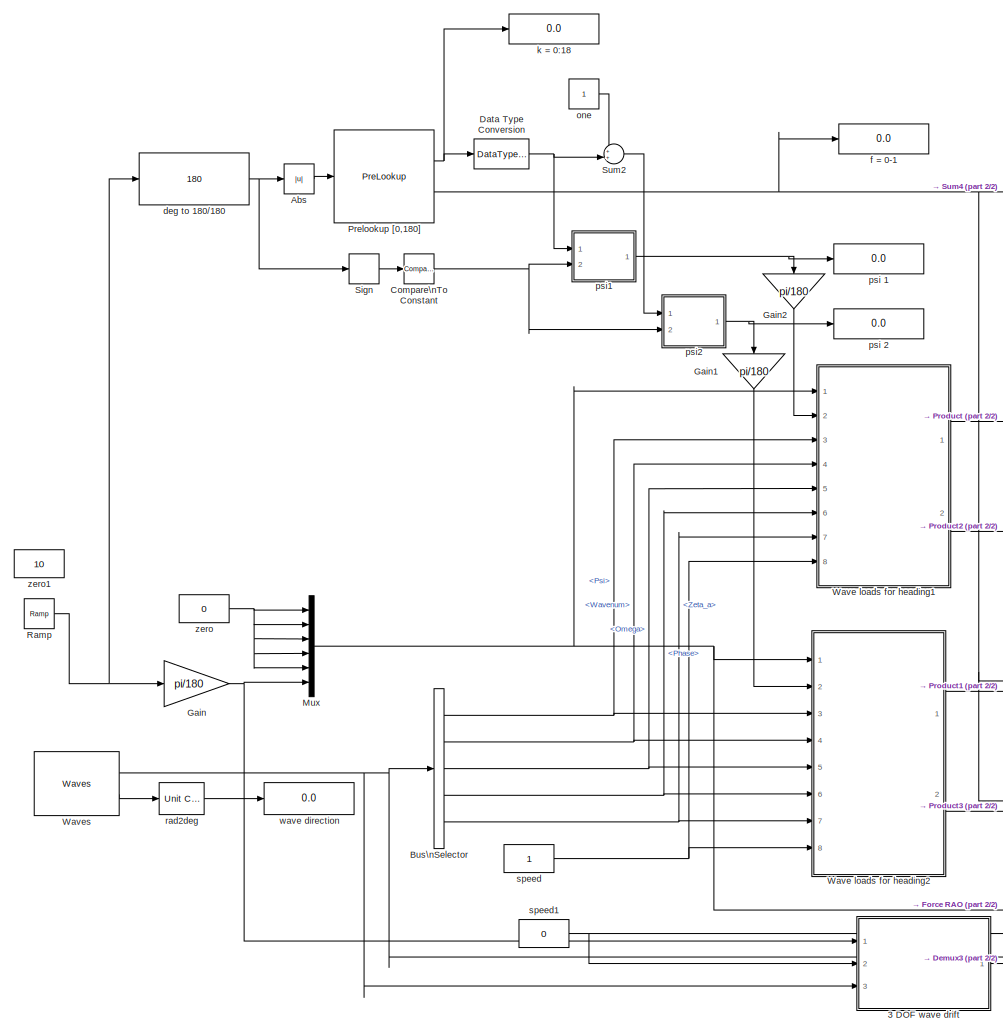
[diagram: root canvas - part 1/2, left side, full height]
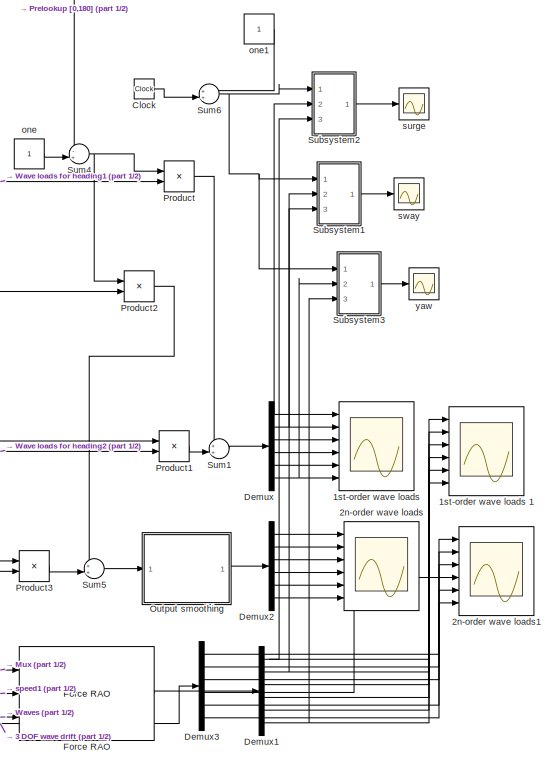
[diagram: root canvas - part 2/2, middle right region]
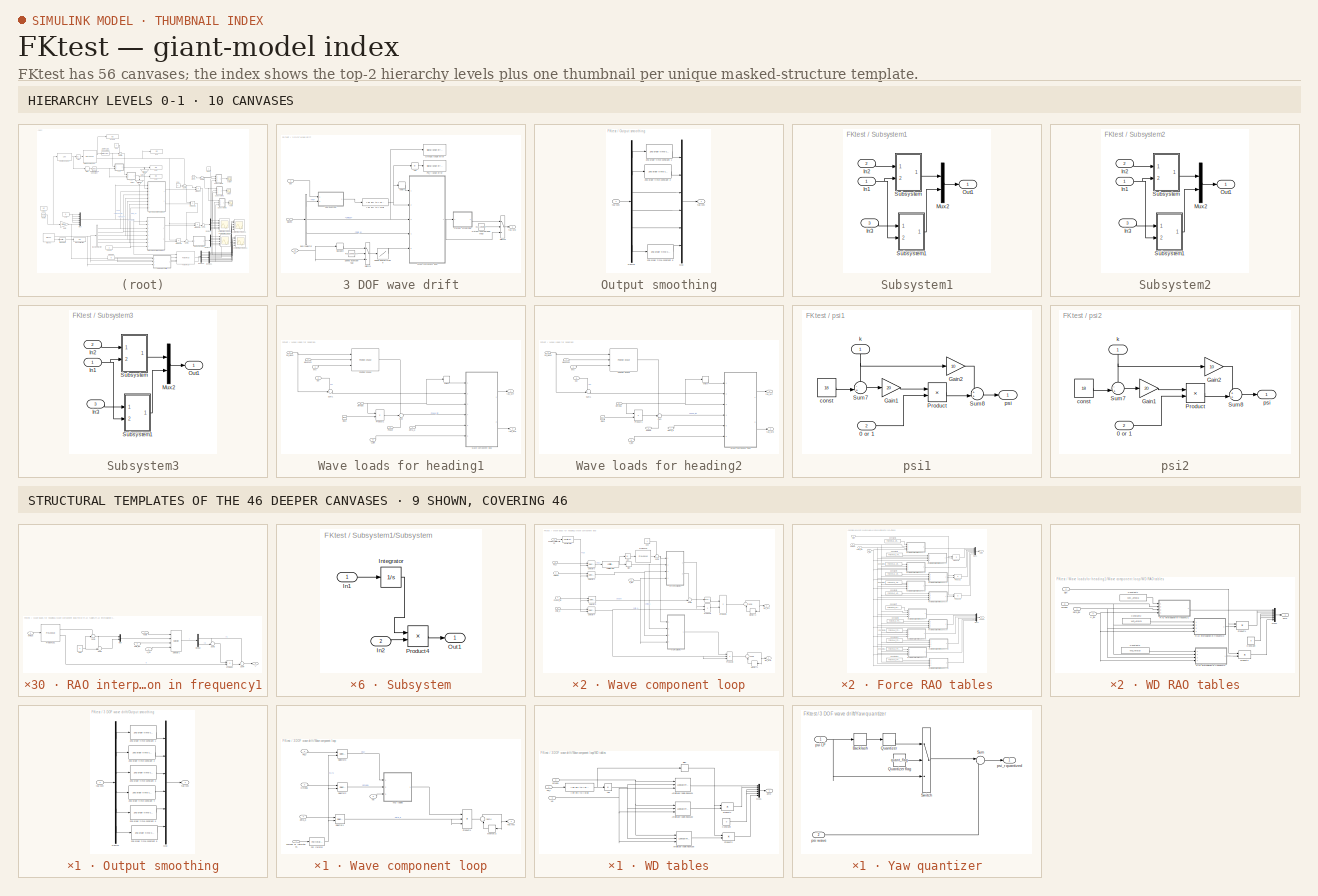
[diagram: thumbnail index - top-2 hierarchy levels (10 canvases) + 9 structural-template representatives of the remaining 46 canvases]
MODEL FKtest
KIND model
BLOCK [Scope] 1st-order wave loads 
  DataFormat = StructureWithTime
  Floating = off
  NumInputPorts = 6
  Ports = [6]
  SampleTime = 0
  TimeRange = 100
  YMax = 2e+006~6e+006~1.5e+007~7.5e+006~2e+008~7.5e+007
  YMin = -3e+006~-7e+006~-2e+007~-1e+007~-2e+008~-7.5e+007
BLOCK [Scope] 1st-order wave loads 1
  DataFormat = StructureWithTime
  Floating = off
  NumInputPorts = 6
  Ports = [6]
  SampleTime = 0
  SaveName = ScopeData5
  TimeRange = 80
  YMax = 4000000~10000000~20000000~10000000~400000000~100000000
  YMin = -4000000~-10000000~-20000000~-10000000~-400000000~-100000000
BLOCK [Scope] 2n-order wave loads
  DataFormat = StructureWithTime
  Floating = off
  NumInputPorts = 6
  Ports = [6]
  SampleTime = 0
  SaveName = ScopeData1
  TimeRange = 100
  YMax = 16250~160000~1~1~1~350000
  YMin = 13750~80000~-1~-1~-1~270000
BLOCK [Scope] 2n-order wave loads1
  DataFormat = StructureWithTime
  Floating = off
  NumInputPorts = 6
  Ports = [6]
  SampleTime = 0
  SaveName = ScopeData8
  TimeRange = 100
  YMax = 17500~170000~1~1~1~420000
  YMin = 11500~80000~-1~-1~-1~330000
BLOCK [SubSystem] 3 DOF wave drift
  AncestorBlock = hydro/Hydro Library/3 DOF wave drift
  FunctionWithSeparateData = off
  MaskCallbackString = ||||||||||||
  MaskDescription = Calculate the 6 degrees-of-freedom (DOF) 2nd order mean wave drift forces tau_WD for a vessel from its wave drift transfer functions (WDTFs) and a sea state defined by a set of harmonic waves. The block takes the \"Waves\" bus from the MSS Waves block as input, as well as the vessel low-frequency (LF) motion in terms of the yaw angle psi_LF and the mean surge velocity U.\nThe WDTFs are defined in ...<+604ch>
  MaskEnableString = on,on,on,on,on,on,on,on,on,on,on,on,on
  MaskHelp = <b>Part of the Marine Systems Simulator: MSS</b><br>\n<br>\nCalculate the 6 degrees-of-freedom (DOF) 2nd order mean wave drift forces tau_WD \nfor a vessel from its wave drift transfer functions (WDTFs) and a sea state \ndefined by a set of harmonic waves. The block takes the &quot;Waves&quot; bus from the MSS \nWaves block as input, as well as the vessel low-frequency (LF) motion in terms \nof th...<+5969ch>
  MaskHideContents = off
  MaskIconFrame = on
  MaskIconOpaque = on
  MaskIconRotate = none
  MaskIconUnits = autoscale
  MaskInitialization = % Add a second velocity if only one is given in order to avoid run-time errors in the table lookup blocks\nif length(WD_Vel) == 1\n\n	if WD_Vel == 0 % Add a second identical data set for V = 5 m/s\n		WD_Vel(2) = 5;\n	else % Add a second identical data set for V = 0 m/s\n		WD_Vel = [0 WD_Vel];\n	end\n\n	for dofno = 1:3\n		WD_Amp{dofno}(:,:,2) = WD_Amp{dofno}(:,:,1);\n	end\n\nend\n\nif WD_add_omega_...<+508ch>
  MaskPromptString = Vector of frequencies WD_Freq (rad/s)|Vector of directions WD_Dir (rad)|Vector of velocities WD_Vel (m/s)|3DOF Cell array with tables of Amplitudes WD_Amp|Add asymptotic WD values for omega = 0|Add asymptotic WD values for omega = inf|LF estimator for yaw angle table lookup (backlash and quantization)|LF yaw angle quantization interval [rad]|LF yaw angle backlash width [rad] (typically 1/4 of the ...<+213ch>
  MaskStyleString = edit,edit,edit,edit,checkbox,checkbox,checkbox,edit,edit,checkbox,edit,checkbox,edit
  MaskTabNameString = ,,,,,,,,,,,,
  MaskToolTipString = on,on,on,on,on,on,on,on,on,on,on,on,on
  MaskTunableValueString = on,on,on,on,on,on,on,on,on,on,on,on,on
  MaskType = Veres WD
  MaskValueString = vessel.driftfrc.w|vessel.headings|vessel.velocities|amp2|on|on|on|5*pi/180|1.2*pi/180|on|1|on|5
  MaskVarAliasString = ,,,,,,,,,,,,
  MaskVariables = WD_Freq=@1;WD_Dir=@2;WD_Vel=@3;WD_Amp=@4;WD_add_omega_0=@5;WD_add_omega_inf=@6;RAO_yaw_quantization_flag=@7;RAO_yaw_quant=@8;RAO_yaw_back=@9;RAO_speed_backlash_flag=@10;RAO_speed_back=@11;RAO_smoothing_flag=@12;RAO_smoothing_T=@13;
  MaskVisibilityString = on,on,on,on,on,on,on,on,on,on,on,on,on
  MinAlgLoopOccurrences = off
  Ports = [3, 1]
  RTWSystemCode = Auto
BLOCK [Abs] 3 DOF wave drift/Abs
  SaturateOnIntegerOverflow = off
BLOCK [Backlash] 3 DOF wave drift/Backlash
  BacklashWidth = RAO_speed_back
BLOCK [BusSelector] 3 DOF wave drift/Bus\nSelector
  OutputSignals = Psi,Omega,Zeta_a
  Ports = [1, 3]
BLOCK [Reference] 3 DOF wave drift/Omega range error  REF=marine_gnc/Utilities/Simulation tools/Signal range error  (lib defined in mdl_10d96c221ba8, mdl_45f1105420c6)
  FunctionWithSeparateData = off
  Ports = [1]
  RTWMemSecDataConstants = Inherit from model
  RTWMemSecDataInternal = Inherit from model
  RTWMemSecDataParameters = Inherit from model
  RTWMemSecFuncExecute = Inherit from model
  RTWMemSecFuncInitTerm = Inherit from model
  ShowPortLabels = FromPortIcon
  SourceBlock = marine_gnc/Utilities/Simulation tools/Signal range error
  SourceType = Signal range error
  SystemSampleTime = -1
  Values = WD_Freq
  message = Wave frequency outside range of Wavedrift table
BLOCK [SubSystem] 3 DOF wave drift/Output smoothing
  FunctionWithSeparateData = off
  MaskHideContents = off
  MinAlgLoopOccurrences = off
  Ports = [1, 1]
  RTWSystemCode = Auto
BLOCK [Reference] 3 DOF wave drift/Output smoothing/2nd order time constant 1  REF=marine_gnc/Utilities/Dynamics/2nd order time constant  (lib defined in mdl_10d96c221ba8, mdl_45f1105420c6)
  FunctionWithSeparateData = off
  Ports = [1, 1]
  RTWMemSecDataConstants = Inherit from model
  RTWMemSecDataInternal = Inherit from model
  RTWMemSecDataParameters = Inherit from model
  RTWMemSecFuncExecute = Inherit from model
  RTWMemSecFuncInitTerm = Inherit from model
  ShowPortLabels = FromPortIcon
  SourceBlock = marine_gnc/Utilities/Dynamics/2nd order time constant
  SourceType = 2nd order time constant
  SystemSampleTime = -1
  T = RAO_smoothing_T
BLOCK [Reference] 3 DOF wave drift/Output smoothing/2nd order time constant 2  REF=marine_gnc/Utilities/Dynamics/2nd order time constant  (lib defined in mdl_10d96c221ba8, mdl_45f1105420c6)
  FunctionWithSeparateData = off
  Ports = [1, 1]
  RTWMemSecDataConstants = Inherit from model
  RTWMemSecDataInternal = Inherit from model
  RTWMemSecDataParameters = Inherit from model
  RTWMemSecFuncExecute = Inherit from model
  RTWMemSecFuncInitTerm = Inherit from model
  ShowPortLabels = FromPortIcon
  SourceBlock = marine_gnc/Utilities/Dynamics/2nd order time constant
  SourceType = 2nd order time constant
  SystemSampleTime = -1
  T = RAO_smoothing_T
BLOCK [Reference] 3 DOF wave drift/Output smoothing/2nd order time constant 3  REF=marine_gnc/Utilities/Dynamics/2nd order time constant  (lib defined in mdl_10d96c221ba8, mdl_45f1105420c6)
  FunctionWithSeparateData = off
  Ports = [1, 1]
  RTWMemSecDataConstants = Inherit from model
  RTWMemSecDataInternal = Inherit from model
  RTWMemSecDataParameters = Inherit from model
  RTWMemSecFuncExecute = Inherit from model
  RTWMemSecFuncInitTerm = Inherit from model
  ShowPortLabels = FromPortIcon
  SourceBlock = marine_gnc/Utilities/Dynamics/2nd order time constant
  SourceType = 2nd order time constant
  SystemSampleTime = -1
  T = RAO_smoothing_T
BLOCK [Reference] 3 DOF wave drift/Output smoothing/2nd order time constant 4  REF=marine_gnc/Utilities/Dynamics/2nd order time constant  (lib defined in mdl_10d96c221ba8, mdl_45f1105420c6)
  FunctionWithSeparateData = off
  Ports = [1, 1]
  RTWMemSecDataConstants = Inherit from model
  RTWMemSecDataInternal = Inherit from model
  RTWMemSecDataParameters = Inherit from model
  RTWMemSecFuncExecute = Inherit from model
  RTWMemSecFuncInitTerm = Inherit from model
  ShowPortLabels = FromPortIcon
  SourceBlock = marine_gnc/Utilities/Dynamics/2nd order time constant
  SourceType = 2nd order time constant
  SystemSampleTime = -1
  T = RAO_smoothing_T
BLOCK [Reference] 3 DOF wave drift/Output smoothing/2nd order time constant 5  REF=marine_gnc/Utilities/Dynamics/2nd order time constant  (lib defined in mdl_10d96c221ba8, mdl_45f1105420c6)
  FunctionWithSeparateData = off
  Ports = [1, 1]
  RTWMemSecDataConstants = Inherit from model
  RTWMemSecDataInternal = Inherit from model
  RTWMemSecDataParameters = Inherit from model
  RTWMemSecFuncExecute = Inherit from model
  RTWMemSecFuncInitTerm = Inherit from model
  ShowPortLabels = FromPortIcon
  SourceBlock = marine_gnc/Utilities/Dynamics/2nd order time constant
  SourceType = 2nd order time constant
  SystemSampleTime = -1
  T = RAO_smoothing_T
BLOCK [Reference] 3 DOF wave drift/Output smoothing/2nd order time constant 6  REF=marine_gnc/Utilities/Dynamics/2nd order time constant  (lib defined in mdl_10d96c221ba8, mdl_45f1105420c6)
  FunctionWithSeparateData = off
  Ports = [1, 1]
  RTWMemSecDataConstants = Inherit from model
  RTWMemSecDataInternal = Inherit from model
  RTWMemSecDataParameters = Inherit from model
  RTWMemSecFuncExecute = Inherit from model
  RTWMemSecFuncInitTerm = Inherit from model
  ShowPortLabels = FromPortIcon
  SourceBlock = marine_gnc/Utilities/Dynamics/2nd order time constant
  SourceType = 2nd order time constant
  SystemSampleTime = -1
  T = RAO_smoothing_T
BLOCK [Demux] 3 DOF wave drift/Output smoothing/Demux
  DisplayOption = bar
  Outputs = 6
  Ports = [1, 6]
BLOCK [Mux] 3 DOF wave drift/Output smoothing/Mux
  DisplayOption = bar
  Inputs = 6
  Ports = [6, 1]
BLOCK [Inport] 3 DOF wave drift/Output smoothing/tau WD
  IconDisplay = Port number
BLOCK [Outport] 3 DOF wave drift/Output smoothing/tau WD 
  BusOutputAsStruct = off
  IconDisplay = Port number
BLOCK [Constant] 3 DOF wave drift/Output\nsmoothing\nflag
  Value = RAO_smoothing_flag
BLOCK [Reference] 3 DOF wave drift/Psi_r range error  REF=marine_gnc/Utilities/Simulation tools/Signal range error  (lib defined in mdl_10d96c221ba8, mdl_45f1105420c6)
  FunctionWithSeparateData = off
  Ports = [1]
  RTWMemSecDataConstants = Inherit from model
  RTWMemSecDataInternal = Inherit from model
  RTWMemSecDataParameters = Inherit from model
  RTWMemSecFuncExecute = Inherit from model
  RTWMemSecFuncInitTerm = Inherit from model
  ShowPortLabels = FromPortIcon
  SourceBlock = marine_gnc/Utilities/Simulation tools/Signal range error
  SourceType = Signal range error
  SystemSampleTime = -1
  Values = WD_Dir
  message = Relative wave direction outside range of Wavedrift table
BLOCK [Lookup] 3 DOF wave drift/Speed lookup\ntable
  InputValues = WD_Vel
  LookUpMeth = Use Input Nearest
  OutputValues = WD_Vel
  SaturateOnIntegerOverflow = off
BLOCK [Constant] 3 DOF wave drift/Speed quantizer flag
  Value = RAO_speed_backlash_flag
BLOCK [Switch] 3 DOF wave drift/Switch1
  InputSameDT = off
  SaturateOnIntegerOverflow = off
  Threshold = 0.5
BLOCK [Switch] 3 DOF wave drift/Switch2
  InputSameDT = off
  SaturateOnIntegerOverflow = off
  Threshold = 0.5
BLOCK [Inport] 3 DOF wave drift/U
  IconDisplay = Port number
  Port = 2
BLOCK [SubSystem] 3 DOF wave drift/Wave component loop
  FunctionWithSeparateData = off
  MaskHideContents = off
  MinAlgLoopOccurrences = off
  Ports = [5, 1]
  RTWSystemCode = Auto
  TreatAsAtomicUnit = on
BLOCK [ForIterator] 3 DOF wave drift/Wave component loop/For Iterator
  IterationSource = external
  IterationVariableDataType = double
  Ports = [1, 1]
  ResetStates = reset
BLOCK [Memory] 3 DOF wave drift/Wave component loop/Memory2
  InheritSampleTime = on
  X0 = [0 0 0 0 0 0]'
BLOCK [Inport] 3 DOF wave drift/Wave component loop/Omega
  IconDisplay = Port number
  Port = 3
BLOCK [Product] 3 DOF wave drift/Wave component loop/Product4
  CollapseMode = All dimensions
  InputSameDT = off
  Inputs = 3
  Ports = [3, 1]
  RndMeth = Floor
BLOCK [Inport] 3 DOF wave drift/Wave component loop/Psi_r
  IconDisplay = Port number
  Port = 2
BLOCK [Selector] 3 DOF wave drift/Wave component loop/Selector2
  IndexOptions = Index vector (port)
  Indices = [1 3]
  OutputSizes = 1
  Ports = [2, 1]
BLOCK [Selector] 3 DOF wave drift/Wave component loop/Selector3
  IndexOptions = Index vector (port)
  Indices = [1 3]
  OutputSizes = 1
  Ports = [2, 1]
BLOCK [Selector] 3 DOF wave drift/Wave component loop/Selector4
  IndexOptions = Index vector (port)
  Indices = [1 3]
  OutputSizes = 1
  Ports = [2, 1]
BLOCK [Sum] 3 DOF wave drift/Wave component loop/Sum4
  CollapseMode = All dimensions
  IconShape = round
  InputSameDT = off
  Inputs = ++|
  OutDataTypeMode = Inherit via internal rule
  Ports = [2, 1]
BLOCK [Outport] 3 DOF wave drift/Wave component loop/Tau WD
  BusOutputAsStruct = off
  IconDisplay = Port number
BLOCK [SubSystem] 3 DOF wave drift/Wave component loop/WD tables
  FunctionWithSeparateData = off
  MaskCallbackString = |||
  MaskDescription = Perform 3D table lookup in 6DOF WD amplitudes, using the relative wave heading psi_r, wave frequency omega and vessel velocity vel as inputs.
  MaskEnableString = on,on,on,on
  MaskHideContents = off
  MaskIconFrame = on
  MaskIconOpaque = on
  MaskIconRotate = none
  MaskIconUnits = autoscale
  MaskPromptString = Vector of frequencies (rad/s)|Vector of directions (rad)|Vector of velocities (m/s)|6DOF Cell array with tables of Amplitudes
  MaskStyleString = edit,edit,edit,edit
  MaskTabNameString = ,,,
  MaskToolTipString = on,on,on,on
  MaskTunableValueString = on,on,on,on
  MaskType = WD table lookup
  MaskValueString = WD_Freq|WD_Dir|WD_Vel|WD_Amp
  MaskVarAliasString = ,,,
  MaskVariables = RAO_Freq=@1;RAO_Dir=@2;RAO_Vel=@3;RAO_Amp=@4;
  MaskVisibilityString = on,on,on,on
  MinAlgLoopOccurrences = off
  Ports = [3, 1]
  RTWSystemCode = Auto
BLOCK [Abs] 3 DOF wave drift/Wave component loop/WD tables/Abs
BLOCK [Reference] 3 DOF wave drift/Wave component loop/WD tables/Amplitude table\nlookup1  REF=simulink/Lookup\nTables/Lookup\nTable (n-D)
  Ports = [3, 1]
  SourceBlock = simulink/Lookup\nTables/Lookup\nTable (n-D)
  SourceType = LookupNDInterp
  bp1 = RAO_Freq
  bp2 = RAO_Dir
  bp3 = RAO_Vel
  bp4 = [1:3]
  bpcell = { [1:3], [1:3] }
  cacheBpFlag = off
  explicitNumDims = 2
  extrapMethod = Linear
  interpMethod = None - Flat
  numDimsPopupSelect = 3
  rangeErrorMode = Warning
  searchMode = Binary Search
  tableData = RAO_Amp{1}
  vectorInputFlag = off
BLOCK [Reference] 3 DOF wave drift/Wave component loop/WD tables/Amplitude table\nlookup2  REF=simulink/Lookup\nTables/Lookup\nTable (n-D)
  Ports = [3, 1]
  SourceBlock = simulink/Lookup\nTables/Lookup\nTable (n-D)
  SourceType = LookupNDInterp
  bp1 = RAO_Freq
  bp2 = RAO_Dir
  bp3 = RAO_Vel
  bp4 = [1:3]
  bpcell = { [1:3], [1:3] }
  cacheBpFlag = off
  explicitNumDims = 2
  extrapMethod = Linear
  interpMethod = None - Flat
  numDimsPopupSelect = 3
  rangeErrorMode = None
  searchMode = Binary Search
  tableData = RAO_Amp{2}
  vectorInputFlag = off
BLOCK [Reference] 3 DOF wave drift/Wave component loop/WD tables/Amplitude table\nlookup6  REF=simulink/Lookup\nTables/Lookup\nTable (n-D)
  Ports = [3, 1]
  SourceBlock = simulink/Lookup\nTables/Lookup\nTable (n-D)
  SourceType = LookupNDInterp
  bp1 = RAO_Freq
  bp2 = RAO_Dir
  bp3 = RAO_Vel
  bp4 = [1:3]
  bpcell = { [1:3], [1:3] }
  cacheBpFlag = off
  explicitNumDims = 2
  extrapMethod = Linear
  interpMethod = None - Flat
  numDimsPopupSelect = 3
  rangeErrorMode = None
  searchMode = Binary Search
  tableData = RAO_Amp{3}
  vectorInputFlag = off
BLOCK [Constant] 3 DOF wave drift/Wave component loop/WD tables/Constant
  Value = 0
BLOCK [Mux] 3 DOF wave drift/Wave component loop/WD tables/Mux1
  DisplayOption = bar
  Inputs = 6
  Ports = [6, 1]
BLOCK [Product] 3 DOF wave drift/Wave component loop/WD tables/Product1
  CollapseMode = All dimensions
  InputSameDT = off
  Inputs = **
  Ports = [2, 1]
  RndMeth = Floor
BLOCK [Product] 3 DOF wave drift/Wave component loop/WD tables/Product3
  CollapseMode = All dimensions
  InputSameDT = off
  Inputs = **
  Ports = [2, 1]
  RndMeth = Floor
BLOCK [Signum] 3 DOF wave drift/Wave component loop/WD tables/Sign
BLOCK [Reference] 3 DOF wave drift/Wave component loop/WD tables/[-inf inf] to [-pi pi]  REF=marine_gnc/Utilities/Math Operations/[-inf inf] to [-pi pi]  (lib defined in mdl_10d96c221ba8, mdl_45f1105420c6)
  FunctionWithSeparateData = off
  Ports = [1, 1]
  RTWMemSecDataConstants = Inherit from model
  RTWMemSecDataInternal = Inherit from model
  RTWMemSecDataParameters = Inherit from model
  RTWMemSecFuncExecute = Inherit from model
  RTWMemSecFuncInitTerm = Inherit from model
  ShowPortLabels = FromPortIcon
  SourceBlock = marine_gnc/Utilities/Math Operations/[-inf inf] to [-pi pi]
  SourceType = [-inf inf] to [-pi pi]
  SystemSampleTime = -1
BLOCK [Outport] 3 DOF wave drift/Wave component loop/WD tables/amp
  BusOutputAsStruct = off
  IconDisplay = Port number
BLOCK [Inport] 3 DOF wave drift/Wave component loop/WD tables/omega
  IconDisplay = Port number
  Port = 2
BLOCK [Inport] 3 DOF wave drift/Wave component loop/WD tables/psi_r
  IconDisplay = Port number
BLOCK [Inport] 3 DOF wave drift/Wave component loop/WD tables/vel
  IconDisplay = Port number
  Port = 3
BLOCK [Inport] 3 DOF wave drift/Wave component loop/Zeta_a
  IconDisplay = Port number
  Port = 4
BLOCK [Inport] 3 DOF wave drift/Wave component loop/number of \niterations
  IconDisplay = Port number
BLOCK [Inport] 3 DOF wave drift/Wave component loop/vel
  IconDisplay = Port number
  Port = 5
BLOCK [Width] 3 DOF wave drift/Width
  DataType = int32
BLOCK [SubSystem] 3 DOF wave drift/Yaw quantizer
  AncestorBlock = marine_gnc/Models/Environmental\nLoads/Utilities/Yaw quantizer
  FunctionWithSeparateData = off
  MaskCallbackString = ||
  MaskDescription = Apply quantization and backlash to the yaw angle if desired, and calculate the wave direction relative to the vessel. If the quantizer flag is set to zero, the two outputs are equal.
  MaskEnableString = on,on,on
  MaskHideContents = off
  MaskIconFrame = on
  MaskIconOpaque = on
  MaskIconRotate = none
  MaskIconUnits = autoscale
  MaskPromptString = Quantizer flag {0,1}|Quantizer interval [rad]|Backlash width [rad]
  MaskStyleString = edit,edit,edit
  MaskTabNameString = ,,
  MaskToolTipString = on,on,on
  MaskTunableValueString = on,on,on
  MaskType = Yaw quantizer
  MaskValueString = RAO_yaw_quantization_flag|RAO_yaw_quant|RAO_yaw_back
  MaskVarAliasString = ,,
  MaskVariables = quant_flag=@1;quant=@2;back=@3;
  MaskVisibilityString = on,on,on
  MinAlgLoopOccurrences = off
  Ports = [2, 1]
  RTWSystemCode = Auto
BLOCK [Backlash] 3 DOF wave drift/Yaw quantizer/Backlash
  BacklashWidth = back
BLOCK [Quantizer] 3 DOF wave drift/Yaw quantizer/Quantizer
  QuantizationInterval = quant
BLOCK [Constant] 3 DOF wave drift/Yaw quantizer/Quantizer flag
  Value = quant_flag
BLOCK [Sum] 3 DOF wave drift/Yaw quantizer/Sum
  CollapseMode = All dimensions
  IconShape = round
  InputSameDT = off
  Inputs = |-+
  OutDataTypeMode = Inherit via internal rule
  Ports = [2, 1]
  SaturateOnIntegerOverflow = off
BLOCK [Switch] 3 DOF wave drift/Yaw quantizer/Switch
  InputSameDT = off
  SaturateOnIntegerOverflow = off
  Threshold = 0.5
BLOCK [Inport] 3 DOF wave drift/Yaw quantizer/psi LF
  IconDisplay = Port number
BLOCK [Inport] 3 DOF wave drift/Yaw quantizer/psi wave
  IconDisplay = Port number
  Port = 2
BLOCK [Outport] 3 DOF wave drift/Yaw quantizer/psi_r quantized
  BusOutputAsStruct = off
  IconDisplay = Port number
BLOCK [Reference] 3 DOF wave drift/[-inf inf] to [-pi pi]  REF=marine_gnc/Utilities/Math Operations/[-inf inf] to [-pi pi]  (lib defined in mdl_10d96c221ba8, mdl_45f1105420c6)
  FunctionWithSeparateData = off
  Ports = [1, 1]
  RTWMemSecDataConstants = Inherit from model
  RTWMemSecDataInternal = Inherit from model
  RTWMemSecDataParameters = Inherit from model
  RTWMemSecFuncExecute = Inherit from model
  RTWMemSecFuncInitTerm = Inherit from model
  ShowPortLabels = FromPortIcon
  SourceBlock = marine_gnc/Utilities/Math Operations/[-inf inf] to [-pi pi]
  SourceType = [-inf inf] to [-pi pi]
  SystemSampleTime = -1
BLOCK [Inport] 3 DOF wave drift/psi
  IconDisplay = Port number
BLOCK [Outport] 3 DOF wave drift/tau WD
  BusOutputAsStruct = off
  IconDisplay = Port number
BLOCK [Inport] 3 DOF wave drift/waves
  IconDisplay = Port number
  Port = 3
BLOCK [Abs] Abs
BLOCK [BusSelector] Bus\nSelector
  OutputSignals = Psi,Wavenum,Omega,Phase,Zeta_a
  Ports = [1, 5]
BLOCK [Clock] Clock
  Decimation = 10
BLOCK [Reference] Compare\nTo Constant  REF=simulink/Logic and Bit\nOperations/Compare\nTo Constant
  FunctionWithSeparateData = off
  LogicOutDataTypeMode = uint8
  Ports = [1, 1]
  RTWMemSecDataConstants = Inherit from model
  RTWMemSecDataInternal = Inherit from model
  RTWMemSecDataParameters = Inherit from model
  RTWMemSecFuncExecute = Inherit from model
  RTWMemSecFuncInitTerm = Inherit from model
  ShowPortLabels = FromPortIcon
  SourceBlock = simulink/Logic and Bit\nOperations/Compare\nTo Constant
  SourceType = Compare To Constant
  SystemSampleTime = -1
  ZeroCross = off
  const = 0
  relop = <
BLOCK [DataTypeConversion] Data Type Conversion
  OutDataTypeMode = double
  RndMeth = Floor
  SaturateOnIntegerOverflow = off
BLOCK [Demux] Demux
  Outputs = 6
  Ports = [1, 6]
BLOCK [Demux] Demux1
  Outputs = 6
  Ports = [1, 6]
BLOCK [Demux] Demux2
  Outputs = 6
  Ports = [1, 6]
BLOCK [Demux] Demux3
  Outputs = 6
  Ports = [1, 6]
BLOCK [Reference] Force RAO  REF=marine_gnc/Models/Environmental\nLoads/Force RAO  (lib defined in mdl_10d96c221ba8, mdl_45f1105420c6)
  FunctionWithSeparateData = off
  Ports = [3, 1]
  RAO_Amp = amp
  RAO_Dir = vessel.headings
  RAO_Freq = vessel.forceRAO.w
  RAO_Phase = phase
  RAO_Vel = vessel.velocities
  RAO_add_omega_0 = on
  RAO_add_omega_inf = on
  RAO_smoothing_flag = on
  RAO_speed_back = 1
  RAO_speed_backlash_flag = off
  RAO_yaw_back = 2.5*pi/180
  RAO_yaw_quant = 10*pi/180
  RAO_yaw_quantization_flag = on
  RTWMemSecDataConstants = Inherit from model
  RTWMemSecDataInternal = Inherit from model
  RTWMemSecDataParameters = Inherit from model
  RTWMemSecFuncExecute = Inherit from model
  RTWMemSecFuncInitTerm = Inherit from model
  ShowPortLabels = FromPortIcon
  SourceBlock = marine_gnc/Models/Environmental\nLoads/Force RAO
  SourceType = Force RAO
  SystemSampleTime = -1
BLOCK [Gain] Gain
  Gain = pi/180
  OutDataTypeMode = Inherit via internal rule
  ParameterDataTypeMode = Inherit via internal rule
  SaturateOnIntegerOverflow = off
BLOCK [Gain] Gain1
  Gain = pi/180
  OutDataTypeMode = Inherit via internal rule
  ParameterDataTypeMode = Inherit via internal rule
  SaturateOnIntegerOverflow = off
BLOCK [Gain] Gain2
  Gain = pi/180
  OutDataTypeMode = Inherit via internal rule
  ParameterDataTypeMode = Inherit via internal rule
  SaturateOnIntegerOverflow = off
BLOCK [Mux] Mux
  DisplayOption = bar
  Inputs = 6
  Ports = [6, 1]
BLOCK [SubSystem] Output smoothing
  FunctionWithSeparateData = off
  MaskHideContents = off
  MinAlgLoopOccurrences = off
  Ports = [1, 1]
  RTWSystemCode = Auto
BLOCK [Reference] Output smoothing/2nd order time constant 1  REF=marine_gnc/Utilities/Dynamics/2nd order time constant  (lib defined in mdl_10d96c221ba8, mdl_45f1105420c6)
  FunctionWithSeparateData = off
  Ports = [1, 1]
  RTWMemSecDataConstants = Inherit from model
  RTWMemSecDataInternal = Inherit from model
  RTWMemSecDataParameters = Inherit from model
  RTWMemSecFuncExecute = Inherit from model
  RTWMemSecFuncInitTerm = Inherit from model
  ShowPortLabels = FromPortIcon
  SourceBlock = marine_gnc/Utilities/Dynamics/2nd order time constant
  SourceType = 2nd order time constant
  SystemSampleTime = -1
  T = 5
BLOCK [Reference] Output smoothing/2nd order time constant 2  REF=marine_gnc/Utilities/Dynamics/2nd order time constant  (lib defined in mdl_10d96c221ba8, mdl_45f1105420c6)
  FunctionWithSeparateData = off
  Ports = [1, 1]
  RTWMemSecDataConstants = Inherit from model
  RTWMemSecDataInternal = Inherit from model
  RTWMemSecDataParameters = Inherit from model
  RTWMemSecFuncExecute = Inherit from model
  RTWMemSecFuncInitTerm = Inherit from model
  ShowPortLabels = FromPortIcon
  SourceBlock = marine_gnc/Utilities/Dynamics/2nd order time constant
  SourceType = 2nd order time constant
  SystemSampleTime = -1
  T = 5
BLOCK [Reference] Output smoothing/2nd order time constant 6  REF=marine_gnc/Utilities/Dynamics/2nd order time constant  (lib defined in mdl_10d96c221ba8, mdl_45f1105420c6)
  FunctionWithSeparateData = off
  Ports = [1, 1]
  RTWMemSecDataConstants = Inherit from model
  RTWMemSecDataInternal = Inherit from model
  RTWMemSecDataParameters = Inherit from model
  RTWMemSecFuncExecute = Inherit from model
  RTWMemSecFuncInitTerm = Inherit from model
  ShowPortLabels = FromPortIcon
  SourceBlock = marine_gnc/Utilities/Dynamics/2nd order time constant
  SourceType = 2nd order time constant
  SystemSampleTime = -1
  T = 5
BLOCK [Demux] Output smoothing/Demux
  DisplayOption = bar
  Outputs = 6
  Ports = [1, 6]
BLOCK [Mux] Output smoothing/Mux
  DisplayOption = bar
  Inputs = 6
  Ports = [6, 1]
BLOCK [Inport] Output smoothing/tau WD
  IconDisplay = Port number
BLOCK [Outport] Output smoothing/tau WD 
  BusOutputAsStruct = off
  IconDisplay = Port number
BLOCK [PreLookup] Prelookup [0,180]
  BeginIndexSearchUsingPreviousIndexResult = on
  BreakpointsData = [0:10:180]
  IndexSearchMethod = Evenly spaced points
  Ports = [1, 2]
BLOCK [Product] Product
  CollapseMode = All dimensions
  InputSameDT = off
  OutDataTypeMode = Inherit via internal rule
  Ports = [2, 1]
  SaturateOnIntegerOverflow = off
BLOCK [Product] Product1
  CollapseMode = All dimensions
  InputSameDT = off
  OutDataTypeMode = Inherit via internal rule
  Ports = [2, 1]
  SaturateOnIntegerOverflow = off
BLOCK [Product] Product2
  CollapseMode = All dimensions
  InputSameDT = off
  OutDataTypeMode = Inherit via internal rule
  Ports = [2, 1]
  SaturateOnIntegerOverflow = off
BLOCK [Product] Product3
  CollapseMode = All dimensions
  InputSameDT = off
  OutDataTypeMode = Inherit via internal rule
  Ports = [2, 1]
  SaturateOnIntegerOverflow = off
BLOCK [Reference] Ramp  REF=simulink/Sources/Ramp
  FunctionWithSeparateData = off
  Ports = [0, 1]
  RTWMemSecDataConstants = Inherit from model
  RTWMemSecDataInternal = Inherit from model
  RTWMemSecDataParameters = Inherit from model
  RTWMemSecFuncExecute = Inherit from model
  RTWMemSecFuncInitTerm = Inherit from model
  ShowPortLabels = FromPortIcon
  SourceBlock = simulink/Sources/Ramp
  SourceType = Ramp
  SystemSampleTime = -1
  VectorParams1D = on
  X0 = 0
  slope = 1
  start = 0
BLOCK [Signum] Sign
BLOCK [SubSystem] Subsystem1
  FunctionWithSeparateData = off
  MaskHideContents = off
  MinAlgLoopOccurrences = off
  Ports = [3, 1]
  RTWSystemCode = Auto
BLOCK [Inport] Subsystem1/In1
  IconDisplay = Port number
BLOCK [Inport] Subsystem1/In2
  IconDisplay = Port number
  Port = 2
BLOCK [Inport] Subsystem1/In3
  IconDisplay = Port number
  Port = 3
BLOCK [Mux] Subsystem1/Mux2
  DisplayOption = bar
  Inputs = 2
  Ports = [2, 1]
BLOCK [Outport] Subsystem1/Out1
  BusOutputAsStruct = off
  IconDisplay = Port number
BLOCK [SubSystem] Subsystem1/Subsystem
  FunctionWithSeparateData = off
  MaskHideContents = off
  MinAlgLoopOccurrences = off
  Ports = [2, 1]
  RTWSystemCode = Auto
BLOCK [Inport] Subsystem1/Subsystem/In1
  IconDisplay = Port number
BLOCK [Inport] Subsystem1/Subsystem/In2
  IconDisplay = Port number
  Port = 2
BLOCK [Integrator] Subsystem1/Subsystem/Integrator
  IgnoreLimit = off
  Ports = [1, 1]
BLOCK [Outport] Subsystem1/Subsystem/Out1
  BusOutputAsStruct = off
  IconDisplay = Port number
BLOCK [Product] Subsystem1/Subsystem/Product4
  CollapseMode = All dimensions
  InputSameDT = off
  Inputs = */
  OutDataTypeMode = Inherit via internal rule
  Ports = [2, 1]
  SaturateOnIntegerOverflow = off
BLOCK [SubSystem] Subsystem1/Subsystem1
  FunctionWithSeparateData = off
  MaskHideContents = off
  MinAlgLoopOccurrences = off
  Ports = [2, 1]
  RTWSystemCode = Auto
BLOCK [Inport] Subsystem1/Subsystem1/In1
  IconDisplay = Port number
BLOCK [Inport] Subsystem1/Subsystem1/In2
  IconDisplay = Port number
  Port = 2
BLOCK [Integrator] Subsystem1/Subsystem1/Integrator
  IgnoreLimit = off
  Ports = [1, 1]
BLOCK [Outport] Subsystem1/Subsystem1/Out1
  BusOutputAsStruct = off
  IconDisplay = Port number
BLOCK [Product] Subsystem1/Subsystem1/Product4
  CollapseMode = All dimensions
  InputSameDT = off
  Inputs = */
  OutDataTypeMode = Inherit via internal rule
  Ports = [2, 1]
  SaturateOnIntegerOverflow = off
BLOCK [SubSystem] Subsystem2
  FunctionWithSeparateData = off
  MaskHideContents = off
  MinAlgLoopOccurrences = off
  Ports = [3, 1]
  RTWSystemCode = Auto
BLOCK [Inport] Subsystem2/In1
  IconDisplay = Port number
BLOCK [Inport] Subsystem2/In2
  IconDisplay = Port number
  Port = 2
BLOCK [Inport] Subsystem2/In3
  IconDisplay = Port number
  Port = 3
BLOCK [Mux] Subsystem2/Mux2
  DisplayOption = bar
  Inputs = 2
  Ports = [2, 1]
BLOCK [Outport] Subsystem2/Out1
  BusOutputAsStruct = off
  IconDisplay = Port number
BLOCK [SubSystem] Subsystem2/Subsystem
  FunctionWithSeparateData = off
  MaskHideContents = off
  MinAlgLoopOccurrences = off
  Ports = [2, 1]
  RTWSystemCode = Auto
BLOCK [Inport] Subsystem2/Subsystem/In1
  IconDisplay = Port number
BLOCK [Inport] Subsystem2/Subsystem/In2
  IconDisplay = Port number
  Port = 2
BLOCK [Integrator] Subsystem2/Subsystem/Integrator
  IgnoreLimit = off
  Ports = [1, 1]
BLOCK [Outport] Subsystem2/Subsystem/Out1
  BusOutputAsStruct = off
  IconDisplay = Port number
BLOCK [Product] Subsystem2/Subsystem/Product4
  CollapseMode = All dimensions
  InputSameDT = off
  Inputs = */
  OutDataTypeMode = Inherit via internal rule
  Ports = [2, 1]
  SaturateOnIntegerOverflow = off
BLOCK [SubSystem] Subsystem2/Subsystem1
  FunctionWithSeparateData = off
  MaskHideContents = off
  MinAlgLoopOccurrences = off
  Ports = [2, 1]
  RTWSystemCode = Auto
BLOCK [Inport] Subsystem2/Subsystem1/In1
  IconDisplay = Port number
BLOCK [Inport] Subsystem2/Subsystem1/In2
  IconDisplay = Port number
  Port = 2
BLOCK [Integrator] Subsystem2/Subsystem1/Integrator
  IgnoreLimit = off
  Ports = [1, 1]
BLOCK [Outport] Subsystem2/Subsystem1/Out1
  BusOutputAsStruct = off
  IconDisplay = Port number
BLOCK [Product] Subsystem2/Subsystem1/Product4
  CollapseMode = All dimensions
  InputSameDT = off
  Inputs = */
  OutDataTypeMode = Inherit via internal rule
  Ports = [2, 1]
  SaturateOnIntegerOverflow = off
BLOCK [SubSystem] Subsystem3
  FunctionWithSeparateData = off
  MaskHideContents = off
  MinAlgLoopOccurrences = off
  Ports = [3, 1]
  RTWSystemCode = Auto
BLOCK [Inport] Subsystem3/In1
  IconDisplay = Port number
BLOCK [Inport] Subsystem3/In2
  IconDisplay = Port number
  Port = 2
BLOCK [Inport] Subsystem3/In3
  IconDisplay = Port number
  Port = 3
BLOCK [Mux] Subsystem3/Mux2
  DisplayOption = bar
  Inputs = 2
  Ports = [2, 1]
BLOCK [Outport] Subsystem3/Out1
  BusOutputAsStruct = off
  IconDisplay = Port number
BLOCK [SubSystem] Subsystem3/Subsystem
  FunctionWithSeparateData = off
  MaskHideContents = off
  MinAlgLoopOccurrences = off
  Ports = [2, 1]
  RTWSystemCode = Auto
BLOCK [Inport] Subsystem3/Subsystem/In1
  IconDisplay = Port number
BLOCK [Inport] Subsystem3/Subsystem/In2
  IconDisplay = Port number
  Port = 2
BLOCK [Integrator] Subsystem3/Subsystem/Integrator
  IgnoreLimit = off
  Ports = [1, 1]
BLOCK [Outport] Subsystem3/Subsystem/Out1
  BusOutputAsStruct = off
  IconDisplay = Port number
BLOCK [Product] Subsystem3/Subsystem/Product4
  CollapseMode = All dimensions
  InputSameDT = off
  Inputs = */
  OutDataTypeMode = Inherit via internal rule
  Ports = [2, 1]
  SaturateOnIntegerOverflow = off
BLOCK [SubSystem] Subsystem3/Subsystem1
  FunctionWithSeparateData = off
  MaskHideContents = off
  MinAlgLoopOccurrences = off
  Ports = [2, 1]
  RTWSystemCode = Auto
BLOCK [Inport] Subsystem3/Subsystem1/In1
  IconDisplay = Port number
BLOCK [Inport] Subsystem3/Subsystem1/In2
  IconDisplay = Port number
  Port = 2
BLOCK [Integrator] Subsystem3/Subsystem1/Integrator
  IgnoreLimit = off
  Ports = [1, 1]
BLOCK [Outport] Subsystem3/Subsystem1/Out1
  BusOutputAsStruct = off
  IconDisplay = Port number
BLOCK [Product] Subsystem3/Subsystem1/Product4
  CollapseMode = All dimensions
  InputSameDT = off
  Inputs = */
  OutDataTypeMode = Inherit via internal rule
  Ports = [2, 1]
  SaturateOnIntegerOverflow = off
BLOCK [Sum] Sum1
  CollapseMode = All dimensions
  IconShape = round
  InputSameDT = off
  Inputs = ++|
  OutDataTypeMode = Inherit via internal rule
  Ports = [2, 1]
  SaturateOnIntegerOverflow = off
BLOCK [Sum] Sum2
  CollapseMode = All dimensions
  IconShape = round
  InputSameDT = off
  Inputs = ++|
  OutDataTypeMode = Inherit via internal rule
  Ports = [2, 1]
  SaturateOnIntegerOverflow = off
BLOCK [Sum] Sum4
  CollapseMode = All dimensions
  IconShape = round
  InputSameDT = off
  Inputs = -+|
  OutDataTypeMode = Inherit via internal rule
  Ports = [2, 1]
  SaturateOnIntegerOverflow = off
BLOCK [Sum] Sum5
  CollapseMode = All dimensions
  IconShape = round
  InputSameDT = off
  Inputs = ++|
  OutDataTypeMode = Inherit via internal rule
  Ports = [2, 1]
  SaturateOnIntegerOverflow = off
BLOCK [Sum] Sum6
  CollapseMode = All dimensions
  IconShape = round
  InputSameDT = off
  Inputs = ++|
  OutDataTypeMode = Inherit via internal rule
  Ports = [2, 1]
  SaturateOnIntegerOverflow = off
BLOCK [SubSystem] Wave loads for heading1
  AncestorBlock = marine_gnc/Models/Environmental\nLoads/Force RAO
  FunctionWithSeparateData = off
  MaskCallbackString = ||||||||||
  MaskDescription = Calculate the 6 degrees-of-freedom (DOF) wave-frequency excitation forces Tau_WF for a vessel from its Force Response Amplitude Operators (Force RAOs) and a sea state defined by a set of harmonic waves. The block takes the \"Waves\" bus from the MSS Waves block as input, as well as the vessel low-frequency (LF) motion in terms of the generalized position vector eta_LF and mean surge velocity U. Se...<+85ch>
  MaskEnableString = on,on,on,on,on,on,on,on,on,on,on
  MaskHelp = <b>Part of the Marine Systems Simulator: MSS</b><br>\n<br>\nCalculate the 6 degrees-of-freedom (DOF) wave-frequency excitation forces Tau_WF \nfor a vessel from its Force Response Amplitude Operators (Force RAOs) and a sea \nstate defined by a set of harmonic waves. The block takes the &quot;Waves&quot; bus from \nthe MSS Waves block as input, as well as the vessel low-frequency (LF) motion in \nt...<+6976ch>
  MaskHideContents = off
  MaskIconFrame = on
  MaskIconOpaque = on
  MaskIconRotate = none
  MaskIconUnits = autoscale
  MaskInitialization = % Add RAO values for zero frequency: use values for lowest given frequency\nif RAO_add_omega_0 > 0\n	\n	if min(ForceRAO_Freq) > 0\n				\n		ForceRAO_Freq = [0 ForceRAO_Freq];\n		for dofno = 1:6\n			ForceRAO_Amp{dofno}   = [ForceRAO_Amp{dofno}(1,:,:);   ForceRAO_Amp{dofno}];\n			ForceRAO_Phase{dofno} = [ForceRAO_Phase{dofno}(1,:,:); ForceRAO_Phase{dofno}];\n        end\n\n    end\n    \n	if min(WD_F...<+921ch>
  MaskPromptString = Vector of frequencies ForceRAO_Freq (rad/s)|Vector of frequencies WD_Freq (rad/s)|Vector of directions RAO_Dir (rad)|Vector of velocities RAO_Vel (m/s)|6DOF Cell array with tables of Amplitudes ForceRAO_Amp|6DOF Cell array with tables of Phases ForceRAO_Phase (rad)|6DOF Cell array with tables of Amplitudes WD_Amp|Add asymptotic RAO values for omega = 0|Add asymptotic RAO values for omega = inf|Spe...<+80ch>
  MaskStyleString = edit,edit,edit,edit,edit,edit,edit,checkbox,checkbox,checkbox,edit
  MaskTabNameString = ,,,,,,,,,,
  MaskToolTipString = on,on,on,on,on,on,on,on,on,on,on
  MaskTunableValueString = on,on,on,on,on,on,on,on,on,on,on
  MaskType = Force RAO
  MaskValueString = vessel.forceRAO.w|vessel.driftfrc.w|vessel.headings|vessel.velocities|vessel.forceRAO.amp|vessel.forceRAO.phase|vessel.driftfrc.amp|on|on|off|1
  MaskVarAliasString = ,,,,,,,,,,
  MaskVariables = ForceRAO_Freq=@1;WD_Freq=@2;RAO_Dir=@3;RAO_Vel=@4;ForceRAO_Amp=@5;ForceRAO_Phase=@6;WD_Amp=@7;RAO_add_omega_0=@8;RAO_add_omega_inf=@9;RAO_speed_backlash_flag=@10;RAO_speed_back=@11;
  MaskVisibilityString = on,on,on,on,on,on,on,on,on,on,on
  MinAlgLoopOccurrences = off
  Ports = [8, 2]
  RTWSystemCode = Auto
BLOCK [Clock] Wave loads for heading1/Clock
  Decimation = 10
BLOCK [Inport] Wave loads for heading1/Omega
  IconDisplay = Port number
  Port = 5
BLOCK [Inport] Wave loads for heading1/Phase
  IconDisplay = Port number
  Port = 6
BLOCK [Reference] Wave loads for heading1/Position phase  REF=marine_gnc/Models/Environmental\nLoads/Utilities/Position phase  (lib defined in mdl_10d96c221ba8, mdl_45f1105420c6)
  FunctionWithSeparateData = off
  Ports = [3, 1]
  RTWMemSecDataConstants = Inherit from model
  RTWMemSecDataInternal = Inherit from model
  RTWMemSecDataParameters = Inherit from model
  RTWMemSecFuncExecute = Inherit from model
  RTWMemSecFuncInitTerm = Inherit from model
  ShowPortLabels = FromPortIcon
  SourceBlock = marine_gnc/Models/Environmental\nLoads/Utilities/Position phase
  SourceType = Position Phase
  SystemSampleTime = -1
BLOCK [Product] Wave loads for heading1/Product1
  CollapseMode = All dimensions
  InputSameDT = off
  Inputs = **
  Ports = [2, 1]
  RndMeth = Floor
BLOCK [Sum] Wave loads for heading1/Sum
  CollapseMode = All dimensions
  IconShape = round
  InputSameDT = off
  Inputs = -++
  OutDataTypeMode = Inherit via internal rule
  Ports = [3, 1]
BLOCK [Sum] Wave loads for heading1/Sum1
  CollapseMode = All dimensions
  IconShape = round
  InputSameDT = off
  Inputs = -+|
  OutDataTypeMode = Inherit via internal rule
  Ports = [2, 1]
  SaturateOnIntegerOverflow = off
BLOCK [Inport] Wave loads for heading1/U_idx
  IconDisplay = Port number
  Port = 8
BLOCK [SubSystem] Wave loads for heading1/Wave component loop
  FunctionWithSeparateData = off
  MaskHideContents = off
  MinAlgLoopOccurrences = off
  Ports = [6, 2]
  RTWSystemCode = Auto
  TreatAsAtomicUnit = on
BLOCK [Trigonometry] Wave loads for heading1/Wave component loop/                
  Ports = [1, 1]
BLOCK [Abs] Wave loads for heading1/Wave component loop/Abs
BLOCK [ForIterator] Wave loads for heading1/Wave component loop/For Iterator
  IterationSource = external
  IterationVariableDataType = double
  Ports = [1, 1]
  ResetStates = reset
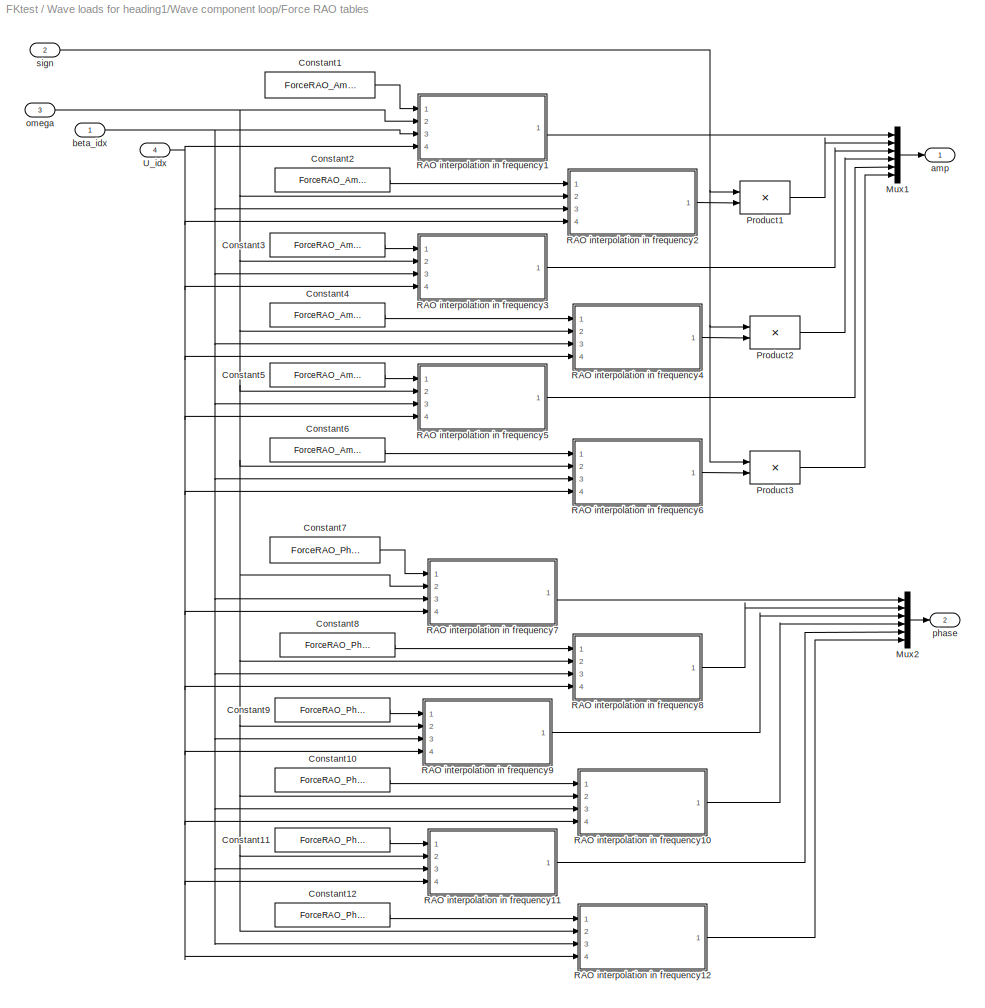
BLOCK [SubSystem] Wave loads for heading1/Wave component loop/Force RAO tables
  AncestorBlock = marine_gnc/Models/Environmental\nLoads/Utilities/RAO tables
  FunctionWithSeparateData = off
  MaskCallbackString = ||||
  MaskDescription = Perform 3D table lookup in 6DOF RAO amplitudes and phases, using the relative wave heading psi_r, wave frequency omega and vessel velocity vel as inputs. See documentation of the Motion RAO block or Force RAO block for details. A warning is issued if the input is outside the range spanned by the RAOs.\n\nCopyright (C) NTNU 2005\n\nAuthor: Oyvind N. Smogeli, 2005-05-03  <repeated x4 — deduplicated; at blocks: Force RAO tables, WD RAO tables>
  MaskEnableString = on,on,on,on,on
  MaskHideContents = off
  MaskIconFrame = on
  MaskIconOpaque = on
  MaskIconRotate = none
  MaskIconUnits = autoscale
  MaskPromptString = Vector of frequencies (rad/s)|Vector of directions (rad)|Vector of velocities (m/s)|6DOF Cell array with tables of Amplitudes|6DOF Cell array with tables of Phases (rad)
  MaskStyleString = edit,edit,edit,edit,edit
  MaskTabNameString = ,,,,
  MaskToolTipString = on,on,on,on,on
  MaskTunableValueString = on,on,on,on,on
  MaskType = RAO table lookup
  MaskValueString = ForceRAO_Freq|RAO_Dir|RAO_Vel|ForceRAO_Amp|ForceRAO_Phase
  MaskVarAliasString = ,,,,
  MaskVariables = RAO_Freq=@1;RAO_Dir=@2;RAO_Vel=@3;RAO_Amp=@4;RAO_Phase=@5;
  MaskVisibilityString = on,on,on,on,on
  MinAlgLoopOccurrences = off
  Ports = [4, 2]
  RTWSystemCode = Auto
BLOCK [Constant] Wave loads for heading1/Wave component loop/Force RAO tables/Constant1
  Value = ForceRAO_Amp{1}
BLOCK [Constant] Wave loads for heading1/Wave component loop/Force RAO tables/Constant10
  Value = ForceRAO_Phase{4}
BLOCK [Constant] Wave loads for heading1/Wave component loop/Force RAO tables/Constant11
  Value = ForceRAO_Phase{5}
BLOCK [Constant] Wave loads for heading1/Wave component loop/Force RAO tables/Constant12
  Value = ForceRAO_Phase{6}
BLOCK [Constant] Wave loads for heading1/Wave component loop/Force RAO tables/Constant2
  Value = ForceRAO_Amp{2}
BLOCK [Constant] Wave loads for heading1/Wave component loop/Force RAO tables/Constant3
  Value = ForceRAO_Amp{3}
BLOCK [Constant] Wave loads for heading1/Wave component loop/Force RAO tables/Constant4
  Value = ForceRAO_Amp{4}
BLOCK [Constant] Wave loads for heading1/Wave component loop/Force RAO tables/Constant5
  Value = ForceRAO_Amp{5}
BLOCK [Constant] Wave loads for heading1/Wave component loop/Force RAO tables/Constant6
  Value = ForceRAO_Amp{6}
BLOCK [Constant] Wave loads for heading1/Wave component loop/Force RAO tables/Constant7
  Value = ForceRAO_Phase{1}
BLOCK [Constant] Wave loads for heading1/Wave component loop/Force RAO tables/Constant8
  Value = ForceRAO_Phase{2}
BLOCK [Constant] Wave loads for heading1/Wave component loop/Force RAO tables/Constant9
  Value = ForceRAO_Phase{3}
BLOCK [Mux] Wave loads for heading1/Wave component loop/Force RAO tables/Mux1
  DisplayOption = bar
  Inputs = 6
  Ports = [6, 1]
BLOCK [Mux] Wave loads for heading1/Wave component loop/Force RAO tables/Mux2
  DisplayOption = bar
  Inputs = 6
  Ports = [6, 1]
BLOCK [Product] Wave loads for heading1/Wave component loop/Force RAO tables/Product1
  CollapseMode = All dimensions
  InputSameDT = off
  Inputs = **
  Ports = [2, 1]
  RndMeth = Floor
BLOCK [Product] Wave loads for heading1/Wave component loop/Force RAO tables/Product2
  CollapseMode = All dimensions
  InputSameDT = off
  Inputs = **
  Ports = [2, 1]
  RndMeth = Floor
BLOCK [Product] Wave loads for heading1/Wave component loop/Force RAO tables/Product3
  CollapseMode = All dimensions
  InputSameDT = off
  Inputs = **
  Ports = [2, 1]
  RndMeth = Floor
BLOCK [SubSystem] Wave loads for heading1/Wave component loop/Force RAO tables/RAO interpolation in frequency1
  FunctionWithSeparateData = off
  MaskHideContents = off
  MinAlgLoopOccurrences = off
  Ports = [4, 1]
  RTWSystemCode = Auto
BLOCK [Demux] Wave loads for heading1/Wave component loop/Force RAO tables/RAO interpolation in frequency1/Demux
  DisplayOption = bar
  Outputs = 2
  Ports = [1, 2]
BLOCK [Mux] Wave loads for heading1/Wave component loop/Force RAO tables/RAO interpolation in frequency1/Mux
  DisplayOption = bar
  Inputs = 2
  Ports = [2, 1]
BLOCK [PreLookup] Wave loads for heading1/Wave component loop/Force RAO tables/RAO interpolation in frequency1/Prelookup1
  BeginIndexSearchUsingPreviousIndexResult = on
  BreakpointsData = vessel.forceRAO.w
  Ports = [1, 2]
  ProcessOutOfRangeInput = Linear extrapolation
BLOCK [Product] Wave loads for heading1/Wave component loop/Force RAO tables/RAO interpolation in frequency1/Product
  CollapseMode = All dimensions
  InputSameDT = off
  OutDataTypeMode = Inherit via internal rule
  Ports = [2, 1]
  SaturateOnIntegerOverflow = off
BLOCK [Selector] Wave loads for heading1/Wave component loop/Force RAO tables/RAO interpolation in frequency1/Selector1
  IndexOptions = Index vector (port),Index vector (port),Index vector (port)
  Indices = [1 3],1,1
  NumberOfDimensions = 3
  OutputSizes = 1,1,1
  Ports = [4, 1]
BLOCK [Sum] Wave loads for heading1/Wave component loop/Force RAO tables/RAO interpolation in frequency1/Sum1
  CollapseMode = All dimensions
  IconShape = round
  InputSameDT = off
  Inputs = ++|
  OutDataTypeMode = Inherit via internal rule
  Ports = [2, 1]
  SaturateOnIntegerOverflow = off
BLOCK [Sum] Wave loads for heading1/Wave component loop/Force RAO tables/RAO interpolation in frequency1/Sum2
  CollapseMode = All dimensions
  IconShape = round
  InputSameDT = off
  Inputs = ++|
  OutDataTypeMode = Inherit via internal rule
  Ports = [2, 1]
  SaturateOnIntegerOverflow = off
BLOCK [Sum] Wave loads for heading1/Wave component loop/Force RAO tables/RAO interpolation in frequency1/Sum3
  CollapseMode = All dimensions
  IconShape = round
  InputSameDT = off
  Inputs = -+|
  OutDataTypeMode = Inherit via internal rule
  Ports = [2, 1]
  SaturateOnIntegerOverflow = off
BLOCK [Sum] Wave loads for heading1/Wave component loop/Force RAO tables/RAO interpolation in frequency1/Sum4
  CollapseMode = All dimensions
  IconShape = round
  InputSameDT = off
  Inputs = ++|
  OutDataTypeMode = Inherit via internal rule
  Ports = [2, 1]
  SaturateOnIntegerOverflow = off
BLOCK [Inport] Wave loads for heading1/Wave component loop/Force RAO tables/RAO interpolation in frequency1/Table
  IconDisplay = Port number
BLOCK [Inport] Wave loads for heading1/Wave component loop/Force RAO tables/RAO interpolation in frequency1/U_idx
  IconDisplay = Port number
  Port = 4
BLOCK [Inport] Wave loads for heading1/Wave component loop/Force RAO tables/RAO interpolation in frequency1/beta_idx
  IconDisplay = Port number
  Port = 3
BLOCK [Inport] Wave loads for heading1/Wave component loop/Force RAO tables/RAO interpolation in frequency1/omega
  IconDisplay = Port number
  Port = 2
BLOCK [Constant] Wave loads for heading1/Wave component loop/Force RAO tables/RAO interpolation in frequency1/one
BLOCK [Outport] Wave loads for heading1/Wave component loop/Force RAO tables/RAO interpolation in frequency1/y
  BusOutputAsStruct = off
  IconDisplay = Port number
BLOCK [SubSystem] Wave loads for heading1/Wave component loop/Force RAO tables/RAO interpolation in frequency10
  FunctionWithSeparateData = off
  MaskHideContents = off
  MinAlgLoopOccurrences = off
  Ports = [4, 1]
  RTWSystemCode = Auto
BLOCK [Demux] Wave loads for heading1/Wave component loop/Force RAO tables/RAO interpolation in frequency10/Demux
  DisplayOption = bar
  Outputs = 2
  Ports = [1, 2]
BLOCK [Mux] Wave loads for heading1/Wave component loop/Force RAO tables/RAO interpolation in frequency10/Mux
  DisplayOption = bar
  Inputs = 2
  Ports = [2, 1]
BLOCK [PreLookup] Wave loads for heading1/Wave component loop/Force RAO tables/RAO interpolation in frequency10/Prelookup1
  BeginIndexSearchUsingPreviousIndexResult = on
  BreakpointsData = vessel.forceRAO.w
  Ports = [1, 2]
  ProcessOutOfRangeInput = Linear extrapolation
BLOCK [Product] Wave loads for heading1/Wave component loop/Force RAO tables/RAO interpolation in frequency10/Product
  CollapseMode = All dimensions
  InputSameDT = off
  OutDataTypeMode = Inherit via internal rule
  Ports = [2, 1]
  SaturateOnIntegerOverflow = off
BLOCK [Selector] Wave loads for heading1/Wave component loop/Force RAO tables/RAO interpolation in frequency10/Selector1
  IndexOptions = Index vector (port),Index vector (port),Index vector (port)
  Indices = [1 3],1,1
  NumberOfDimensions = 3
  OutputSizes = 1,1,1
  Ports = [4, 1]
BLOCK [Sum] Wave loads for heading1/Wave component loop/Force RAO tables/RAO interpolation in frequency10/Sum1
  CollapseMode = All dimensions
  IconShape = round
  InputSameDT = off
  Inputs = ++|
  OutDataTypeMode = Inherit via internal rule
  Ports = [2, 1]
  SaturateOnIntegerOverflow = off
BLOCK [Sum] Wave loads for heading1/Wave component loop/Force RAO tables/RAO interpolation in frequency10/Sum2
  CollapseMode = All dimensions
  IconShape = round
  InputSameDT = off
  Inputs = ++|
  OutDataTypeMode = Inherit via internal rule
  Ports = [2, 1]
  SaturateOnIntegerOverflow = off
BLOCK [Sum] Wave loads for heading1/Wave component loop/Force RAO tables/RAO interpolation in frequency10/Sum3
  CollapseMode = All dimensions
  IconShape = round
  InputSameDT = off
  Inputs = -+|
  OutDataTypeMode = Inherit via internal rule
  Ports = [2, 1]
  SaturateOnIntegerOverflow = off
BLOCK [Sum] Wave loads for heading1/Wave component loop/Force RAO tables/RAO interpolation in frequency10/Sum4
  CollapseMode = All dimensions
  IconShape = round
  InputSameDT = off
  Inputs = ++|
  OutDataTypeMode = Inherit via internal rule
  Ports = [2, 1]
  SaturateOnIntegerOverflow = off
BLOCK [Inport] Wave loads for heading1/Wave component loop/Force RAO tables/RAO interpolation in frequency10/Table
  IconDisplay = Port number
BLOCK [Inport] Wave loads for heading1/Wave component loop/Force RAO tables/RAO interpolation in frequency10/U_idx
  IconDisplay = Port number
  Port = 4
BLOCK [Inport] Wave loads for heading1/Wave component loop/Force RAO tables/RAO interpolation in frequency10/beta_idx
  IconDisplay = Port number
  Port = 3
BLOCK [Inport] Wave loads for heading1/Wave component loop/Force RAO tables/RAO interpolation in frequency10/omega
  IconDisplay = Port number
  Port = 2
BLOCK [Constant] Wave loads for heading1/Wave component loop/Force RAO tables/RAO interpolation in frequency10/one
BLOCK [Outport] Wave loads for heading1/Wave component loop/Force RAO tables/RAO interpolation in frequency10/y
  BusOutputAsStruct = off
  IconDisplay = Port number
BLOCK [SubSystem] Wave loads for heading1/Wave component loop/Force RAO tables/RAO interpolation in frequency11
  FunctionWithSeparateData = off
  MaskHideContents = off
  MinAlgLoopOccurrences = off
  Ports = [4, 1]
  RTWSystemCode = Auto
BLOCK [Demux] Wave loads for heading1/Wave component loop/Force RAO tables/RAO interpolation in frequency11/Demux
  DisplayOption = bar
  Outputs = 2
  Ports = [1, 2]
BLOCK [Mux] Wave loads for heading1/Wave component loop/Force RAO tables/RAO interpolation in frequency11/Mux
  DisplayOption = bar
  Inputs = 2
  Ports = [2, 1]
BLOCK [PreLookup] Wave loads for heading1/Wave component loop/Force RAO tables/RAO interpolation in frequency11/Prelookup1
  BeginIndexSearchUsingPreviousIndexResult = on
  BreakpointsData = vessel.forceRAO.w
  Ports = [1, 2]
  ProcessOutOfRangeInput = Linear extrapolation
BLOCK [Product] Wave loads for heading1/Wave component loop/Force RAO tables/RAO interpolation in frequency11/Product
  CollapseMode = All dimensions
  InputSameDT = off
  OutDataTypeMode = Inherit via internal rule
  Ports = [2, 1]
  SaturateOnIntegerOverflow = off
BLOCK [Selector] Wave loads for heading1/Wave component loop/Force RAO tables/RAO interpolation in frequency11/Selector1
  IndexOptions = Index vector (port),Index vector (port),Index vector (port)
  Indices = [1 3],1,1
  NumberOfDimensions = 3
  OutputSizes = 1,1,1
  Ports = [4, 1]
BLOCK [Sum] Wave loads for heading1/Wave component loop/Force RAO tables/RAO interpolation in frequency11/Sum1
  CollapseMode = All dimensions
  IconShape = round
  InputSameDT = off
  Inputs = ++|
  OutDataTypeMode = Inherit via internal rule
  Ports = [2, 1]
  SaturateOnIntegerOverflow = off
BLOCK [Sum] Wave loads for heading1/Wave component loop/Force RAO tables/RAO interpolation in frequency11/Sum2
  CollapseMode = All dimensions
  IconShape = round
  InputSameDT = off
  Inputs = ++|
  OutDataTypeMode = Inherit via internal rule
  Ports = [2, 1]
  SaturateOnIntegerOverflow = off
BLOCK [Sum] Wave loads for heading1/Wave component loop/Force RAO tables/RAO interpolation in frequency11/Sum3
  CollapseMode = All dimensions
  IconShape = round
  InputSameDT = off
  Inputs = -+|
  OutDataTypeMode = Inherit via internal rule
  Ports = [2, 1]
  SaturateOnIntegerOverflow = off
BLOCK [Sum] Wave loads for heading1/Wave component loop/Force RAO tables/RAO interpolation in frequency11/Sum4
  CollapseMode = All dimensions
  IconShape = round
  InputSameDT = off
  Inputs = ++|
  OutDataTypeMode = Inherit via internal rule
  Ports = [2, 1]
  SaturateOnIntegerOverflow = off
BLOCK [Inport] Wave loads for heading1/Wave component loop/Force RAO tables/RAO interpolation in frequency11/Table
  IconDisplay = Port number
BLOCK [Inport] Wave loads for heading1/Wave component loop/Force RAO tables/RAO interpolation in frequency11/U_idx
  IconDisplay = Port number
  Port = 4
BLOCK [Inport] Wave loads for heading1/Wave component loop/Force RAO tables/RAO interpolation in frequency11/beta_idx
  IconDisplay = Port number
  Port = 3
BLOCK [Inport] Wave loads for heading1/Wave component loop/Force RAO tables/RAO interpolation in frequency11/omega
  IconDisplay = Port number
  Port = 2
BLOCK [Constant] Wave loads for heading1/Wave component loop/Force RAO tables/RAO interpolation in frequency11/one
BLOCK [Outport] Wave loads for heading1/Wave component loop/Force RAO tables/RAO interpolation in frequency11/y
  BusOutputAsStruct = off
  IconDisplay = Port number
BLOCK [SubSystem] Wave loads for heading1/Wave component loop/Force RAO tables/RAO interpolation in frequency12
  FunctionWithSeparateData = off
  MaskHideContents = off
  MinAlgLoopOccurrences = off
  Ports = [4, 1]
  RTWSystemCode = Auto
BLOCK [Demux] Wave loads for heading1/Wave component loop/Force RAO tables/RAO interpolation in frequency12/Demux
  DisplayOption = bar
  Outputs = 2
  Ports = [1, 2]
BLOCK [Mux] Wave loads for heading1/Wave component loop/Force RAO tables/RAO interpolation in frequency12/Mux
  DisplayOption = bar
  Inputs = 2
  Ports = [2, 1]
BLOCK [PreLookup] Wave loads for heading1/Wave component loop/Force RAO tables/RAO interpolation in frequency12/Prelookup1
  BeginIndexSearchUsingPreviousIndexResult = on
  BreakpointsData = vessel.forceRAO.w
  Ports = [1, 2]
  ProcessOutOfRangeInput = Linear extrapolation
BLOCK [Product] Wave loads for heading1/Wave component loop/Force RAO tables/RAO interpolation in frequency12/Product
  CollapseMode = All dimensions
  InputSameDT = off
  OutDataTypeMode = Inherit via internal rule
  Ports = [2, 1]
  SaturateOnIntegerOverflow = off
BLOCK [Selector] Wave loads for heading1/Wave component loop/Force RAO tables/RAO interpolation in frequency12/Selector1
  IndexOptions = Index vector (port),Index vector (port),Index vector (port)
  Indices = [1 3],1,1
  NumberOfDimensions = 3
  OutputSizes = 1,1,1
  Ports = [4, 1]
BLOCK [Sum] Wave loads for heading1/Wave component loop/Force RAO tables/RAO interpolation in frequency12/Sum1
  CollapseMode = All dimensions
  IconShape = round
  InputSameDT = off
  Inputs = ++|
  OutDataTypeMode = Inherit via internal rule
  Ports = [2, 1]
  SaturateOnIntegerOverflow = off
BLOCK [Sum] Wave loads for heading1/Wave component loop/Force RAO tables/RAO interpolation in frequency12/Sum2
  CollapseMode = All dimensions
  IconShape = round
  InputSameDT = off
  Inputs = ++|
  OutDataTypeMode = Inherit via internal rule
  Ports = [2, 1]
  SaturateOnIntegerOverflow = off
BLOCK [Sum] Wave loads for heading1/Wave component loop/Force RAO tables/RAO interpolation in frequency12/Sum3
  CollapseMode = All dimensions
  IconShape = round
  InputSameDT = off
  Inputs = -+|
  OutDataTypeMode = Inherit via internal rule
  Ports = [2, 1]
  SaturateOnIntegerOverflow = off
BLOCK [Sum] Wave loads for heading1/Wave component loop/Force RAO tables/RAO interpolation in frequency12/Sum4
  CollapseMode = All dimensions
  IconShape = round
  InputSameDT = off
  Inputs = ++|
  OutDataTypeMode = Inherit via internal rule
  Ports = [2, 1]
  SaturateOnIntegerOverflow = off
BLOCK [Inport] Wave loads for heading1/Wave component loop/Force RAO tables/RAO interpolation in frequency12/Table
  IconDisplay = Port number
BLOCK [Inport] Wave loads for heading1/Wave component loop/Force RAO tables/RAO interpolation in frequency12/U_idx
  IconDisplay = Port number
  Port = 4
BLOCK [Inport] Wave loads for heading1/Wave component loop/Force RAO tables/RAO interpolation in frequency12/beta_idx
  IconDisplay = Port number
  Port = 3
BLOCK [Inport] Wave loads for heading1/Wave component loop/Force RAO tables/RAO interpolation in frequency12/omega
  IconDisplay = Port number
  Port = 2
BLOCK [Constant] Wave loads for heading1/Wave component loop/Force RAO tables/RAO interpolation in frequency12/one
BLOCK [Outport] Wave loads for heading1/Wave component loop/Force RAO tables/RAO interpolation in frequency12/y
  BusOutputAsStruct = off
  IconDisplay = Port number
BLOCK [SubSystem] Wave loads for heading1/Wave component loop/Force RAO tables/RAO interpolation in frequency2
  FunctionWithSeparateData = off
  MaskHideContents = off
  MinAlgLoopOccurrences = off
  Ports = [4, 1]
  RTWSystemCode = Auto
BLOCK [Demux] Wave loads for heading1/Wave component loop/Force RAO tables/RAO interpolation in frequency2/Demux
  DisplayOption = bar
  Outputs = 2
  Ports = [1, 2]
BLOCK [Mux] Wave loads for heading1/Wave component loop/Force RAO tables/RAO interpolation in frequency2/Mux
  DisplayOption = bar
  Inputs = 2
  Ports = [2, 1]
BLOCK [PreLookup] Wave loads for heading1/Wave component loop/Force RAO tables/RAO interpolation in frequency2/Prelookup1
  BeginIndexSearchUsingPreviousIndexResult = on
  BreakpointsData = vessel.forceRAO.w
  Ports = [1, 2]
  ProcessOutOfRangeInput = Linear extrapolation
BLOCK [Product] Wave loads for heading1/Wave component loop/Force RAO tables/RAO interpolation in frequency2/Product
  CollapseMode = All dimensions
  InputSameDT = off
  OutDataTypeMode = Inherit via internal rule
  Ports = [2, 1]
  SaturateOnIntegerOverflow = off
BLOCK [Selector] Wave loads for heading1/Wave component loop/Force RAO tables/RAO interpolation in frequency2/Selector1
  IndexOptions = Index vector (port),Index vector (port),Index vector (port)
  Indices = [1 3],1,1
  NumberOfDimensions = 3
  OutputSizes = 1,1,1
  Ports = [4, 1]
BLOCK [Sum] Wave loads for heading1/Wave component loop/Force RAO tables/RAO interpolation in frequency2/Sum1
  CollapseMode = All dimensions
  IconShape = round
  InputSameDT = off
  Inputs = ++|
  OutDataTypeMode = Inherit via internal rule
  Ports = [2, 1]
  SaturateOnIntegerOverflow = off
BLOCK [Sum] Wave loads for heading1/Wave component loop/Force RAO tables/RAO interpolation in frequency2/Sum2
  CollapseMode = All dimensions
  IconShape = round
  InputSameDT = off
  Inputs = ++|
  OutDataTypeMode = Inherit via internal rule
  Ports = [2, 1]
  SaturateOnIntegerOverflow = off
BLOCK [Sum] Wave loads for heading1/Wave component loop/Force RAO tables/RAO interpolation in frequency2/Sum3
  CollapseMode = All dimensions
  IconShape = round
  InputSameDT = off
  Inputs = -+|
  OutDataTypeMode = Inherit via internal rule
  Ports = [2, 1]
  SaturateOnIntegerOverflow = off
BLOCK [Sum] Wave loads for heading1/Wave component loop/Force RAO tables/RAO interpolation in frequency2/Sum4
  CollapseMode = All dimensions
  IconShape = round
  InputSameDT = off
  Inputs = ++|
  OutDataTypeMode = Inherit via internal rule
  Ports = [2, 1]
  SaturateOnIntegerOverflow = off
BLOCK [Inport] Wave loads for heading1/Wave component loop/Force RAO tables/RAO interpolation in frequency2/Table
  IconDisplay = Port number
BLOCK [Inport] Wave loads for heading1/Wave component loop/Force RAO tables/RAO interpolation in frequency2/U_idx
  IconDisplay = Port number
  Port = 4
BLOCK [Inport] Wave loads for heading1/Wave component loop/Force RAO tables/RAO interpolation in frequency2/beta_idx
  IconDisplay = Port number
  Port = 3
BLOCK [Inport] Wave loads for heading1/Wave component loop/Force RAO tables/RAO interpolation in frequency2/omega
  IconDisplay = Port number
  Port = 2
BLOCK [Constant] Wave loads for heading1/Wave component loop/Force RAO tables/RAO interpolation in frequency2/one
BLOCK [Outport] Wave loads for heading1/Wave component loop/Force RAO tables/RAO interpolation in frequency2/y
  BusOutputAsStruct = off
  IconDisplay = Port number
BLOCK [SubSystem] Wave loads for heading1/Wave component loop/Force RAO tables/RAO interpolation in frequency3
  FunctionWithSeparateData = off
  MaskHideContents = off
  MinAlgLoopOccurrences = off
  Ports = [4, 1]
  RTWSystemCode = Auto
BLOCK [Demux] Wave loads for heading1/Wave component loop/Force RAO tables/RAO interpolation in frequency3/Demux
  DisplayOption = bar
  Outputs = 2
  Ports = [1, 2]
BLOCK [Mux] Wave loads for heading1/Wave component loop/Force RAO tables/RAO interpolation in frequency3/Mux
  DisplayOption = bar
  Inputs = 2
  Ports = [2, 1]
BLOCK [PreLookup] Wave loads for heading1/Wave component loop/Force RAO tables/RAO interpolation in frequency3/Prelookup1
  BeginIndexSearchUsingPreviousIndexResult = on
  BreakpointsData = vessel.forceRAO.w
  Ports = [1, 2]
  ProcessOutOfRangeInput = Linear extrapolation
BLOCK [Product] Wave loads for heading1/Wave component loop/Force RAO tables/RAO interpolation in frequency3/Product
  CollapseMode = All dimensions
  InputSameDT = off
  OutDataTypeMode = Inherit via internal rule
  Ports = [2, 1]
  SaturateOnIntegerOverflow = off
BLOCK [Selector] Wave loads for heading1/Wave component loop/Force RAO tables/RAO interpolation in frequency3/Selector1
  IndexOptions = Index vector (port),Index vector (port),Index vector (port)
  Indices = [1 3],1,1
  NumberOfDimensions = 3
  OutputSizes = 1,1,1
  Ports = [4, 1]
BLOCK [Sum] Wave loads for heading1/Wave component loop/Force RAO tables/RAO interpolation in frequency3/Sum1
  CollapseMode = All dimensions
  IconShape = round
  InputSameDT = off
  Inputs = ++|
  OutDataTypeMode = Inherit via internal rule
  Ports = [2, 1]
  SaturateOnIntegerOverflow = off
BLOCK [Sum] Wave loads for heading1/Wave component loop/Force RAO tables/RAO interpolation in frequency3/Sum2
  CollapseMode = All dimensions
  IconShape = round
  InputSameDT = off
  Inputs = ++|
  OutDataTypeMode = Inherit via internal rule
  Ports = [2, 1]
  SaturateOnIntegerOverflow = off
BLOCK [Sum] Wave loads for heading1/Wave component loop/Force RAO tables/RAO interpolation in frequency3/Sum3
  CollapseMode = All dimensions
  IconShape = round
  InputSameDT = off
  Inputs = -+|
  OutDataTypeMode = Inherit via internal rule
  Ports = [2, 1]
  SaturateOnIntegerOverflow = off
BLOCK [Sum] Wave loads for heading1/Wave component loop/Force RAO tables/RAO interpolation in frequency3/Sum4
  CollapseMode = All dimensions
  IconShape = round
  InputSameDT = off
  Inputs = ++|
  OutDataTypeMode = Inherit via internal rule
  Ports = [2, 1]
  SaturateOnIntegerOverflow = off
BLOCK [Inport] Wave loads for heading1/Wave component loop/Force RAO tables/RAO interpolation in frequency3/Table
  IconDisplay = Port number
BLOCK [Inport] Wave loads for heading1/Wave component loop/Force RAO tables/RAO interpolation in frequency3/U_idx
  IconDisplay = Port number
  Port = 4
BLOCK [Inport] Wave loads for heading1/Wave component loop/Force RAO tables/RAO interpolation in frequency3/beta_idx
  IconDisplay = Port number
  Port = 3
BLOCK [Inport] Wave loads for heading1/Wave component loop/Force RAO tables/RAO interpolation in frequency3/omega
  IconDisplay = Port number
  Port = 2
BLOCK [Constant] Wave loads for heading1/Wave component loop/Force RAO tables/RAO interpolation in frequency3/one
BLOCK [Outport] Wave loads for heading1/Wave component loop/Force RAO tables/RAO interpolation in frequency3/y
  BusOutputAsStruct = off
  IconDisplay = Port number
BLOCK [SubSystem] Wave loads for heading1/Wave component loop/Force RAO tables/RAO interpolation in frequency4
  FunctionWithSeparateData = off
  MaskHideContents = off
  MinAlgLoopOccurrences = off
  Ports = [4, 1]
  RTWSystemCode = Auto
BLOCK [Demux] Wave loads for heading1/Wave component loop/Force RAO tables/RAO interpolation in frequency4/Demux
  DisplayOption = bar
  Outputs = 2
  Ports = [1, 2]
BLOCK [Mux] Wave loads for heading1/Wave component loop/Force RAO tables/RAO interpolation in frequency4/Mux
  DisplayOption = bar
  Inputs = 2
  Ports = [2, 1]
BLOCK [PreLookup] Wave loads for heading1/Wave component loop/Force RAO tables/RAO interpolation in frequency4/Prelookup1
  BeginIndexSearchUsingPreviousIndexResult = on
  BreakpointsData = vessel.forceRAO.w
  Ports = [1, 2]
  ProcessOutOfRangeInput = Linear extrapolation
BLOCK [Product] Wave loads for heading1/Wave component loop/Force RAO tables/RAO interpolation in frequency4/Product
  CollapseMode = All dimensions
  InputSameDT = off
  OutDataTypeMode = Inherit via internal rule
  Ports = [2, 1]
  SaturateOnIntegerOverflow = off
BLOCK [Selector] Wave loads for heading1/Wave component loop/Force RAO tables/RAO interpolation in frequency4/Selector1
  IndexOptions = Index vector (port),Index vector (port),Index vector (port)
  Indices = [1 3],1,1
  NumberOfDimensions = 3
  OutputSizes = 1,1,1
  Ports = [4, 1]
BLOCK [Sum] Wave loads for heading1/Wave component loop/Force RAO tables/RAO interpolation in frequency4/Sum1
  CollapseMode = All dimensions
  IconShape = round
  InputSameDT = off
  Inputs = ++|
  OutDataTypeMode = Inherit via internal rule
  Ports = [2, 1]
  SaturateOnIntegerOverflow = off
BLOCK [Sum] Wave loads for heading1/Wave component loop/Force RAO tables/RAO interpolation in frequency4/Sum2
  CollapseMode = All dimensions
  IconShape = round
  InputSameDT = off
  Inputs = ++|
  OutDataTypeMode = Inherit via internal rule
  Ports = [2, 1]
  SaturateOnIntegerOverflow = off
BLOCK [Sum] Wave loads for heading1/Wave component loop/Force RAO tables/RAO interpolation in frequency4/Sum3
  CollapseMode = All dimensions
  IconShape = round
  InputSameDT = off
  Inputs = -+|
  OutDataTypeMode = Inherit via internal rule
  Ports = [2, 1]
  SaturateOnIntegerOverflow = off
BLOCK [Sum] Wave loads for heading1/Wave component loop/Force RAO tables/RAO interpolation in frequency4/Sum4
  CollapseMode = All dimensions
  IconShape = round
  InputSameDT = off
  Inputs = ++|
  OutDataTypeMode = Inherit via internal rule
  Ports = [2, 1]
  SaturateOnIntegerOverflow = off
BLOCK [Inport] Wave loads for heading1/Wave component loop/Force RAO tables/RAO interpolation in frequency4/Table
  IconDisplay = Port number
BLOCK [Inport] Wave loads for heading1/Wave component loop/Force RAO tables/RAO interpolation in frequency4/U_idx
  IconDisplay = Port number
  Port = 4
BLOCK [Inport] Wave loads for heading1/Wave component loop/Force RAO tables/RAO interpolation in frequency4/beta_idx
  IconDisplay = Port number
  Port = 3
BLOCK [Inport] Wave loads for heading1/Wave component loop/Force RAO tables/RAO interpolation in frequency4/omega
  IconDisplay = Port number
  Port = 2
BLOCK [Constant] Wave loads for heading1/Wave component loop/Force RAO tables/RAO interpolation in frequency4/one
BLOCK [Outport] Wave loads for heading1/Wave component loop/Force RAO tables/RAO interpolation in frequency4/y
  BusOutputAsStruct = off
  IconDisplay = Port number
BLOCK [SubSystem] Wave loads for heading1/Wave component loop/Force RAO tables/RAO interpolation in frequency5
  FunctionWithSeparateData = off
  MaskHideContents = off
  MinAlgLoopOccurrences = off
  Ports = [4, 1]
  RTWSystemCode = Auto
BLOCK [Demux] Wave loads for heading1/Wave component loop/Force RAO tables/RAO interpolation in frequency5/Demux
  DisplayOption = bar
  Outputs = 2
  Ports = [1, 2]
BLOCK [Mux] Wave loads for heading1/Wave component loop/Force RAO tables/RAO interpolation in frequency5/Mux
  DisplayOption = bar
  Inputs = 2
  Ports = [2, 1]
BLOCK [PreLookup] Wave loads for heading1/Wave component loop/Force RAO tables/RAO interpolation in frequency5/Prelookup1
  BeginIndexSearchUsingPreviousIndexResult = on
  BreakpointsData = vessel.forceRAO.w
  Ports = [1, 2]
  ProcessOutOfRangeInput = Linear extrapolation
BLOCK [Product] Wave loads for heading1/Wave component loop/Force RAO tables/RAO interpolation in frequency5/Product
  CollapseMode = All dimensions
  InputSameDT = off
  OutDataTypeMode = Inherit via internal rule
  Ports = [2, 1]
  SaturateOnIntegerOverflow = off
BLOCK [Selector] Wave loads for heading1/Wave component loop/Force RAO tables/RAO interpolation in frequency5/Selector1
  IndexOptions = Index vector (port),Index vector (port),Index vector (port)
  Indices = [1 3],1,1
  NumberOfDimensions = 3
  OutputSizes = 1,1,1
  Ports = [4, 1]
BLOCK [Sum] Wave loads for heading1/Wave component loop/Force RAO tables/RAO interpolation in frequency5/Sum1
  CollapseMode = All dimensions
  IconShape = round
  InputSameDT = off
  Inputs = ++|
  OutDataTypeMode = Inherit via internal rule
  Ports = [2, 1]
  SaturateOnIntegerOverflow = off
BLOCK [Sum] Wave loads for heading1/Wave component loop/Force RAO tables/RAO interpolation in frequency5/Sum2
  CollapseMode = All dimensions
  IconShape = round
  InputSameDT = off
  Inputs = ++|
  OutDataTypeMode = Inherit via internal rule
  Ports = [2, 1]
  SaturateOnIntegerOverflow = off
BLOCK [Sum] Wave loads for heading1/Wave component loop/Force RAO tables/RAO interpolation in frequency5/Sum3
  CollapseMode = All dimensions
  IconShape = round
  InputSameDT = off
  Inputs = -+|
  OutDataTypeMode = Inherit via internal rule
  Ports = [2, 1]
  SaturateOnIntegerOverflow = off
BLOCK [Sum] Wave loads for heading1/Wave component loop/Force RAO tables/RAO interpolation in frequency5/Sum4
  CollapseMode = All dimensions
  IconShape = round
  InputSameDT = off
  Inputs = ++|
  OutDataTypeMode = Inherit via internal rule
  Ports = [2, 1]
  SaturateOnIntegerOverflow = off
BLOCK [Inport] Wave loads for heading1/Wave component loop/Force RAO tables/RAO interpolation in frequency5/Table
  IconDisplay = Port number
BLOCK [Inport] Wave loads for heading1/Wave component loop/Force RAO tables/RAO interpolation in frequency5/U_idx
  IconDisplay = Port number
  Port = 4
BLOCK [Inport] Wave loads for heading1/Wave component loop/Force RAO tables/RAO interpolation in frequency5/beta_idx
  IconDisplay = Port number
  Port = 3
BLOCK [Inport] Wave loads for heading1/Wave component loop/Force RAO tables/RAO interpolation in frequency5/omega
  IconDisplay = Port number
  Port = 2
BLOCK [Constant] Wave loads for heading1/Wave component loop/Force RAO tables/RAO interpolation in frequency5/one
BLOCK [Outport] Wave loads for heading1/Wave component loop/Force RAO tables/RAO interpolation in frequency5/y
  BusOutputAsStruct = off
  IconDisplay = Port number
BLOCK [SubSystem] Wave loads for heading1/Wave component loop/Force RAO tables/RAO interpolation in frequency6
  FunctionWithSeparateData = off
  MaskHideContents = off
  MinAlgLoopOccurrences = off
  Ports = [4, 1]
  RTWSystemCode = Auto
BLOCK [Demux] Wave loads for heading1/Wave component loop/Force RAO tables/RAO interpolation in frequency6/Demux
  DisplayOption = bar
  Outputs = 2
  Ports = [1, 2]
BLOCK [Mux] Wave loads for heading1/Wave component loop/Force RAO tables/RAO interpolation in frequency6/Mux
  DisplayOption = bar
  Inputs = 2
  Ports = [2, 1]
BLOCK [PreLookup] Wave loads for heading1/Wave component loop/Force RAO tables/RAO interpolation in frequency6/Prelookup1
  BeginIndexSearchUsingPreviousIndexResult = on
  BreakpointsData = vessel.forceRAO.w
  Ports = [1, 2]
  ProcessOutOfRangeInput = Linear extrapolation
BLOCK [Product] Wave loads for heading1/Wave component loop/Force RAO tables/RAO interpolation in frequency6/Product
  CollapseMode = All dimensions
  InputSameDT = off
  OutDataTypeMode = Inherit via internal rule
  Ports = [2, 1]
  SaturateOnIntegerOverflow = off
BLOCK [Selector] Wave loads for heading1/Wave component loop/Force RAO tables/RAO interpolation in frequency6/Selector1
  IndexOptions = Index vector (port),Index vector (port),Index vector (port)
  Indices = [1 3],1,1
  NumberOfDimensions = 3
  OutputSizes = 1,1,1
  Ports = [4, 1]
BLOCK [Sum] Wave loads for heading1/Wave component loop/Force RAO tables/RAO interpolation in frequency6/Sum1
  CollapseMode = All dimensions
  IconShape = round
  InputSameDT = off
  Inputs = ++|
  OutDataTypeMode = Inherit via internal rule
  Ports = [2, 1]
  SaturateOnIntegerOverflow = off
BLOCK [Sum] Wave loads for heading1/Wave component loop/Force RAO tables/RAO interpolation in frequency6/Sum2
  CollapseMode = All dimensions
  IconShape = round
  InputSameDT = off
  Inputs = ++|
  OutDataTypeMode = Inherit via internal rule
  Ports = [2, 1]
  SaturateOnIntegerOverflow = off
BLOCK [Sum] Wave loads for heading1/Wave component loop/Force RAO tables/RAO interpolation in frequency6/Sum3
  CollapseMode = All dimensions
  IconShape = round
  InputSameDT = off
  Inputs = -+|
  OutDataTypeMode = Inherit via internal rule
  Ports = [2, 1]
  SaturateOnIntegerOverflow = off
BLOCK [Sum] Wave loads for heading1/Wave component loop/Force RAO tables/RAO interpolation in frequency6/Sum4
  CollapseMode = All dimensions
  IconShape = round
  InputSameDT = off
  Inputs = ++|
  OutDataTypeMode = Inherit via internal rule
  Ports = [2, 1]
  SaturateOnIntegerOverflow = off
BLOCK [Inport] Wave loads for heading1/Wave component loop/Force RAO tables/RAO interpolation in frequency6/Table
  IconDisplay = Port number
BLOCK [Inport] Wave loads for heading1/Wave component loop/Force RAO tables/RAO interpolation in frequency6/U_idx
  IconDisplay = Port number
  Port = 4
BLOCK [Inport] Wave loads for heading1/Wave component loop/Force RAO tables/RAO interpolation in frequency6/beta_idx
  IconDisplay = Port number
  Port = 3
BLOCK [Inport] Wave loads for heading1/Wave component loop/Force RAO tables/RAO interpolation in frequency6/omega
  IconDisplay = Port number
  Port = 2
BLOCK [Constant] Wave loads for heading1/Wave component loop/Force RAO tables/RAO interpolation in frequency6/one
BLOCK [Outport] Wave loads for heading1/Wave component loop/Force RAO tables/RAO interpolation in frequency6/y
  BusOutputAsStruct = off
  IconDisplay = Port number
BLOCK [SubSystem] Wave loads for heading1/Wave component loop/Force RAO tables/RAO interpolation in frequency7
  FunctionWithSeparateData = off
  MaskHideContents = off
  MinAlgLoopOccurrences = off
  Ports = [4, 1]
  RTWSystemCode = Auto
BLOCK [Demux] Wave loads for heading1/Wave component loop/Force RAO tables/RAO interpolation in frequency7/Demux
  DisplayOption = bar
  Outputs = 2
  Ports = [1, 2]
BLOCK [Mux] Wave loads for heading1/Wave component loop/Force RAO tables/RAO interpolation in frequency7/Mux
  DisplayOption = bar
  Inputs = 2
  Ports = [2, 1]
BLOCK [PreLookup] Wave loads for heading1/Wave component loop/Force RAO tables/RAO interpolation in frequency7/Prelookup1
  BeginIndexSearchUsingPreviousIndexResult = on
  BreakpointsData = vessel.forceRAO.w
  Ports = [1, 2]
  ProcessOutOfRangeInput = Linear extrapolation
BLOCK [Product] Wave loads for heading1/Wave component loop/Force RAO tables/RAO interpolation in frequency7/Product
  CollapseMode = All dimensions
  InputSameDT = off
  OutDataTypeMode = Inherit via internal rule
  Ports = [2, 1]
  SaturateOnIntegerOverflow = off
BLOCK [Selector] Wave loads for heading1/Wave component loop/Force RAO tables/RAO interpolation in frequency7/Selector1
  IndexOptions = Index vector (port),Index vector (port),Index vector (port)
  Indices = [1 3],1,1
  NumberOfDimensions = 3
  OutputSizes = 1,1,1
  Ports = [4, 1]
BLOCK [Sum] Wave loads for heading1/Wave component loop/Force RAO tables/RAO interpolation in frequency7/Sum1
  CollapseMode = All dimensions
  IconShape = round
  InputSameDT = off
  Inputs = ++|
  OutDataTypeMode = Inherit via internal rule
  Ports = [2, 1]
  SaturateOnIntegerOverflow = off
BLOCK [Sum] Wave loads for heading1/Wave component loop/Force RAO tables/RAO interpolation in frequency7/Sum2
  CollapseMode = All dimensions
  IconShape = round
  InputSameDT = off
  Inputs = ++|
  OutDataTypeMode = Inherit via internal rule
  Ports = [2, 1]
  SaturateOnIntegerOverflow = off
BLOCK [Sum] Wave loads for heading1/Wave component loop/Force RAO tables/RAO interpolation in frequency7/Sum3
  CollapseMode = All dimensions
  IconShape = round
  InputSameDT = off
  Inputs = -+|
  OutDataTypeMode = Inherit via internal rule
  Ports = [2, 1]
  SaturateOnIntegerOverflow = off
BLOCK [Sum] Wave loads for heading1/Wave component loop/Force RAO tables/RAO interpolation in frequency7/Sum4
  CollapseMode = All dimensions
  IconShape = round
  InputSameDT = off
  Inputs = ++|
  OutDataTypeMode = Inherit via internal rule
  Ports = [2, 1]
  SaturateOnIntegerOverflow = off
BLOCK [Inport] Wave loads for heading1/Wave component loop/Force RAO tables/RAO interpolation in frequency7/Table
  IconDisplay = Port number
BLOCK [Inport] Wave loads for heading1/Wave component loop/Force RAO tables/RAO interpolation in frequency7/U_idx
  IconDisplay = Port number
  Port = 4
BLOCK [Inport] Wave loads for heading1/Wave component loop/Force RAO tables/RAO interpolation in frequency7/beta_idx
  IconDisplay = Port number
  Port = 3
BLOCK [Inport] Wave loads for heading1/Wave component loop/Force RAO tables/RAO interpolation in frequency7/omega
  IconDisplay = Port number
  Port = 2
BLOCK [Constant] Wave loads for heading1/Wave component loop/Force RAO tables/RAO interpolation in frequency7/one
BLOCK [Outport] Wave loads for heading1/Wave component loop/Force RAO tables/RAO interpolation in frequency7/y
  BusOutputAsStruct = off
  IconDisplay = Port number
BLOCK [SubSystem] Wave loads for heading1/Wave component loop/Force RAO tables/RAO interpolation in frequency8
  FunctionWithSeparateData = off
  MaskHideContents = off
  MinAlgLoopOccurrences = off
  Ports = [4, 1]
  RTWSystemCode = Auto
BLOCK [Demux] Wave loads for heading1/Wave component loop/Force RAO tables/RAO interpolation in frequency8/Demux
  DisplayOption = bar
  Outputs = 2
  Ports = [1, 2]
BLOCK [Mux] Wave loads for heading1/Wave component loop/Force RAO tables/RAO interpolation in frequency8/Mux
  DisplayOption = bar
  Inputs = 2
  Ports = [2, 1]
BLOCK [PreLookup] Wave loads for heading1/Wave component loop/Force RAO tables/RAO interpolation in frequency8/Prelookup1
  BeginIndexSearchUsingPreviousIndexResult = on
  BreakpointsData = vessel.forceRAO.w
  Ports = [1, 2]
  ProcessOutOfRangeInput = Linear extrapolation
BLOCK [Product] Wave loads for heading1/Wave component loop/Force RAO tables/RAO interpolation in frequency8/Product
  CollapseMode = All dimensions
  InputSameDT = off
  OutDataTypeMode = Inherit via internal rule
  Ports = [2, 1]
  SaturateOnIntegerOverflow = off
BLOCK [Selector] Wave loads for heading1/Wave component loop/Force RAO tables/RAO interpolation in frequency8/Selector1
  IndexOptions = Index vector (port),Index vector (port),Index vector (port)
  Indices = [1 3],1,1
  NumberOfDimensions = 3
  OutputSizes = 1,1,1
  Ports = [4, 1]
BLOCK [Sum] Wave loads for heading1/Wave component loop/Force RAO tables/RAO interpolation in frequency8/Sum1
  CollapseMode = All dimensions
  IconShape = round
  InputSameDT = off
  Inputs = ++|
  OutDataTypeMode = Inherit via internal rule
  Ports = [2, 1]
  SaturateOnIntegerOverflow = off
BLOCK [Sum] Wave loads for heading1/Wave component loop/Force RAO tables/RAO interpolation in frequency8/Sum2
  CollapseMode = All dimensions
  IconShape = round
  InputSameDT = off
  Inputs = ++|
  OutDataTypeMode = Inherit via internal rule
  Ports = [2, 1]
  SaturateOnIntegerOverflow = off
BLOCK [Sum] Wave loads for heading1/Wave component loop/Force RAO tables/RAO interpolation in frequency8/Sum3
  CollapseMode = All dimensions
  IconShape = round
  InputSameDT = off
  Inputs = -+|
  OutDataTypeMode = Inherit via internal rule
  Ports = [2, 1]
  SaturateOnIntegerOverflow = off
BLOCK [Sum] Wave loads for heading1/Wave component loop/Force RAO tables/RAO interpolation in frequency8/Sum4
  CollapseMode = All dimensions
  IconShape = round
  InputSameDT = off
  Inputs = ++|
  OutDataTypeMode = Inherit via internal rule
  Ports = [2, 1]
  SaturateOnIntegerOverflow = off
BLOCK [Inport] Wave loads for heading1/Wave component loop/Force RAO tables/RAO interpolation in frequency8/Table
  IconDisplay = Port number
BLOCK [Inport] Wave loads for heading1/Wave component loop/Force RAO tables/RAO interpolation in frequency8/U_idx
  IconDisplay = Port number
  Port = 4
BLOCK [Inport] Wave loads for heading1/Wave component loop/Force RAO tables/RAO interpolation in frequency8/beta_idx
  IconDisplay = Port number
  Port = 3
BLOCK [Inport] Wave loads for heading1/Wave component loop/Force RAO tables/RAO interpolation in frequency8/omega
  IconDisplay = Port number
  Port = 2
BLOCK [Constant] Wave loads for heading1/Wave component loop/Force RAO tables/RAO interpolation in frequency8/one
BLOCK [Outport] Wave loads for heading1/Wave component loop/Force RAO tables/RAO interpolation in frequency8/y
  BusOutputAsStruct = off
  IconDisplay = Port number
BLOCK [SubSystem] Wave loads for heading1/Wave component loop/Force RAO tables/RAO interpolation in frequency9
  FunctionWithSeparateData = off
  MaskHideContents = off
  MinAlgLoopOccurrences = off
  Ports = [4, 1]
  RTWSystemCode = Auto
BLOCK [Demux] Wave loads for heading1/Wave component loop/Force RAO tables/RAO interpolation in frequency9/Demux
  DisplayOption = bar
  Outputs = 2
  Ports = [1, 2]
BLOCK [Mux] Wave loads for heading1/Wave component loop/Force RAO tables/RAO interpolation in frequency9/Mux
  DisplayOption = bar
  Inputs = 2
  Ports = [2, 1]
BLOCK [PreLookup] Wave loads for heading1/Wave component loop/Force RAO tables/RAO interpolation in frequency9/Prelookup1
  BeginIndexSearchUsingPreviousIndexResult = on
  BreakpointsData = vessel.forceRAO.w
  Ports = [1, 2]
  ProcessOutOfRangeInput = Linear extrapolation
BLOCK [Product] Wave loads for heading1/Wave component loop/Force RAO tables/RAO interpolation in frequency9/Product
  CollapseMode = All dimensions
  InputSameDT = off
  OutDataTypeMode = Inherit via internal rule
  Ports = [2, 1]
  SaturateOnIntegerOverflow = off
BLOCK [Selector] Wave loads for heading1/Wave component loop/Force RAO tables/RAO interpolation in frequency9/Selector1
  IndexOptions = Index vector (port),Index vector (port),Index vector (port)
  Indices = [1 3],1,1
  NumberOfDimensions = 3
  OutputSizes = 1,1,1
  Ports = [4, 1]
BLOCK [Sum] Wave loads for heading1/Wave component loop/Force RAO tables/RAO interpolation in frequency9/Sum1
  CollapseMode = All dimensions
  IconShape = round
  InputSameDT = off
  Inputs = ++|
  OutDataTypeMode = Inherit via internal rule
  Ports = [2, 1]
  SaturateOnIntegerOverflow = off
BLOCK [Sum] Wave loads for heading1/Wave component loop/Force RAO tables/RAO interpolation in frequency9/Sum2
  CollapseMode = All dimensions
  IconShape = round
  InputSameDT = off
  Inputs = ++|
  OutDataTypeMode = Inherit via internal rule
  Ports = [2, 1]
  SaturateOnIntegerOverflow = off
BLOCK [Sum] Wave loads for heading1/Wave component loop/Force RAO tables/RAO interpolation in frequency9/Sum3
  CollapseMode = All dimensions
  IconShape = round
  InputSameDT = off
  Inputs = -+|
  OutDataTypeMode = Inherit via internal rule
  Ports = [2, 1]
  SaturateOnIntegerOverflow = off
BLOCK [Sum] Wave loads for heading1/Wave component loop/Force RAO tables/RAO interpolation in frequency9/Sum4
  CollapseMode = All dimensions
  IconShape = round
  InputSameDT = off
  Inputs = ++|
  OutDataTypeMode = Inherit via internal rule
  Ports = [2, 1]
  SaturateOnIntegerOverflow = off
BLOCK [Inport] Wave loads for heading1/Wave component loop/Force RAO tables/RAO interpolation in frequency9/Table
  IconDisplay = Port number
BLOCK [Inport] Wave loads for heading1/Wave component loop/Force RAO tables/RAO interpolation in frequency9/U_idx
  IconDisplay = Port number
  Port = 4
BLOCK [Inport] Wave loads for heading1/Wave component loop/Force RAO tables/RAO interpolation in frequency9/beta_idx
  IconDisplay = Port number
  Port = 3
BLOCK [Inport] Wave loads for heading1/Wave component loop/Force RAO tables/RAO interpolation in frequency9/omega
  IconDisplay = Port number
  Port = 2
BLOCK [Constant] Wave loads for heading1/Wave component loop/Force RAO tables/RAO interpolation in frequency9/one
BLOCK [Outport] Wave loads for heading1/Wave component loop/Force RAO tables/RAO interpolation in frequency9/y
  BusOutputAsStruct = off
  IconDisplay = Port number
BLOCK [Inport] Wave loads for heading1/Wave component loop/Force RAO tables/U_idx
  IconDisplay = Port number
  Port = 4
BLOCK [Outport] Wave loads for heading1/Wave component loop/Force RAO tables/amp
  BusOutputAsStruct = off
  IconDisplay = Port number
BLOCK [Inport] Wave loads for heading1/Wave component loop/Force RAO tables/beta_idx
  IconDisplay = Port number
BLOCK [Inport] Wave loads for heading1/Wave component loop/Force RAO tables/omega
  IconDisplay = Port number
  Port = 3
BLOCK [Outport] Wave loads for heading1/Wave component loop/Force RAO tables/phase
  BusOutputAsStruct = off
  IconDisplay = Port number
  Port = 2
BLOCK [Inport] Wave loads for heading1/Wave component loop/Force RAO tables/sign
  IconDisplay = Port number
  Port = 2
BLOCK [Memory] Wave loads for heading1/Wave component loop/Memory1
  InheritSampleTime = on
  X0 = [0 0 0 0 0 0]'
BLOCK [Memory] Wave loads for heading1/Wave component loop/Memory2
  InheritSampleTime = on
  X0 = [0 0 0 0 0 0]'
BLOCK [Inport] Wave loads for heading1/Wave component loop/Omega
  IconDisplay = Port number
  Port = 3
BLOCK [Inport] Wave loads for heading1/Wave component loop/Phase_tot
  IconDisplay = Port number
  Port = 4
BLOCK [PreLookup] Wave loads for heading1/Wave component loop/Prelookup
  BeginIndexSearchUsingPreviousIndexResult = on
  BreakpointsData = vessel.headings
  OutputOnlyTheIndex = on
  Ports = [1, 1]
BLOCK [Product] Wave loads for heading1/Wave component loop/Product1
  CollapseMode = All dimensions
  InputSameDT = off
  Ports = [2, 1]
  RndMeth = Floor
BLOCK [Product] Wave loads for heading1/Wave component loop/Product3
  CollapseMode = All dimensions
  InputSameDT = off
  Inputs = 3
  Ports = [3, 1]
  RndMeth = Floor
BLOCK [Product] Wave loads for heading1/Wave component loop/Product4
  CollapseMode = All dimensions
  InputSameDT = off
  Ports = [2, 1]
  RndMeth = Floor
BLOCK [Inport] Wave loads for heading1/Wave component loop/Psi_r
  IconDisplay = Port number
  Port = 2
BLOCK [Selector] Wave loads for heading1/Wave component loop/Selector2
  IndexOptions = Index vector (port)
  Indices = [1 3]
  OutputSizes = 1
  Ports = [2, 1]
BLOCK [Selector] Wave loads for heading1/Wave component loop/Selector3
  IndexOptions = Index vector (port)
  Indices = [1 3]
  OutputSizes = 1
  Ports = [2, 1]
BLOCK [Selector] Wave loads for heading1/Wave component loop/Selector4
  IndexOptions = Index vector (port)
  Indices = [1 3]
  OutputSizes = 1
  Ports = [2, 1]
BLOCK [Selector] Wave loads for heading1/Wave component loop/Selector5
  IndexOptions = Index vector (port)
  Indices = [1 3]
  OutputSizes = 1
  Ports = [2, 1]
BLOCK [Signum] Wave loads for heading1/Wave component loop/Sign
BLOCK [Sum] Wave loads for heading1/Wave component loop/Sum1
  CollapseMode = All dimensions
  IconShape = round
  InputSameDT = off
  Inputs = ++|
  OutDataTypeMode = Inherit via internal rule
  Ports = [2, 1]
BLOCK [Sum] Wave loads for heading1/Wave component loop/Sum2
  CollapseMode = All dimensions
  IconShape = round
  InputSameDT = off
  Inputs = ++|
  OutDataTypeMode = Inherit via internal rule
  Ports = [2, 1]
  SaturateOnIntegerOverflow = off
BLOCK [Sum] Wave loads for heading1/Wave component loop/Sum4
  CollapseMode = All dimensions
  IconShape = round
  InputSameDT = off
  Inputs = ++|
  OutDataTypeMode = Inherit via internal rule
  Ports = [2, 1]
BLOCK [Sum] Wave loads for heading1/Wave component loop/Sum5
  CollapseMode = All dimensions
  IconShape = round
  InputSameDT = off
  Inputs = ++|
  OutDataTypeMode = Inherit via internal rule
  Ports = [2, 1]
BLOCK [Inport] Wave loads for heading1/Wave component loop/U_idx
  IconDisplay = Port number
  Port = 6
BLOCK [SubSystem] Wave loads for heading1/Wave component loop/WD RAO tables
  AncestorBlock = marine_gnc/Models/Environmental\nLoads/Utilities/RAO tables
  FunctionWithSeparateData = off
  MaskCallbackString = ||||
  MaskEnableString = on,on,on,on,on
  MaskHideContents = off
  MaskIconFrame = on
  MaskIconOpaque = on
  MaskIconRotate = none
  MaskIconUnits = autoscale
  MaskPromptString = Vector of frequencies (rad/s)|Vector of directions (rad)|Vector of velocities (m/s)|6DOF Cell array with tables of Amplitudes|6DOF Cell array with tables of Phases (rad)
  MaskStyleString = edit,edit,edit,edit,edit
  MaskTabNameString = ,,,,
  MaskToolTipString = on,on,on,on,on
  MaskTunableValueString = on,on,on,on,on
  MaskType = RAO table lookup
  MaskValueString = ForceRAO_Freq|RAO_Dir|RAO_Vel|ForceRAO_Amp|ForceRAO_Phase
  MaskVarAliasString = ,,,,
  MaskVariables = RAO_Freq=@1;RAO_Dir=@2;RAO_Vel=@3;RAO_Amp=@4;RAO_Phase=@5;
  MaskVisibilityString = on,on,on,on,on
  MinAlgLoopOccurrences = off
  Ports = [4, 1]
  RTWSystemCode = Auto
BLOCK [Constant] Wave loads for heading1/Wave component loop/WD RAO tables/Constant
  Value = 0
BLOCK [Constant] Wave loads for heading1/Wave component loop/WD RAO tables/Constant1
  Value = WD_Amp{1}
BLOCK [Constant] Wave loads for heading1/Wave component loop/WD RAO tables/Constant2
  Value = WD_Amp{2}
BLOCK [Constant] Wave loads for heading1/Wave component loop/WD RAO tables/Constant3
  Value = WD_Amp{3}
BLOCK [Mux] Wave loads for heading1/Wave component loop/WD RAO tables/Mux1
  DisplayOption = bar
  Inputs = 6
  Ports = [6, 1]
BLOCK [Product] Wave loads for heading1/Wave component loop/WD RAO tables/Product1
  CollapseMode = All dimensions
  InputSameDT = off
  Inputs = **
  Ports = [2, 1]
  RndMeth = Floor
BLOCK [Product] Wave loads for heading1/Wave component loop/WD RAO tables/Product3
  CollapseMode = All dimensions
  InputSameDT = off
  Inputs = **
  Ports = [2, 1]
  RndMeth = Floor
BLOCK [SubSystem] Wave loads for heading1/Wave component loop/WD RAO tables/RAO interpolation in frequency1
  FunctionWithSeparateData = off
  MaskHideContents = off
  MinAlgLoopOccurrences = off
  Ports = [4, 1]
  RTWSystemCode = Auto
BLOCK [Demux] Wave loads for heading1/Wave component loop/WD RAO tables/RAO interpolation in frequency1/Demux
  DisplayOption = bar
  Outputs = 2
  Ports = [1, 2]
BLOCK [Mux] Wave loads for heading1/Wave component loop/WD RAO tables/RAO interpolation in frequency1/Mux
  DisplayOption = bar
  Inputs = 2
  Ports = [2, 1]
BLOCK [PreLookup] Wave loads for heading1/Wave component loop/WD RAO tables/RAO interpolation in frequency1/Prelookup1
  BeginIndexSearchUsingPreviousIndexResult = on
  BreakpointsData = vessel.forceRAO.w
  Ports = [1, 2]
  ProcessOutOfRangeInput = Linear extrapolation
BLOCK [Product] Wave loads for heading1/Wave component loop/WD RAO tables/RAO interpolation in frequency1/Product
  CollapseMode = All dimensions
  InputSameDT = off
  OutDataTypeMode = Inherit via internal rule
  Ports = [2, 1]
  SaturateOnIntegerOverflow = off
BLOCK [Selector] Wave loads for heading1/Wave component loop/WD RAO tables/RAO interpolation in frequency1/Selector1
  IndexOptions = Index vector (port),Index vector (port),Index vector (port)
  Indices = [1 3],1,1
  NumberOfDimensions = 3
  OutputSizes = 1,1,1
  Ports = [4, 1]
BLOCK [Sum] Wave loads for heading1/Wave component loop/WD RAO tables/RAO interpolation in frequency1/Sum1
  CollapseMode = All dimensions
  IconShape = round
  InputSameDT = off
  Inputs = ++|
  OutDataTypeMode = Inherit via internal rule
  Ports = [2, 1]
  SaturateOnIntegerOverflow = off
BLOCK [Sum] Wave loads for heading1/Wave component loop/WD RAO tables/RAO interpolation in frequency1/Sum2
  CollapseMode = All dimensions
  IconShape = round
  InputSameDT = off
  Inputs = ++|
  OutDataTypeMode = Inherit via internal rule
  Ports = [2, 1]
  SaturateOnIntegerOverflow = off
BLOCK [Sum] Wave loads for heading1/Wave component loop/WD RAO tables/RAO interpolation in frequency1/Sum3
  CollapseMode = All dimensions
  IconShape = round
  InputSameDT = off
  Inputs = -+|
  OutDataTypeMode = Inherit via internal rule
  Ports = [2, 1]
  SaturateOnIntegerOverflow = off
BLOCK [Sum] Wave loads for heading1/Wave component loop/WD RAO tables/RAO interpolation in frequency1/Sum4
  CollapseMode = All dimensions
  IconShape = round
  InputSameDT = off
  Inputs = ++|
  OutDataTypeMode = Inherit via internal rule
  Ports = [2, 1]
  SaturateOnIntegerOverflow = off
BLOCK [Inport] Wave loads for heading1/Wave component loop/WD RAO tables/RAO interpolation in frequency1/Table
  IconDisplay = Port number
BLOCK [Inport] Wave loads for heading1/Wave component loop/WD RAO tables/RAO interpolation in frequency1/U_idx
  IconDisplay = Port number
  Port = 4
BLOCK [Inport] Wave loads for heading1/Wave component loop/WD RAO tables/RAO interpolation in frequency1/beta_idx
  IconDisplay = Port number
  Port = 3
BLOCK [Inport] Wave loads for heading1/Wave component loop/WD RAO tables/RAO interpolation in frequency1/omega
  IconDisplay = Port number
  Port = 2
BLOCK [Constant] Wave loads for heading1/Wave component loop/WD RAO tables/RAO interpolation in frequency1/one
BLOCK [Outport] Wave loads for heading1/Wave component loop/WD RAO tables/RAO interpolation in frequency1/y
  BusOutputAsStruct = off
  IconDisplay = Port number
BLOCK [SubSystem] Wave loads for heading1/Wave component loop/WD RAO tables/RAO interpolation in frequency2
  FunctionWithSeparateData = off
  MaskHideContents = off
  MinAlgLoopOccurrences = off
  Ports = [4, 1]
  RTWSystemCode = Auto
BLOCK [Demux] Wave loads for heading1/Wave component loop/WD RAO tables/RAO interpolation in frequency2/Demux
  DisplayOption = bar
  Outputs = 2
  Ports = [1, 2]
BLOCK [Mux] Wave loads for heading1/Wave component loop/WD RAO tables/RAO interpolation in frequency2/Mux
  DisplayOption = bar
  Inputs = 2
  Ports = [2, 1]
BLOCK [PreLookup] Wave loads for heading1/Wave component loop/WD RAO tables/RAO interpolation in frequency2/Prelookup1
  BeginIndexSearchUsingPreviousIndexResult = on
  BreakpointsData = vessel.forceRAO.w
  Ports = [1, 2]
  ProcessOutOfRangeInput = Linear extrapolation
BLOCK [Product] Wave loads for heading1/Wave component loop/WD RAO tables/RAO interpolation in frequency2/Product
  CollapseMode = All dimensions
  InputSameDT = off
  OutDataTypeMode = Inherit via internal rule
  Ports = [2, 1]
  SaturateOnIntegerOverflow = off
BLOCK [Selector] Wave loads for heading1/Wave component loop/WD RAO tables/RAO interpolation in frequency2/Selector1
  IndexOptions = Index vector (port),Index vector (port),Index vector (port)
  Indices = [1 3],1,1
  NumberOfDimensions = 3
  OutputSizes = 1,1,1
  Ports = [4, 1]
BLOCK [Sum] Wave loads for heading1/Wave component loop/WD RAO tables/RAO interpolation in frequency2/Sum1
  CollapseMode = All dimensions
  IconShape = round
  InputSameDT = off
  Inputs = ++|
  OutDataTypeMode = Inherit via internal rule
  Ports = [2, 1]
  SaturateOnIntegerOverflow = off
BLOCK [Sum] Wave loads for heading1/Wave component loop/WD RAO tables/RAO interpolation in frequency2/Sum2
  CollapseMode = All dimensions
  IconShape = round
  InputSameDT = off
  Inputs = ++|
  OutDataTypeMode = Inherit via internal rule
  Ports = [2, 1]
  SaturateOnIntegerOverflow = off
BLOCK [Sum] Wave loads for heading1/Wave component loop/WD RAO tables/RAO interpolation in frequency2/Sum3
  CollapseMode = All dimensions
  IconShape = round
  InputSameDT = off
  Inputs = -+|
  OutDataTypeMode = Inherit via internal rule
  Ports = [2, 1]
  SaturateOnIntegerOverflow = off
BLOCK [Sum] Wave loads for heading1/Wave component loop/WD RAO tables/RAO interpolation in frequency2/Sum4
  CollapseMode = All dimensions
  IconShape = round
  InputSameDT = off
  Inputs = ++|
  OutDataTypeMode = Inherit via internal rule
  Ports = [2, 1]
  SaturateOnIntegerOverflow = off
BLOCK [Inport] Wave loads for heading1/Wave component loop/WD RAO tables/RAO interpolation in frequency2/Table
  IconDisplay = Port number
BLOCK [Inport] Wave loads for heading1/Wave component loop/WD RAO tables/RAO interpolation in frequency2/U_idx
  IconDisplay = Port number
  Port = 4
BLOCK [Inport] Wave loads for heading1/Wave component loop/WD RAO tables/RAO interpolation in frequency2/beta_idx
  IconDisplay = Port number
  Port = 3
BLOCK [Inport] Wave loads for heading1/Wave component loop/WD RAO tables/RAO interpolation in frequency2/omega
  IconDisplay = Port number
  Port = 2
BLOCK [Constant] Wave loads for heading1/Wave component loop/WD RAO tables/RAO interpolation in frequency2/one
BLOCK [Outport] Wave loads for heading1/Wave component loop/WD RAO tables/RAO interpolation in frequency2/y
  BusOutputAsStruct = off
  IconDisplay = Port number
BLOCK [SubSystem] Wave loads for heading1/Wave component loop/WD RAO tables/RAO interpolation in frequency3
  FunctionWithSeparateData = off
  MaskHideContents = off
  MinAlgLoopOccurrences = off
  Ports = [4, 1]
  RTWSystemCode = Auto
BLOCK [Demux] Wave loads for heading1/Wave component loop/WD RAO tables/RAO interpolation in frequency3/Demux
  DisplayOption = bar
  Outputs = 2
  Ports = [1, 2]
BLOCK [Mux] Wave loads for heading1/Wave component loop/WD RAO tables/RAO interpolation in frequency3/Mux
  DisplayOption = bar
  Inputs = 2
  Ports = [2, 1]
BLOCK [PreLookup] Wave loads for heading1/Wave component loop/WD RAO tables/RAO interpolation in frequency3/Prelookup1
  BeginIndexSearchUsingPreviousIndexResult = on
  BreakpointsData = vessel.forceRAO.w
  Ports = [1, 2]
  ProcessOutOfRangeInput = Linear extrapolation
BLOCK [Product] Wave loads for heading1/Wave component loop/WD RAO tables/RAO interpolation in frequency3/Product
  CollapseMode = All dimensions
  InputSameDT = off
  OutDataTypeMode = Inherit via internal rule
  Ports = [2, 1]
  SaturateOnIntegerOverflow = off
BLOCK [Selector] Wave loads for heading1/Wave component loop/WD RAO tables/RAO interpolation in frequency3/Selector1
  IndexOptions = Index vector (port),Index vector (port),Index vector (port)
  Indices = [1 3],1,1
  NumberOfDimensions = 3
  OutputSizes = 1,1,1
  Ports = [4, 1]
BLOCK [Sum] Wave loads for heading1/Wave component loop/WD RAO tables/RAO interpolation in frequency3/Sum1
  CollapseMode = All dimensions
  IconShape = round
  InputSameDT = off
  Inputs = ++|
  OutDataTypeMode = Inherit via internal rule
  Ports = [2, 1]
  SaturateOnIntegerOverflow = off
BLOCK [Sum] Wave loads for heading1/Wave component loop/WD RAO tables/RAO interpolation in frequency3/Sum2
  CollapseMode = All dimensions
  IconShape = round
  InputSameDT = off
  Inputs = ++|
  OutDataTypeMode = Inherit via internal rule
  Ports = [2, 1]
  SaturateOnIntegerOverflow = off
BLOCK [Sum] Wave loads for heading1/Wave component loop/WD RAO tables/RAO interpolation in frequency3/Sum3
  CollapseMode = All dimensions
  IconShape = round
  InputSameDT = off
  Inputs = -+|
  OutDataTypeMode = Inherit via internal rule
  Ports = [2, 1]
  SaturateOnIntegerOverflow = off
BLOCK [Sum] Wave loads for heading1/Wave component loop/WD RAO tables/RAO interpolation in frequency3/Sum4
  CollapseMode = All dimensions
  IconShape = round
  InputSameDT = off
  Inputs = ++|
  OutDataTypeMode = Inherit via internal rule
  Ports = [2, 1]
  SaturateOnIntegerOverflow = off
BLOCK [Inport] Wave loads for heading1/Wave component loop/WD RAO tables/RAO interpolation in frequency3/Table
  IconDisplay = Port number
BLOCK [Inport] Wave loads for heading1/Wave component loop/WD RAO tables/RAO interpolation in frequency3/U_idx
  IconDisplay = Port number
  Port = 4
BLOCK [Inport] Wave loads for heading1/Wave component loop/WD RAO tables/RAO interpolation in frequency3/beta_idx
  IconDisplay = Port number
  Port = 3
BLOCK [Inport] Wave loads for heading1/Wave component loop/WD RAO tables/RAO interpolation in frequency3/omega
  IconDisplay = Port number
  Port = 2
BLOCK [Constant] Wave loads for heading1/Wave component loop/WD RAO tables/RAO interpolation in frequency3/one
BLOCK [Outport] Wave loads for heading1/Wave component loop/WD RAO tables/RAO interpolation in frequency3/y
  BusOutputAsStruct = off
  IconDisplay = Port number
BLOCK [Inport] Wave loads for heading1/Wave component loop/WD RAO tables/U_idx
  IconDisplay = Port number
  Port = 4
BLOCK [Outport] Wave loads for heading1/Wave component loop/WD RAO tables/amp
  BusOutputAsStruct = off
  IconDisplay = Port number
BLOCK [Inport] Wave loads for heading1/Wave component loop/WD RAO tables/beta_idx
  IconDisplay = Port number
BLOCK [Inport] Wave loads for heading1/Wave component loop/WD RAO tables/omega
  IconDisplay = Port number
  Port = 3
BLOCK [Inport] Wave loads for heading1/Wave component loop/WD RAO tables/sign
  IconDisplay = Port number
  Port = 2
BLOCK [Inport] Wave loads for heading1/Wave component loop/Zeta_a
  IconDisplay = Port number
  Port = 5
BLOCK [Reference] Wave loads for heading1/Wave component loop/[-inf inf] to [-pi pi]  REF=marine_gnc/Utilities/Math Operations/[-inf inf] to [-pi pi]  (lib defined in mdl_10d96c221ba8, mdl_45f1105420c6)
  FunctionWithSeparateData = off
  Ports = [1, 1]
  RTWMemSecDataConstants = Inherit from model
  RTWMemSecDataInternal = Inherit from model
  RTWMemSecDataParameters = Inherit from model
  RTWMemSecFuncExecute = Inherit from model
  RTWMemSecFuncInitTerm = Inherit from model
  ShowPortLabels = FromPortIcon
  SourceBlock = marine_gnc/Utilities/Math Operations/[-inf inf] to [-pi pi]
  SourceType = [-inf inf] to [-pi pi]
  SystemSampleTime = -1
BLOCK [Inport] Wave loads for heading1/Wave component loop/number of \niterations
  IconDisplay = Port number
BLOCK [Constant] Wave loads for heading1/Wave component loop/one
BLOCK [Outport] Wave loads for heading1/Wave component loop/tau_WD
  BusOutputAsStruct = off
  IconDisplay = Port number
  Port = 2
BLOCK [Outport] Wave loads for heading1/Wave component loop/tau_WF
  BusOutputAsStruct = off
  IconDisplay = Port number
BLOCK [Width] Wave loads for heading1/Width
  DataType = int32
BLOCK [Inport] Wave loads for heading1/Zeta_a
  IconDisplay = Port number
  Port = 7
BLOCK [Inport] Wave loads for heading1/eta
  IconDisplay = Port number
BLOCK [Inport] Wave loads for heading1/psi
  IconDisplay = Port number
  Port = 2
BLOCK [Inport] Wave loads for heading1/psi_wave
  IconDisplay = Port number
  Port = 3
BLOCK [Outport] Wave loads for heading1/tau_WD
  BusOutputAsStruct = off
  IconDisplay = Port number
  Port = 2
BLOCK [Outport] Wave loads for heading1/tau_WF
  BusOutputAsStruct = off
  IconDisplay = Port number
BLOCK [Inport] Wave loads for heading1/wavenum
  IconDisplay = Port number
  Port = 4
BLOCK [SubSystem] Wave loads for heading2
  AncestorBlock = marine_gnc/Models/Environmental\nLoads/Force RAO
  FunctionWithSeparateData = off
  MaskCallbackString = ||||||||||
  MaskDescription = Calculate the 6 degrees-of-freedom (DOF) wave-frequency excitation forces Tau_WF for a vessel from its Force Response Amplitude Operators (Force RAOs) and a sea state defined by a set of harmonic waves. The block takes the \"Waves\" bus from the MSS Waves block as input, as well as the vessel low-frequency (LF) motion in terms of the generalized position vector eta_LF and mean surge velocity U. Se...<+85ch>
  MaskEnableString = on,on,on,on,on,on,on,on,on,on,on
  MaskHelp = <b>Part of the Marine Systems Simulator: MSS</b><br>\n<br>\nCalculate the 6 degrees-of-freedom (DOF) wave-frequency excitation forces Tau_WF \nfor a vessel from its Force Response Amplitude Operators (Force RAOs) and a sea \nstate defined by a set of harmonic waves. The block takes the &quot;Waves&quot; bus from \nthe MSS Waves block as input, as well as the vessel low-frequency (LF) motion in \nt...<+6976ch>
  MaskHideContents = off
  MaskIconFrame = on
  MaskIconOpaque = on
  MaskIconRotate = none
  MaskIconUnits = autoscale
  MaskInitialization = % Add RAO values for zero frequency: use values for lowest given frequency\nif RAO_add_omega_0 > 0\n	\n	if min(ForceRAO_Freq) > 0\n				\n		ForceRAO_Freq = [0 ForceRAO_Freq];\n		for dofno = 1:6\n			ForceRAO_Amp{dofno}   = [ForceRAO_Amp{dofno}(1,:,:);   ForceRAO_Amp{dofno}];\n			ForceRAO_Phase{dofno} = [ForceRAO_Phase{dofno}(1,:,:); ForceRAO_Phase{dofno}];\n        end\n\n    end\n    \n	if min(WD_F...<+921ch>
  MaskPromptString = Vector of frequencies ForceRAO_Freq (rad/s)|Vector of frequencies WD_Freq (rad/s)|Vector of directions RAO_Dir (rad)|Vector of velocities RAO_Vel (m/s)|6DOF Cell array with tables of Amplitudes ForceRAO_Amp|6DOF Cell array with tables of Phases ForceRAO_Phase (rad)|6DOF Cell array with tables of Amplitudes WD_Amp|Add asymptotic RAO values for omega = 0|Add asymptotic RAO values for omega = inf|Spe...<+80ch>
  MaskStyleString = edit,edit,edit,edit,edit,edit,edit,checkbox,checkbox,checkbox,edit
  MaskTabNameString = ,,,,,,,,,,
  MaskToolTipString = on,on,on,on,on,on,on,on,on,on,on
  MaskTunableValueString = on,on,on,on,on,on,on,on,on,on,on
  MaskType = Force RAO
  MaskValueString = vessel.forceRAO.w|vessel.driftfrc.w|vessel.headings|vessel.velocities|vessel.forceRAO.amp|vessel.forceRAO.phase|vessel.driftfrc.amp|on|on|off|1
  MaskVarAliasString = ,,,,,,,,,,
  MaskVariables = ForceRAO_Freq=@1;WD_Freq=@2;RAO_Dir=@3;RAO_Vel=@4;ForceRAO_Amp=@5;ForceRAO_Phase=@6;WD_Amp=@7;RAO_add_omega_0=@8;RAO_add_omega_inf=@9;RAO_speed_backlash_flag=@10;RAO_speed_back=@11;
  MaskVisibilityString = on,on,on,on,on,on,on,on,on,on,on
  MinAlgLoopOccurrences = off
  Ports = [8, 2]
  RTWSystemCode = Auto
BLOCK [Clock] Wave loads for heading2/Clock
  Decimation = 10
BLOCK [Inport] Wave loads for heading2/Omega
  IconDisplay = Port number
  Port = 5
BLOCK [Inport] Wave loads for heading2/Phase
  IconDisplay = Port number
  Port = 6
BLOCK [Reference] Wave loads for heading2/Position phase  REF=marine_gnc/Models/Environmental\nLoads/Utilities/Position phase  (lib defined in mdl_10d96c221ba8, mdl_45f1105420c6)
  FunctionWithSeparateData = off
  Ports = [3, 1]
  RTWMemSecDataConstants = Inherit from model
  RTWMemSecDataInternal = Inherit from model
  RTWMemSecDataParameters = Inherit from model
  RTWMemSecFuncExecute = Inherit from model
  RTWMemSecFuncInitTerm = Inherit from model
  ShowPortLabels = FromPortIcon
  SourceBlock = marine_gnc/Models/Environmental\nLoads/Utilities/Position phase
  SourceType = Position Phase
  SystemSampleTime = -1
BLOCK [Product] Wave loads for heading2/Product1
  CollapseMode = All dimensions
  InputSameDT = off
  Inputs = **
  Ports = [2, 1]
  RndMeth = Floor
BLOCK [Sum] Wave loads for heading2/Sum
  CollapseMode = All dimensions
  IconShape = round
  InputSameDT = off
  Inputs = -++
  OutDataTypeMode = Inherit via internal rule
  Ports = [3, 1]
BLOCK [Sum] Wave loads for heading2/Sum1
  CollapseMode = All dimensions
  IconShape = round
  InputSameDT = off
  Inputs = -+|
  OutDataTypeMode = Inherit via internal rule
  Ports = [2, 1]
  SaturateOnIntegerOverflow = off
BLOCK [Inport] Wave loads for heading2/U_idx
  IconDisplay = Port number
  Port = 8
BLOCK [SubSystem] Wave loads for heading2/Wave component loop
  FunctionWithSeparateData = off
  MaskHideContents = off
  MinAlgLoopOccurrences = off
  Ports = [6, 2]
  RTWSystemCode = Auto
  TreatAsAtomicUnit = on
BLOCK [Trigonometry] Wave loads for heading2/Wave component loop/                
  Ports = [1, 1]
BLOCK [Abs] Wave loads for heading2/Wave component loop/Abs
BLOCK [ForIterator] Wave loads for heading2/Wave component loop/For Iterator
  IterationSource = external
  IterationVariableDataType = double
  Ports = [1, 1]
  ResetStates = reset
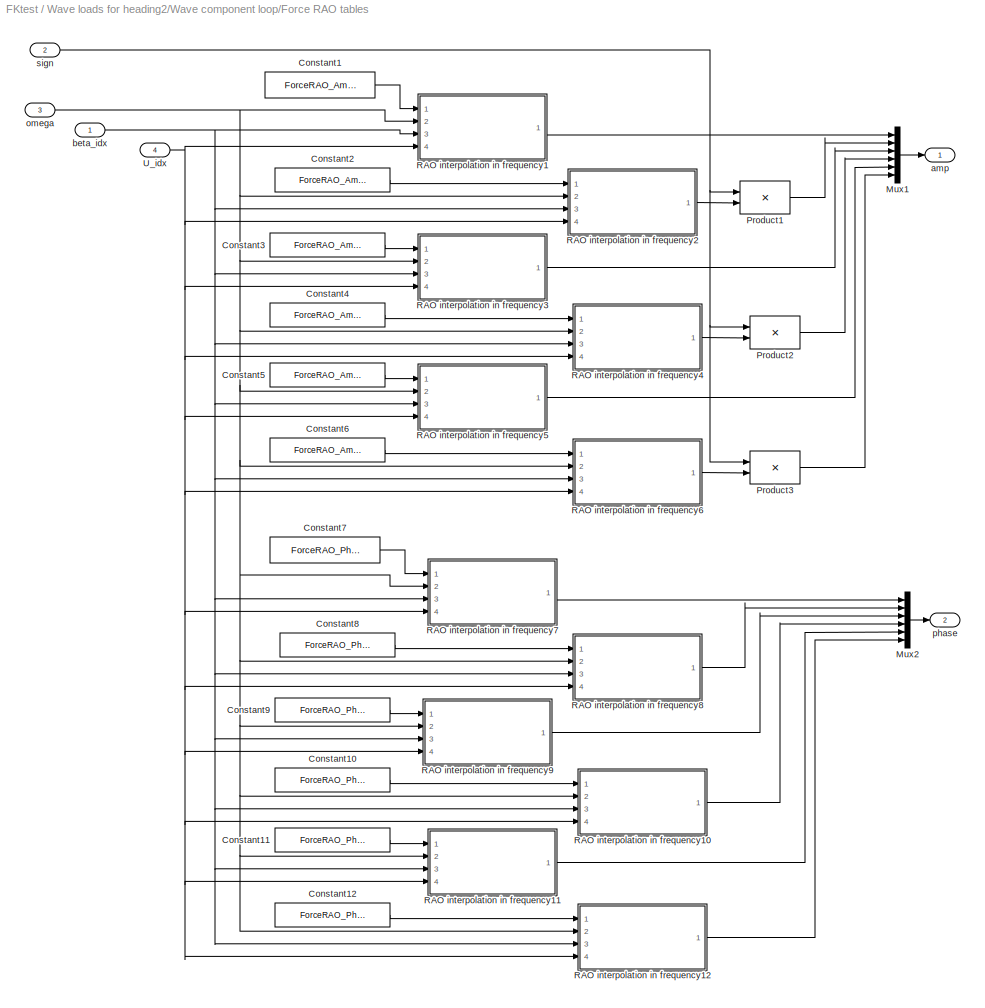
BLOCK [SubSystem] Wave loads for heading2/Wave component loop/Force RAO tables
  AncestorBlock = marine_gnc/Models/Environmental\nLoads/Utilities/RAO tables
  FunctionWithSeparateData = off
  MaskCallbackString = ||||
  MaskEnableString = on,on,on,on,on
  MaskHideContents = off
  MaskIconFrame = on
  MaskIconOpaque = on
  MaskIconRotate = none
  MaskIconUnits = autoscale
  MaskPromptString = Vector of frequencies (rad/s)|Vector of directions (rad)|Vector of velocities (m/s)|6DOF Cell array with tables of Amplitudes|6DOF Cell array with tables of Phases (rad)
  MaskStyleString = edit,edit,edit,edit,edit
  MaskTabNameString = ,,,,
  MaskToolTipString = on,on,on,on,on
  MaskTunableValueString = on,on,on,on,on
  MaskType = RAO table lookup
  MaskValueString = ForceRAO_Freq|RAO_Dir|RAO_Vel|ForceRAO_Amp|ForceRAO_Phase
  MaskVarAliasString = ,,,,
  MaskVariables = RAO_Freq=@1;RAO_Dir=@2;RAO_Vel=@3;RAO_Amp=@4;RAO_Phase=@5;
  MaskVisibilityString = on,on,on,on,on
  MinAlgLoopOccurrences = off
  Ports = [4, 2]
  RTWSystemCode = Auto
BLOCK [Constant] Wave loads for heading2/Wave component loop/Force RAO tables/Constant1
  Value = ForceRAO_Amp{1}
BLOCK [Constant] Wave loads for heading2/Wave component loop/Force RAO tables/Constant10
  Value = ForceRAO_Phase{4}
BLOCK [Constant] Wave loads for heading2/Wave component loop/Force RAO tables/Constant11
  Value = ForceRAO_Phase{5}
BLOCK [Constant] Wave loads for heading2/Wave component loop/Force RAO tables/Constant12
  Value = ForceRAO_Phase{6}
BLOCK [Constant] Wave loads for heading2/Wave component loop/Force RAO tables/Constant2
  Value = ForceRAO_Amp{2}
BLOCK [Constant] Wave loads for heading2/Wave component loop/Force RAO tables/Constant3
  Value = ForceRAO_Amp{3}
BLOCK [Constant] Wave loads for heading2/Wave component loop/Force RAO tables/Constant4
  Value = ForceRAO_Amp{4}
BLOCK [Constant] Wave loads for heading2/Wave component loop/Force RAO tables/Constant5
  Value = ForceRAO_Amp{5}
BLOCK [Constant] Wave loads for heading2/Wave component loop/Force RAO tables/Constant6
  Value = ForceRAO_Amp{6}
BLOCK [Constant] Wave loads for heading2/Wave component loop/Force RAO tables/Constant7
  Value = ForceRAO_Phase{1}
BLOCK [Constant] Wave loads for heading2/Wave component loop/Force RAO tables/Constant8
  Value = ForceRAO_Phase{2}
BLOCK [Constant] Wave loads for heading2/Wave component loop/Force RAO tables/Constant9
  Value = ForceRAO_Phase{3}
BLOCK [Mux] Wave loads for heading2/Wave component loop/Force RAO tables/Mux1
  DisplayOption = bar
  Inputs = 6
  Ports = [6, 1]
BLOCK [Mux] Wave loads for heading2/Wave component loop/Force RAO tables/Mux2
  DisplayOption = bar
  Inputs = 6
  Ports = [6, 1]
BLOCK [Product] Wave loads for heading2/Wave component loop/Force RAO tables/Product1
  CollapseMode = All dimensions
  InputSameDT = off
  Inputs = **
  Ports = [2, 1]
  RndMeth = Floor
BLOCK [Product] Wave loads for heading2/Wave component loop/Force RAO tables/Product2
  CollapseMode = All dimensions
  InputSameDT = off
  Inputs = **
  Ports = [2, 1]
  RndMeth = Floor
BLOCK [Product] Wave loads for heading2/Wave component loop/Force RAO tables/Product3
  CollapseMode = All dimensions
  InputSameDT = off
  Inputs = **
  Ports = [2, 1]
  RndMeth = Floor
BLOCK [SubSystem] Wave loads for heading2/Wave component loop/Force RAO tables/RAO interpolation in frequency1
  FunctionWithSeparateData = off
  MaskHideContents = off
  MinAlgLoopOccurrences = off
  Ports = [4, 1]
  RTWSystemCode = Auto
BLOCK [Demux] Wave loads for heading2/Wave component loop/Force RAO tables/RAO interpolation in frequency1/Demux
  DisplayOption = bar
  Outputs = 2
  Ports = [1, 2]
BLOCK [Mux] Wave loads for heading2/Wave component loop/Force RAO tables/RAO interpolation in frequency1/Mux
  DisplayOption = bar
  Inputs = 2
  Ports = [2, 1]
BLOCK [PreLookup] Wave loads for heading2/Wave component loop/Force RAO tables/RAO interpolation in frequency1/Prelookup1
  BeginIndexSearchUsingPreviousIndexResult = on
  BreakpointsData = vessel.forceRAO.w
  Ports = [1, 2]
  ProcessOutOfRangeInput = Linear extrapolation
BLOCK [Product] Wave loads for heading2/Wave component loop/Force RAO tables/RAO interpolation in frequency1/Product
  CollapseMode = All dimensions
  InputSameDT = off
  OutDataTypeMode = Inherit via internal rule
  Ports = [2, 1]
  SaturateOnIntegerOverflow = off
BLOCK [Selector] Wave loads for heading2/Wave component loop/Force RAO tables/RAO interpolation in frequency1/Selector1
  IndexOptions = Index vector (port),Index vector (port),Index vector (port)
  Indices = [1 3],1,1
  NumberOfDimensions = 3
  OutputSizes = 1,1,1
  Ports = [4, 1]
BLOCK [Sum] Wave loads for heading2/Wave component loop/Force RAO tables/RAO interpolation in frequency1/Sum1
  CollapseMode = All dimensions
  IconShape = round
  InputSameDT = off
  Inputs = ++|
  OutDataTypeMode = Inherit via internal rule
  Ports = [2, 1]
  SaturateOnIntegerOverflow = off
BLOCK [Sum] Wave loads for heading2/Wave component loop/Force RAO tables/RAO interpolation in frequency1/Sum2
  CollapseMode = All dimensions
  IconShape = round
  InputSameDT = off
  Inputs = ++|
  OutDataTypeMode = Inherit via internal rule
  Ports = [2, 1]
  SaturateOnIntegerOverflow = off
BLOCK [Sum] Wave loads for heading2/Wave component loop/Force RAO tables/RAO interpolation in frequency1/Sum3
  CollapseMode = All dimensions
  IconShape = round
  InputSameDT = off
  Inputs = -+|
  OutDataTypeMode = Inherit via internal rule
  Ports = [2, 1]
  SaturateOnIntegerOverflow = off
BLOCK [Sum] Wave loads for heading2/Wave component loop/Force RAO tables/RAO interpolation in frequency1/Sum4
  CollapseMode = All dimensions
  IconShape = round
  InputSameDT = off
  Inputs = ++|
  OutDataTypeMode = Inherit via internal rule
  Ports = [2, 1]
  SaturateOnIntegerOverflow = off
BLOCK [Inport] Wave loads for heading2/Wave component loop/Force RAO tables/RAO interpolation in frequency1/Table
  IconDisplay = Port number
BLOCK [Inport] Wave loads for heading2/Wave component loop/Force RAO tables/RAO interpolation in frequency1/U_idx
  IconDisplay = Port number
  Port = 4
BLOCK [Inport] Wave loads for heading2/Wave component loop/Force RAO tables/RAO interpolation in frequency1/beta_idx
  IconDisplay = Port number
  Port = 3
BLOCK [Inport] Wave loads for heading2/Wave component loop/Force RAO tables/RAO interpolation in frequency1/omega
  IconDisplay = Port number
  Port = 2
BLOCK [Constant] Wave loads for heading2/Wave component loop/Force RAO tables/RAO interpolation in frequency1/one
BLOCK [Outport] Wave loads for heading2/Wave component loop/Force RAO tables/RAO interpolation in frequency1/y
  BusOutputAsStruct = off
  IconDisplay = Port number
BLOCK [SubSystem] Wave loads for heading2/Wave component loop/Force RAO tables/RAO interpolation in frequency10
  FunctionWithSeparateData = off
  MaskHideContents = off
  MinAlgLoopOccurrences = off
  Ports = [4, 1]
  RTWSystemCode = Auto
BLOCK [Demux] Wave loads for heading2/Wave component loop/Force RAO tables/RAO interpolation in frequency10/Demux
  DisplayOption = bar
  Outputs = 2
  Ports = [1, 2]
BLOCK [Mux] Wave loads for heading2/Wave component loop/Force RAO tables/RAO interpolation in frequency10/Mux
  DisplayOption = bar
  Inputs = 2
  Ports = [2, 1]
BLOCK [PreLookup] Wave loads for heading2/Wave component loop/Force RAO tables/RAO interpolation in frequency10/Prelookup1
  BeginIndexSearchUsingPreviousIndexResult = on
  BreakpointsData = vessel.forceRAO.w
  Ports = [1, 2]
  ProcessOutOfRangeInput = Linear extrapolation
BLOCK [Product] Wave loads for heading2/Wave component loop/Force RAO tables/RAO interpolation in frequency10/Product
  CollapseMode = All dimensions
  InputSameDT = off
  OutDataTypeMode = Inherit via internal rule
  Ports = [2, 1]
  SaturateOnIntegerOverflow = off
BLOCK [Selector] Wave loads for heading2/Wave component loop/Force RAO tables/RAO interpolation in frequency10/Selector1
  IndexOptions = Index vector (port),Index vector (port),Index vector (port)
  Indices = [1 3],1,1
  NumberOfDimensions = 3
  OutputSizes = 1,1,1
  Ports = [4, 1]
BLOCK [Sum] Wave loads for heading2/Wave component loop/Force RAO tables/RAO interpolation in frequency10/Sum1
  CollapseMode = All dimensions
  IconShape = round
  InputSameDT = off
  Inputs = ++|
  OutDataTypeMode = Inherit via internal rule
  Ports = [2, 1]
  SaturateOnIntegerOverflow = off
BLOCK [Sum] Wave loads for heading2/Wave component loop/Force RAO tables/RAO interpolation in frequency10/Sum2
  CollapseMode = All dimensions
  IconShape = round
  InputSameDT = off
  Inputs = ++|
  OutDataTypeMode = Inherit via internal rule
  Ports = [2, 1]
  SaturateOnIntegerOverflow = off
BLOCK [Sum] Wave loads for heading2/Wave component loop/Force RAO tables/RAO interpolation in frequency10/Sum3
  CollapseMode = All dimensions
  IconShape = round
  InputSameDT = off
  Inputs = -+|
  OutDataTypeMode = Inherit via internal rule
  Ports = [2, 1]
  SaturateOnIntegerOverflow = off
BLOCK [Sum] Wave loads for heading2/Wave component loop/Force RAO tables/RAO interpolation in frequency10/Sum4
  CollapseMode = All dimensions
  IconShape = round
  InputSameDT = off
  Inputs = ++|
  OutDataTypeMode = Inherit via internal rule
  Ports = [2, 1]
  SaturateOnIntegerOverflow = off
BLOCK [Inport] Wave loads for heading2/Wave component loop/Force RAO tables/RAO interpolation in frequency10/Table
  IconDisplay = Port number
BLOCK [Inport] Wave loads for heading2/Wave component loop/Force RAO tables/RAO interpolation in frequency10/U_idx
  IconDisplay = Port number
  Port = 4
BLOCK [Inport] Wave loads for heading2/Wave component loop/Force RAO tables/RAO interpolation in frequency10/beta_idx
  IconDisplay = Port number
  Port = 3
BLOCK [Inport] Wave loads for heading2/Wave component loop/Force RAO tables/RAO interpolation in frequency10/omega
  IconDisplay = Port number
  Port = 2
BLOCK [Constant] Wave loads for heading2/Wave component loop/Force RAO tables/RAO interpolation in frequency10/one
BLOCK [Outport] Wave loads for heading2/Wave component loop/Force RAO tables/RAO interpolation in frequency10/y
  BusOutputAsStruct = off
  IconDisplay = Port number
BLOCK [SubSystem] Wave loads for heading2/Wave component loop/Force RAO tables/RAO interpolation in frequency11
  FunctionWithSeparateData = off
  MaskHideContents = off
  MinAlgLoopOccurrences = off
  Ports = [4, 1]
  RTWSystemCode = Auto
BLOCK [Demux] Wave loads for heading2/Wave component loop/Force RAO tables/RAO interpolation in frequency11/Demux
  DisplayOption = bar
  Outputs = 2
  Ports = [1, 2]
BLOCK [Mux] Wave loads for heading2/Wave component loop/Force RAO tables/RAO interpolation in frequency11/Mux
  DisplayOption = bar
  Inputs = 2
  Ports = [2, 1]
BLOCK [PreLookup] Wave loads for heading2/Wave component loop/Force RAO tables/RAO interpolation in frequency11/Prelookup1
  BeginIndexSearchUsingPreviousIndexResult = on
  BreakpointsData = vessel.forceRAO.w
  Ports = [1, 2]
  ProcessOutOfRangeInput = Linear extrapolation
BLOCK [Product] Wave loads for heading2/Wave component loop/Force RAO tables/RAO interpolation in frequency11/Product
  CollapseMode = All dimensions
  InputSameDT = off
  OutDataTypeMode = Inherit via internal rule
  Ports = [2, 1]
  SaturateOnIntegerOverflow = off
BLOCK [Selector] Wave loads for heading2/Wave component loop/Force RAO tables/RAO interpolation in frequency11/Selector1
  IndexOptions = Index vector (port),Index vector (port),Index vector (port)
  Indices = [1 3],1,1
  NumberOfDimensions = 3
  OutputSizes = 1,1,1
  Ports = [4, 1]
BLOCK [Sum] Wave loads for heading2/Wave component loop/Force RAO tables/RAO interpolation in frequency11/Sum1
  CollapseMode = All dimensions
  IconShape = round
  InputSameDT = off
  Inputs = ++|
  OutDataTypeMode = Inherit via internal rule
  Ports = [2, 1]
  SaturateOnIntegerOverflow = off
BLOCK [Sum] Wave loads for heading2/Wave component loop/Force RAO tables/RAO interpolation in frequency11/Sum2
  CollapseMode = All dimensions
  IconShape = round
  InputSameDT = off
  Inputs = ++|
  OutDataTypeMode = Inherit via internal rule
  Ports = [2, 1]
  SaturateOnIntegerOverflow = off
BLOCK [Sum] Wave loads for heading2/Wave component loop/Force RAO tables/RAO interpolation in frequency11/Sum3
  CollapseMode = All dimensions
  IconShape = round
  InputSameDT = off
  Inputs = -+|
  OutDataTypeMode = Inherit via internal rule
  Ports = [2, 1]
  SaturateOnIntegerOverflow = off
BLOCK [Sum] Wave loads for heading2/Wave component loop/Force RAO tables/RAO interpolation in frequency11/Sum4
  CollapseMode = All dimensions
  IconShape = round
  InputSameDT = off
  Inputs = ++|
  OutDataTypeMode = Inherit via internal rule
  Ports = [2, 1]
  SaturateOnIntegerOverflow = off
BLOCK [Inport] Wave loads for heading2/Wave component loop/Force RAO tables/RAO interpolation in frequency11/Table
  IconDisplay = Port number
BLOCK [Inport] Wave loads for heading2/Wave component loop/Force RAO tables/RAO interpolation in frequency11/U_idx
  IconDisplay = Port number
  Port = 4
BLOCK [Inport] Wave loads for heading2/Wave component loop/Force RAO tables/RAO interpolation in frequency11/beta_idx
  IconDisplay = Port number
  Port = 3
BLOCK [Inport] Wave loads for heading2/Wave component loop/Force RAO tables/RAO interpolation in frequency11/omega
  IconDisplay = Port number
  Port = 2
BLOCK [Constant] Wave loads for heading2/Wave component loop/Force RAO tables/RAO interpolation in frequency11/one
BLOCK [Outport] Wave loads for heading2/Wave component loop/Force RAO tables/RAO interpolation in frequency11/y
  BusOutputAsStruct = off
  IconDisplay = Port number
BLOCK [SubSystem] Wave loads for heading2/Wave component loop/Force RAO tables/RAO interpolation in frequency12
  FunctionWithSeparateData = off
  MaskHideContents = off
  MinAlgLoopOccurrences = off
  Ports = [4, 1]
  RTWSystemCode = Auto
BLOCK [Demux] Wave loads for heading2/Wave component loop/Force RAO tables/RAO interpolation in frequency12/Demux
  DisplayOption = bar
  Outputs = 2
  Ports = [1, 2]
BLOCK [Mux] Wave loads for heading2/Wave component loop/Force RAO tables/RAO interpolation in frequency12/Mux
  DisplayOption = bar
  Inputs = 2
  Ports = [2, 1]
BLOCK [PreLookup] Wave loads for heading2/Wave component loop/Force RAO tables/RAO interpolation in frequency12/Prelookup1
  BeginIndexSearchUsingPreviousIndexResult = on
  BreakpointsData = vessel.forceRAO.w
  Ports = [1, 2]
  ProcessOutOfRangeInput = Linear extrapolation
BLOCK [Product] Wave loads for heading2/Wave component loop/Force RAO tables/RAO interpolation in frequency12/Product
  CollapseMode = All dimensions
  InputSameDT = off
  OutDataTypeMode = Inherit via internal rule
  Ports = [2, 1]
  SaturateOnIntegerOverflow = off
BLOCK [Selector] Wave loads for heading2/Wave component loop/Force RAO tables/RAO interpolation in frequency12/Selector1
  IndexOptions = Index vector (port),Index vector (port),Index vector (port)
  Indices = [1 3],1,1
  NumberOfDimensions = 3
  OutputSizes = 1,1,1
  Ports = [4, 1]
BLOCK [Sum] Wave loads for heading2/Wave component loop/Force RAO tables/RAO interpolation in frequency12/Sum1
  CollapseMode = All dimensions
  IconShape = round
  InputSameDT = off
  Inputs = ++|
  OutDataTypeMode = Inherit via internal rule
  Ports = [2, 1]
  SaturateOnIntegerOverflow = off
BLOCK [Sum] Wave loads for heading2/Wave component loop/Force RAO tables/RAO interpolation in frequency12/Sum2
  CollapseMode = All dimensions
  IconShape = round
  InputSameDT = off
  Inputs = ++|
  OutDataTypeMode = Inherit via internal rule
  Ports = [2, 1]
  SaturateOnIntegerOverflow = off
BLOCK [Sum] Wave loads for heading2/Wave component loop/Force RAO tables/RAO interpolation in frequency12/Sum3
  CollapseMode = All dimensions
  IconShape = round
  InputSameDT = off
  Inputs = -+|
  OutDataTypeMode = Inherit via internal rule
  Ports = [2, 1]
  SaturateOnIntegerOverflow = off
BLOCK [Sum] Wave loads for heading2/Wave component loop/Force RAO tables/RAO interpolation in frequency12/Sum4
  CollapseMode = All dimensions
  IconShape = round
  InputSameDT = off
  Inputs = ++|
  OutDataTypeMode = Inherit via internal rule
  Ports = [2, 1]
  SaturateOnIntegerOverflow = off
BLOCK [Inport] Wave loads for heading2/Wave component loop/Force RAO tables/RAO interpolation in frequency12/Table
  IconDisplay = Port number
BLOCK [Inport] Wave loads for heading2/Wave component loop/Force RAO tables/RAO interpolation in frequency12/U_idx
  IconDisplay = Port number
  Port = 4
BLOCK [Inport] Wave loads for heading2/Wave component loop/Force RAO tables/RAO interpolation in frequency12/beta_idx
  IconDisplay = Port number
  Port = 3
BLOCK [Inport] Wave loads for heading2/Wave component loop/Force RAO tables/RAO interpolation in frequency12/omega
  IconDisplay = Port number
  Port = 2
BLOCK [Constant] Wave loads for heading2/Wave component loop/Force RAO tables/RAO interpolation in frequency12/one
BLOCK [Outport] Wave loads for heading2/Wave component loop/Force RAO tables/RAO interpolation in frequency12/y
  BusOutputAsStruct = off
  IconDisplay = Port number
BLOCK [SubSystem] Wave loads for heading2/Wave component loop/Force RAO tables/RAO interpolation in frequency2
  FunctionWithSeparateData = off
  MaskHideContents = off
  MinAlgLoopOccurrences = off
  Ports = [4, 1]
  RTWSystemCode = Auto
BLOCK [Demux] Wave loads for heading2/Wave component loop/Force RAO tables/RAO interpolation in frequency2/Demux
  DisplayOption = bar
  Outputs = 2
  Ports = [1, 2]
BLOCK [Mux] Wave loads for heading2/Wave component loop/Force RAO tables/RAO interpolation in frequency2/Mux
  DisplayOption = bar
  Inputs = 2
  Ports = [2, 1]
BLOCK [PreLookup] Wave loads for heading2/Wave component loop/Force RAO tables/RAO interpolation in frequency2/Prelookup1
  BeginIndexSearchUsingPreviousIndexResult = on
  BreakpointsData = vessel.forceRAO.w
  Ports = [1, 2]
  ProcessOutOfRangeInput = Linear extrapolation
BLOCK [Product] Wave loads for heading2/Wave component loop/Force RAO tables/RAO interpolation in frequency2/Product
  CollapseMode = All dimensions
  InputSameDT = off
  OutDataTypeMode = Inherit via internal rule
  Ports = [2, 1]
  SaturateOnIntegerOverflow = off
BLOCK [Selector] Wave loads for heading2/Wave component loop/Force RAO tables/RAO interpolation in frequency2/Selector1
  IndexOptions = Index vector (port),Index vector (port),Index vector (port)
  Indices = [1 3],1,1
  NumberOfDimensions = 3
  OutputSizes = 1,1,1
  Ports = [4, 1]
BLOCK [Sum] Wave loads for heading2/Wave component loop/Force RAO tables/RAO interpolation in frequency2/Sum1
  CollapseMode = All dimensions
  IconShape = round
  InputSameDT = off
  Inputs = ++|
  OutDataTypeMode = Inherit via internal rule
  Ports = [2, 1]
  SaturateOnIntegerOverflow = off
BLOCK [Sum] Wave loads for heading2/Wave component loop/Force RAO tables/RAO interpolation in frequency2/Sum2
  CollapseMode = All dimensions
  IconShape = round
  InputSameDT = off
  Inputs = ++|
  OutDataTypeMode = Inherit via internal rule
  Ports = [2, 1]
  SaturateOnIntegerOverflow = off
BLOCK [Sum] Wave loads for heading2/Wave component loop/Force RAO tables/RAO interpolation in frequency2/Sum3
  CollapseMode = All dimensions
  IconShape = round
  InputSameDT = off
  Inputs = -+|
  OutDataTypeMode = Inherit via internal rule
  Ports = [2, 1]
  SaturateOnIntegerOverflow = off
BLOCK [Sum] Wave loads for heading2/Wave component loop/Force RAO tables/RAO interpolation in frequency2/Sum4
  CollapseMode = All dimensions
  IconShape = round
  InputSameDT = off
  Inputs = ++|
  OutDataTypeMode = Inherit via internal rule
  Ports = [2, 1]
  SaturateOnIntegerOverflow = off
BLOCK [Inport] Wave loads for heading2/Wave component loop/Force RAO tables/RAO interpolation in frequency2/Table
  IconDisplay = Port number
BLOCK [Inport] Wave loads for heading2/Wave component loop/Force RAO tables/RAO interpolation in frequency2/U_idx
  IconDisplay = Port number
  Port = 4
BLOCK [Inport] Wave loads for heading2/Wave component loop/Force RAO tables/RAO interpolation in frequency2/beta_idx
  IconDisplay = Port number
  Port = 3
BLOCK [Inport] Wave loads for heading2/Wave component loop/Force RAO tables/RAO interpolation in frequency2/omega
  IconDisplay = Port number
  Port = 2
BLOCK [Constant] Wave loads for heading2/Wave component loop/Force RAO tables/RAO interpolation in frequency2/one
BLOCK [Outport] Wave loads for heading2/Wave component loop/Force RAO tables/RAO interpolation in frequency2/y
  BusOutputAsStruct = off
  IconDisplay = Port number
BLOCK [SubSystem] Wave loads for heading2/Wave component loop/Force RAO tables/RAO interpolation in frequency3
  FunctionWithSeparateData = off
  MaskHideContents = off
  MinAlgLoopOccurrences = off
  Ports = [4, 1]
  RTWSystemCode = Auto
BLOCK [Demux] Wave loads for heading2/Wave component loop/Force RAO tables/RAO interpolation in frequency3/Demux
  DisplayOption = bar
  Outputs = 2
  Ports = [1, 2]
BLOCK [Mux] Wave loads for heading2/Wave component loop/Force RAO tables/RAO interpolation in frequency3/Mux
  DisplayOption = bar
  Inputs = 2
  Ports = [2, 1]
BLOCK [PreLookup] Wave loads for heading2/Wave component loop/Force RAO tables/RAO interpolation in frequency3/Prelookup1
  BeginIndexSearchUsingPreviousIndexResult = on
  BreakpointsData = vessel.forceRAO.w
  Ports = [1, 2]
  ProcessOutOfRangeInput = Linear extrapolation
BLOCK [Product] Wave loads for heading2/Wave component loop/Force RAO tables/RAO interpolation in frequency3/Product
  CollapseMode = All dimensions
  InputSameDT = off
  OutDataTypeMode = Inherit via internal rule
  Ports = [2, 1]
  SaturateOnIntegerOverflow = off
BLOCK [Selector] Wave loads for heading2/Wave component loop/Force RAO tables/RAO interpolation in frequency3/Selector1
  IndexOptions = Index vector (port),Index vector (port),Index vector (port)
  Indices = [1 3],1,1
  NumberOfDimensions = 3
  OutputSizes = 1,1,1
  Ports = [4, 1]
BLOCK [Sum] Wave loads for heading2/Wave component loop/Force RAO tables/RAO interpolation in frequency3/Sum1
  CollapseMode = All dimensions
  IconShape = round
  InputSameDT = off
  Inputs = ++|
  OutDataTypeMode = Inherit via internal rule
  Ports = [2, 1]
  SaturateOnIntegerOverflow = off
BLOCK [Sum] Wave loads for heading2/Wave component loop/Force RAO tables/RAO interpolation in frequency3/Sum2
  CollapseMode = All dimensions
  IconShape = round
  InputSameDT = off
  Inputs = ++|
  OutDataTypeMode = Inherit via internal rule
  Ports = [2, 1]
  SaturateOnIntegerOverflow = off
BLOCK [Sum] Wave loads for heading2/Wave component loop/Force RAO tables/RAO interpolation in frequency3/Sum3
  CollapseMode = All dimensions
  IconShape = round
  InputSameDT = off
  Inputs = -+|
  OutDataTypeMode = Inherit via internal rule
  Ports = [2, 1]
  SaturateOnIntegerOverflow = off
BLOCK [Sum] Wave loads for heading2/Wave component loop/Force RAO tables/RAO interpolation in frequency3/Sum4
  CollapseMode = All dimensions
  IconShape = round
  InputSameDT = off
  Inputs = ++|
  OutDataTypeMode = Inherit via internal rule
  Ports = [2, 1]
  SaturateOnIntegerOverflow = off
BLOCK [Inport] Wave loads for heading2/Wave component loop/Force RAO tables/RAO interpolation in frequency3/Table
  IconDisplay = Port number
BLOCK [Inport] Wave loads for heading2/Wave component loop/Force RAO tables/RAO interpolation in frequency3/U_idx
  IconDisplay = Port number
  Port = 4
BLOCK [Inport] Wave loads for heading2/Wave component loop/Force RAO tables/RAO interpolation in frequency3/beta_idx
  IconDisplay = Port number
  Port = 3
BLOCK [Inport] Wave loads for heading2/Wave component loop/Force RAO tables/RAO interpolation in frequency3/omega
  IconDisplay = Port number
  Port = 2
BLOCK [Constant] Wave loads for heading2/Wave component loop/Force RAO tables/RAO interpolation in frequency3/one
BLOCK [Outport] Wave loads for heading2/Wave component loop/Force RAO tables/RAO interpolation in frequency3/y
  BusOutputAsStruct = off
  IconDisplay = Port number
BLOCK [SubSystem] Wave loads for heading2/Wave component loop/Force RAO tables/RAO interpolation in frequency4
  FunctionWithSeparateData = off
  MaskHideContents = off
  MinAlgLoopOccurrences = off
  Ports = [4, 1]
  RTWSystemCode = Auto
BLOCK [Demux] Wave loads for heading2/Wave component loop/Force RAO tables/RAO interpolation in frequency4/Demux
  DisplayOption = bar
  Outputs = 2
  Ports = [1, 2]
BLOCK [Mux] Wave loads for heading2/Wave component loop/Force RAO tables/RAO interpolation in frequency4/Mux
  DisplayOption = bar
  Inputs = 2
  Ports = [2, 1]
BLOCK [PreLookup] Wave loads for heading2/Wave component loop/Force RAO tables/RAO interpolation in frequency4/Prelookup1
  BeginIndexSearchUsingPreviousIndexResult = on
  BreakpointsData = vessel.forceRAO.w
  Ports = [1, 2]
  ProcessOutOfRangeInput = Linear extrapolation
BLOCK [Product] Wave loads for heading2/Wave component loop/Force RAO tables/RAO interpolation in frequency4/Product
  CollapseMode = All dimensions
  InputSameDT = off
  OutDataTypeMode = Inherit via internal rule
  Ports = [2, 1]
  SaturateOnIntegerOverflow = off
BLOCK [Selector] Wave loads for heading2/Wave component loop/Force RAO tables/RAO interpolation in frequency4/Selector1
  IndexOptions = Index vector (port),Index vector (port),Index vector (port)
  Indices = [1 3],1,1
  NumberOfDimensions = 3
  OutputSizes = 1,1,1
  Ports = [4, 1]
BLOCK [Sum] Wave loads for heading2/Wave component loop/Force RAO tables/RAO interpolation in frequency4/Sum1
  CollapseMode = All dimensions
  IconShape = round
  InputSameDT = off
  Inputs = ++|
  OutDataTypeMode = Inherit via internal rule
  Ports = [2, 1]
  SaturateOnIntegerOverflow = off
BLOCK [Sum] Wave loads for heading2/Wave component loop/Force RAO tables/RAO interpolation in frequency4/Sum2
  CollapseMode = All dimensions
  IconShape = round
  InputSameDT = off
  Inputs = ++|
  OutDataTypeMode = Inherit via internal rule
  Ports = [2, 1]
  SaturateOnIntegerOverflow = off
BLOCK [Sum] Wave loads for heading2/Wave component loop/Force RAO tables/RAO interpolation in frequency4/Sum3
  CollapseMode = All dimensions
  IconShape = round
  InputSameDT = off
  Inputs = -+|
  OutDataTypeMode = Inherit via internal rule
  Ports = [2, 1]
  SaturateOnIntegerOverflow = off
BLOCK [Sum] Wave loads for heading2/Wave component loop/Force RAO tables/RAO interpolation in frequency4/Sum4
  CollapseMode = All dimensions
  IconShape = round
  InputSameDT = off
  Inputs = ++|
  OutDataTypeMode = Inherit via internal rule
  Ports = [2, 1]
  SaturateOnIntegerOverflow = off
BLOCK [Inport] Wave loads for heading2/Wave component loop/Force RAO tables/RAO interpolation in frequency4/Table
  IconDisplay = Port number
BLOCK [Inport] Wave loads for heading2/Wave component loop/Force RAO tables/RAO interpolation in frequency4/U_idx
  IconDisplay = Port number
  Port = 4
BLOCK [Inport] Wave loads for heading2/Wave component loop/Force RAO tables/RAO interpolation in frequency4/beta_idx
  IconDisplay = Port number
  Port = 3
BLOCK [Inport] Wave loads for heading2/Wave component loop/Force RAO tables/RAO interpolation in frequency4/omega
  IconDisplay = Port number
  Port = 2
BLOCK [Constant] Wave loads for heading2/Wave component loop/Force RAO tables/RAO interpolation in frequency4/one
BLOCK [Outport] Wave loads for heading2/Wave component loop/Force RAO tables/RAO interpolation in frequency4/y
  BusOutputAsStruct = off
  IconDisplay = Port number
BLOCK [SubSystem] Wave loads for heading2/Wave component loop/Force RAO tables/RAO interpolation in frequency5
  FunctionWithSeparateData = off
  MaskHideContents = off
  MinAlgLoopOccurrences = off
  Ports = [4, 1]
  RTWSystemCode = Auto
BLOCK [Demux] Wave loads for heading2/Wave component loop/Force RAO tables/RAO interpolation in frequency5/Demux
  DisplayOption = bar
  Outputs = 2
  Ports = [1, 2]
BLOCK [Mux] Wave loads for heading2/Wave component loop/Force RAO tables/RAO interpolation in frequency5/Mux
  DisplayOption = bar
  Inputs = 2
  Ports = [2, 1]
BLOCK [PreLookup] Wave loads for heading2/Wave component loop/Force RAO tables/RAO interpolation in frequency5/Prelookup1
  BeginIndexSearchUsingPreviousIndexResult = on
  BreakpointsData = vessel.forceRAO.w
  Ports = [1, 2]
  ProcessOutOfRangeInput = Linear extrapolation
BLOCK [Product] Wave loads for heading2/Wave component loop/Force RAO tables/RAO interpolation in frequency5/Product
  CollapseMode = All dimensions
  InputSameDT = off
  OutDataTypeMode = Inherit via internal rule
  Ports = [2, 1]
  SaturateOnIntegerOverflow = off
BLOCK [Selector] Wave loads for heading2/Wave component loop/Force RAO tables/RAO interpolation in frequency5/Selector1
  IndexOptions = Index vector (port),Index vector (port),Index vector (port)
  Indices = [1 3],1,1
  NumberOfDimensions = 3
  OutputSizes = 1,1,1
  Ports = [4, 1]
BLOCK [Sum] Wave loads for heading2/Wave component loop/Force RAO tables/RAO interpolation in frequency5/Sum1
  CollapseMode = All dimensions
  IconShape = round
  InputSameDT = off
  Inputs = ++|
  OutDataTypeMode = Inherit via internal rule
  Ports = [2, 1]
  SaturateOnIntegerOverflow = off
BLOCK [Sum] Wave loads for heading2/Wave component loop/Force RAO tables/RAO interpolation in frequency5/Sum2
  CollapseMode = All dimensions
  IconShape = round
  InputSameDT = off
  Inputs = ++|
  OutDataTypeMode = Inherit via internal rule
  Ports = [2, 1]
  SaturateOnIntegerOverflow = off
BLOCK [Sum] Wave loads for heading2/Wave component loop/Force RAO tables/RAO interpolation in frequency5/Sum3
  CollapseMode = All dimensions
  IconShape = round
  InputSameDT = off
  Inputs = -+|
  OutDataTypeMode = Inherit via internal rule
  Ports = [2, 1]
  SaturateOnIntegerOverflow = off
BLOCK [Sum] Wave loads for heading2/Wave component loop/Force RAO tables/RAO interpolation in frequency5/Sum4
  CollapseMode = All dimensions
  IconShape = round
  InputSameDT = off
  Inputs = ++|
  OutDataTypeMode = Inherit via internal rule
  Ports = [2, 1]
  SaturateOnIntegerOverflow = off
BLOCK [Inport] Wave loads for heading2/Wave component loop/Force RAO tables/RAO interpolation in frequency5/Table
  IconDisplay = Port number
BLOCK [Inport] Wave loads for heading2/Wave component loop/Force RAO tables/RAO interpolation in frequency5/U_idx
  IconDisplay = Port number
  Port = 4
BLOCK [Inport] Wave loads for heading2/Wave component loop/Force RAO tables/RAO interpolation in frequency5/beta_idx
  IconDisplay = Port number
  Port = 3
BLOCK [Inport] Wave loads for heading2/Wave component loop/Force RAO tables/RAO interpolation in frequency5/omega
  IconDisplay = Port number
  Port = 2
BLOCK [Constant] Wave loads for heading2/Wave component loop/Force RAO tables/RAO interpolation in frequency5/one
BLOCK [Outport] Wave loads for heading2/Wave component loop/Force RAO tables/RAO interpolation in frequency5/y
  BusOutputAsStruct = off
  IconDisplay = Port number
BLOCK [SubSystem] Wave loads for heading2/Wave component loop/Force RAO tables/RAO interpolation in frequency6
  FunctionWithSeparateData = off
  MaskHideContents = off
  MinAlgLoopOccurrences = off
  Ports = [4, 1]
  RTWSystemCode = Auto
BLOCK [Demux] Wave loads for heading2/Wave component loop/Force RAO tables/RAO interpolation in frequency6/Demux
  DisplayOption = bar
  Outputs = 2
  Ports = [1, 2]
BLOCK [Mux] Wave loads for heading2/Wave component loop/Force RAO tables/RAO interpolation in frequency6/Mux
  DisplayOption = bar
  Inputs = 2
  Ports = [2, 1]
BLOCK [PreLookup] Wave loads for heading2/Wave component loop/Force RAO tables/RAO interpolation in frequency6/Prelookup1
  BeginIndexSearchUsingPreviousIndexResult = on
  BreakpointsData = vessel.forceRAO.w
  Ports = [1, 2]
  ProcessOutOfRangeInput = Linear extrapolation
BLOCK [Product] Wave loads for heading2/Wave component loop/Force RAO tables/RAO interpolation in frequency6/Product
  CollapseMode = All dimensions
  InputSameDT = off
  OutDataTypeMode = Inherit via internal rule
  Ports = [2, 1]
  SaturateOnIntegerOverflow = off
BLOCK [Selector] Wave loads for heading2/Wave component loop/Force RAO tables/RAO interpolation in frequency6/Selector1
  IndexOptions = Index vector (port),Index vector (port),Index vector (port)
  Indices = [1 3],1,1
  NumberOfDimensions = 3
  OutputSizes = 1,1,1
  Ports = [4, 1]
BLOCK [Sum] Wave loads for heading2/Wave component loop/Force RAO tables/RAO interpolation in frequency6/Sum1
  CollapseMode = All dimensions
  IconShape = round
  InputSameDT = off
  Inputs = ++|
  OutDataTypeMode = Inherit via internal rule
  Ports = [2, 1]
  SaturateOnIntegerOverflow = off
BLOCK [Sum] Wave loads for heading2/Wave component loop/Force RAO tables/RAO interpolation in frequency6/Sum2
  CollapseMode = All dimensions
  IconShape = round
  InputSameDT = off
  Inputs = ++|
  OutDataTypeMode = Inherit via internal rule
  Ports = [2, 1]
  SaturateOnIntegerOverflow = off
BLOCK [Sum] Wave loads for heading2/Wave component loop/Force RAO tables/RAO interpolation in frequency6/Sum3
  CollapseMode = All dimensions
  IconShape = round
  InputSameDT = off
  Inputs = -+|
  OutDataTypeMode = Inherit via internal rule
  Ports = [2, 1]
  SaturateOnIntegerOverflow = off
BLOCK [Sum] Wave loads for heading2/Wave component loop/Force RAO tables/RAO interpolation in frequency6/Sum4
  CollapseMode = All dimensions
  IconShape = round
  InputSameDT = off
  Inputs = ++|
  OutDataTypeMode = Inherit via internal rule
  Ports = [2, 1]
  SaturateOnIntegerOverflow = off
BLOCK [Inport] Wave loads for heading2/Wave component loop/Force RAO tables/RAO interpolation in frequency6/Table
  IconDisplay = Port number
BLOCK [Inport] Wave loads for heading2/Wave component loop/Force RAO tables/RAO interpolation in frequency6/U_idx
  IconDisplay = Port number
  Port = 4
BLOCK [Inport] Wave loads for heading2/Wave component loop/Force RAO tables/RAO interpolation in frequency6/beta_idx
  IconDisplay = Port number
  Port = 3
BLOCK [Inport] Wave loads for heading2/Wave component loop/Force RAO tables/RAO interpolation in frequency6/omega
  IconDisplay = Port number
  Port = 2
BLOCK [Constant] Wave loads for heading2/Wave component loop/Force RAO tables/RAO interpolation in frequency6/one
BLOCK [Outport] Wave loads for heading2/Wave component loop/Force RAO tables/RAO interpolation in frequency6/y
  BusOutputAsStruct = off
  IconDisplay = Port number
BLOCK [SubSystem] Wave loads for heading2/Wave component loop/Force RAO tables/RAO interpolation in frequency7
  FunctionWithSeparateData = off
  MaskHideContents = off
  MinAlgLoopOccurrences = off
  Ports = [4, 1]
  RTWSystemCode = Auto
BLOCK [Demux] Wave loads for heading2/Wave component loop/Force RAO tables/RAO interpolation in frequency7/Demux
  DisplayOption = bar
  Outputs = 2
  Ports = [1, 2]
BLOCK [Mux] Wave loads for heading2/Wave component loop/Force RAO tables/RAO interpolation in frequency7/Mux
  DisplayOption = bar
  Inputs = 2
  Ports = [2, 1]
BLOCK [PreLookup] Wave loads for heading2/Wave component loop/Force RAO tables/RAO interpolation in frequency7/Prelookup1
  BeginIndexSearchUsingPreviousIndexResult = on
  BreakpointsData = vessel.forceRAO.w
  Ports = [1, 2]
  ProcessOutOfRangeInput = Linear extrapolation
BLOCK [Product] Wave loads for heading2/Wave component loop/Force RAO tables/RAO interpolation in frequency7/Product
  CollapseMode = All dimensions
  InputSameDT = off
  OutDataTypeMode = Inherit via internal rule
  Ports = [2, 1]
  SaturateOnIntegerOverflow = off
BLOCK [Selector] Wave loads for heading2/Wave component loop/Force RAO tables/RAO interpolation in frequency7/Selector1
  IndexOptions = Index vector (port),Index vector (port),Index vector (port)
  Indices = [1 3],1,1
  NumberOfDimensions = 3
  OutputSizes = 1,1,1
  Ports = [4, 1]
BLOCK [Sum] Wave loads for heading2/Wave component loop/Force RAO tables/RAO interpolation in frequency7/Sum1
  CollapseMode = All dimensions
  IconShape = round
  InputSameDT = off
  Inputs = ++|
  OutDataTypeMode = Inherit via internal rule
  Ports = [2, 1]
  SaturateOnIntegerOverflow = off
BLOCK [Sum] Wave loads for heading2/Wave component loop/Force RAO tables/RAO interpolation in frequency7/Sum2
  CollapseMode = All dimensions
  IconShape = round
  InputSameDT = off
  Inputs = ++|
  OutDataTypeMode = Inherit via internal rule
  Ports = [2, 1]
  SaturateOnIntegerOverflow = off
BLOCK [Sum] Wave loads for heading2/Wave component loop/Force RAO tables/RAO interpolation in frequency7/Sum3
  CollapseMode = All dimensions
  IconShape = round
  InputSameDT = off
  Inputs = -+|
  OutDataTypeMode = Inherit via internal rule
  Ports = [2, 1]
  SaturateOnIntegerOverflow = off
BLOCK [Sum] Wave loads for heading2/Wave component loop/Force RAO tables/RAO interpolation in frequency7/Sum4
  CollapseMode = All dimensions
  IconShape = round
  InputSameDT = off
  Inputs = ++|
  OutDataTypeMode = Inherit via internal rule
  Ports = [2, 1]
  SaturateOnIntegerOverflow = off
BLOCK [Inport] Wave loads for heading2/Wave component loop/Force RAO tables/RAO interpolation in frequency7/Table
  IconDisplay = Port number
BLOCK [Inport] Wave loads for heading2/Wave component loop/Force RAO tables/RAO interpolation in frequency7/U_idx
  IconDisplay = Port number
  Port = 4
BLOCK [Inport] Wave loads for heading2/Wave component loop/Force RAO tables/RAO interpolation in frequency7/beta_idx
  IconDisplay = Port number
  Port = 3
BLOCK [Inport] Wave loads for heading2/Wave component loop/Force RAO tables/RAO interpolation in frequency7/omega
  IconDisplay = Port number
  Port = 2
BLOCK [Constant] Wave loads for heading2/Wave component loop/Force RAO tables/RAO interpolation in frequency7/one
BLOCK [Outport] Wave loads for heading2/Wave component loop/Force RAO tables/RAO interpolation in frequency7/y
  BusOutputAsStruct = off
  IconDisplay = Port number
BLOCK [SubSystem] Wave loads for heading2/Wave component loop/Force RAO tables/RAO interpolation in frequency8
  FunctionWithSeparateData = off
  MaskHideContents = off
  MinAlgLoopOccurrences = off
  Ports = [4, 1]
  RTWSystemCode = Auto
BLOCK [Demux] Wave loads for heading2/Wave component loop/Force RAO tables/RAO interpolation in frequency8/Demux
  DisplayOption = bar
  Outputs = 2
  Ports = [1, 2]
BLOCK [Mux] Wave loads for heading2/Wave component loop/Force RAO tables/RAO interpolation in frequency8/Mux
  DisplayOption = bar
  Inputs = 2
  Ports = [2, 1]
BLOCK [PreLookup] Wave loads for heading2/Wave component loop/Force RAO tables/RAO interpolation in frequency8/Prelookup1
  BeginIndexSearchUsingPreviousIndexResult = on
  BreakpointsData = vessel.forceRAO.w
  Ports = [1, 2]
  ProcessOutOfRangeInput = Linear extrapolation
BLOCK [Product] Wave loads for heading2/Wave component loop/Force RAO tables/RAO interpolation in frequency8/Product
  CollapseMode = All dimensions
  InputSameDT = off
  OutDataTypeMode = Inherit via internal rule
  Ports = [2, 1]
  SaturateOnIntegerOverflow = off
BLOCK [Selector] Wave loads for heading2/Wave component loop/Force RAO tables/RAO interpolation in frequency8/Selector1
  IndexOptions = Index vector (port),Index vector (port),Index vector (port)
  Indices = [1 3],1,1
  NumberOfDimensions = 3
  OutputSizes = 1,1,1
  Ports = [4, 1]
BLOCK [Sum] Wave loads for heading2/Wave component loop/Force RAO tables/RAO interpolation in frequency8/Sum1
  CollapseMode = All dimensions
  IconShape = round
  InputSameDT = off
  Inputs = ++|
  OutDataTypeMode = Inherit via internal rule
  Ports = [2, 1]
  SaturateOnIntegerOverflow = off
BLOCK [Sum] Wave loads for heading2/Wave component loop/Force RAO tables/RAO interpolation in frequency8/Sum2
  CollapseMode = All dimensions
  IconShape = round
  InputSameDT = off
  Inputs = ++|
  OutDataTypeMode = Inherit via internal rule
  Ports = [2, 1]
  SaturateOnIntegerOverflow = off
BLOCK [Sum] Wave loads for heading2/Wave component loop/Force RAO tables/RAO interpolation in frequency8/Sum3
  CollapseMode = All dimensions
  IconShape = round
  InputSameDT = off
  Inputs = -+|
  OutDataTypeMode = Inherit via internal rule
  Ports = [2, 1]
  SaturateOnIntegerOverflow = off
BLOCK [Sum] Wave loads for heading2/Wave component loop/Force RAO tables/RAO interpolation in frequency8/Sum4
  CollapseMode = All dimensions
  IconShape = round
  InputSameDT = off
  Inputs = ++|
  OutDataTypeMode = Inherit via internal rule
  Ports = [2, 1]
  SaturateOnIntegerOverflow = off
BLOCK [Inport] Wave loads for heading2/Wave component loop/Force RAO tables/RAO interpolation in frequency8/Table
  IconDisplay = Port number
BLOCK [Inport] Wave loads for heading2/Wave component loop/Force RAO tables/RAO interpolation in frequency8/U_idx
  IconDisplay = Port number
  Port = 4
BLOCK [Inport] Wave loads for heading2/Wave component loop/Force RAO tables/RAO interpolation in frequency8/beta_idx
  IconDisplay = Port number
  Port = 3
BLOCK [Inport] Wave loads for heading2/Wave component loop/Force RAO tables/RAO interpolation in frequency8/omega
  IconDisplay = Port number
  Port = 2
BLOCK [Constant] Wave loads for heading2/Wave component loop/Force RAO tables/RAO interpolation in frequency8/one
BLOCK [Outport] Wave loads for heading2/Wave component loop/Force RAO tables/RAO interpolation in frequency8/y
  BusOutputAsStruct = off
  IconDisplay = Port number
BLOCK [SubSystem] Wave loads for heading2/Wave component loop/Force RAO tables/RAO interpolation in frequency9
  FunctionWithSeparateData = off
  MaskHideContents = off
  MinAlgLoopOccurrences = off
  Ports = [4, 1]
  RTWSystemCode = Auto
BLOCK [Demux] Wave loads for heading2/Wave component loop/Force RAO tables/RAO interpolation in frequency9/Demux
  DisplayOption = bar
  Outputs = 2
  Ports = [1, 2]
BLOCK [Mux] Wave loads for heading2/Wave component loop/Force RAO tables/RAO interpolation in frequency9/Mux
  DisplayOption = bar
  Inputs = 2
  Ports = [2, 1]
BLOCK [PreLookup] Wave loads for heading2/Wave component loop/Force RAO tables/RAO interpolation in frequency9/Prelookup1
  BeginIndexSearchUsingPreviousIndexResult = on
  BreakpointsData = vessel.forceRAO.w
  Ports = [1, 2]
  ProcessOutOfRangeInput = Linear extrapolation
BLOCK [Product] Wave loads for heading2/Wave component loop/Force RAO tables/RAO interpolation in frequency9/Product
  CollapseMode = All dimensions
  InputSameDT = off
  OutDataTypeMode = Inherit via internal rule
  Ports = [2, 1]
  SaturateOnIntegerOverflow = off
BLOCK [Selector] Wave loads for heading2/Wave component loop/Force RAO tables/RAO interpolation in frequency9/Selector1
  IndexOptions = Index vector (port),Index vector (port),Index vector (port)
  Indices = [1 3],1,1
  NumberOfDimensions = 3
  OutputSizes = 1,1,1
  Ports = [4, 1]
BLOCK [Sum] Wave loads for heading2/Wave component loop/Force RAO tables/RAO interpolation in frequency9/Sum1
  CollapseMode = All dimensions
  IconShape = round
  InputSameDT = off
  Inputs = ++|
  OutDataTypeMode = Inherit via internal rule
  Ports = [2, 1]
  SaturateOnIntegerOverflow = off
BLOCK [Sum] Wave loads for heading2/Wave component loop/Force RAO tables/RAO interpolation in frequency9/Sum2
  CollapseMode = All dimensions
  IconShape = round
  InputSameDT = off
  Inputs = ++|
  OutDataTypeMode = Inherit via internal rule
  Ports = [2, 1]
  SaturateOnIntegerOverflow = off
BLOCK [Sum] Wave loads for heading2/Wave component loop/Force RAO tables/RAO interpolation in frequency9/Sum3
  CollapseMode = All dimensions
  IconShape = round
  InputSameDT = off
  Inputs = -+|
  OutDataTypeMode = Inherit via internal rule
  Ports = [2, 1]
  SaturateOnIntegerOverflow = off
BLOCK [Sum] Wave loads for heading2/Wave component loop/Force RAO tables/RAO interpolation in frequency9/Sum4
  CollapseMode = All dimensions
  IconShape = round
  InputSameDT = off
  Inputs = ++|
  OutDataTypeMode = Inherit via internal rule
  Ports = [2, 1]
  SaturateOnIntegerOverflow = off
BLOCK [Inport] Wave loads for heading2/Wave component loop/Force RAO tables/RAO interpolation in frequency9/Table
  IconDisplay = Port number
BLOCK [Inport] Wave loads for heading2/Wave component loop/Force RAO tables/RAO interpolation in frequency9/U_idx
  IconDisplay = Port number
  Port = 4
BLOCK [Inport] Wave loads for heading2/Wave component loop/Force RAO tables/RAO interpolation in frequency9/beta_idx
  IconDisplay = Port number
  Port = 3
BLOCK [Inport] Wave loads for heading2/Wave component loop/Force RAO tables/RAO interpolation in frequency9/omega
  IconDisplay = Port number
  Port = 2
BLOCK [Constant] Wave loads for heading2/Wave component loop/Force RAO tables/RAO interpolation in frequency9/one
BLOCK [Outport] Wave loads for heading2/Wave component loop/Force RAO tables/RAO interpolation in frequency9/y
  BusOutputAsStruct = off
  IconDisplay = Port number
BLOCK [Inport] Wave loads for heading2/Wave component loop/Force RAO tables/U_idx
  IconDisplay = Port number
  Port = 4
BLOCK [Outport] Wave loads for heading2/Wave component loop/Force RAO tables/amp
  BusOutputAsStruct = off
  IconDisplay = Port number
BLOCK [Inport] Wave loads for heading2/Wave component loop/Force RAO tables/beta_idx
  IconDisplay = Port number
BLOCK [Inport] Wave loads for heading2/Wave component loop/Force RAO tables/omega
  IconDisplay = Port number
  Port = 3
BLOCK [Outport] Wave loads for heading2/Wave component loop/Force RAO tables/phase
  BusOutputAsStruct = off
  IconDisplay = Port number
  Port = 2
BLOCK [Inport] Wave loads for heading2/Wave component loop/Force RAO tables/sign
  IconDisplay = Port number
  Port = 2
BLOCK [Memory] Wave loads for heading2/Wave component loop/Memory1
  InheritSampleTime = on
  X0 = [0 0 0 0 0 0]'
BLOCK [Memory] Wave loads for heading2/Wave component loop/Memory2
  InheritSampleTime = on
  X0 = [0 0 0 0 0 0]'
BLOCK [Inport] Wave loads for heading2/Wave component loop/Omega
  IconDisplay = Port number
  Port = 3
BLOCK [Inport] Wave loads for heading2/Wave component loop/Phase_tot
  IconDisplay = Port number
  Port = 4
BLOCK [PreLookup] Wave loads for heading2/Wave component loop/Prelookup
  BeginIndexSearchUsingPreviousIndexResult = on
  BreakpointsData = vessel.headings
  OutputOnlyTheIndex = on
  Ports = [1, 1]
BLOCK [Product] Wave loads for heading2/Wave component loop/Product1
  CollapseMode = All dimensions
  InputSameDT = off
  Ports = [2, 1]
  RndMeth = Floor
BLOCK [Product] Wave loads for heading2/Wave component loop/Product3
  CollapseMode = All dimensions
  InputSameDT = off
  Inputs = 3
  Ports = [3, 1]
  RndMeth = Floor
BLOCK [Product] Wave loads for heading2/Wave component loop/Product4
  CollapseMode = All dimensions
  InputSameDT = off
  Ports = [2, 1]
  RndMeth = Floor
BLOCK [Inport] Wave loads for heading2/Wave component loop/Psi_r
  IconDisplay = Port number
  Port = 2
BLOCK [Selector] Wave loads for heading2/Wave component loop/Selector2
  IndexOptions = Index vector (port)
  Indices = [1 3]
  OutputSizes = 1
  Ports = [2, 1]
BLOCK [Selector] Wave loads for heading2/Wave component loop/Selector3
  IndexOptions = Index vector (port)
  Indices = [1 3]
  OutputSizes = 1
  Ports = [2, 1]
BLOCK [Selector] Wave loads for heading2/Wave component loop/Selector4
  IndexOptions = Index vector (port)
  Indices = [1 3]
  OutputSizes = 1
  Ports = [2, 1]
BLOCK [Selector] Wave loads for heading2/Wave component loop/Selector5
  IndexOptions = Index vector (port)
  Indices = [1 3]
  OutputSizes = 1
  Ports = [2, 1]
BLOCK [Signum] Wave loads for heading2/Wave component loop/Sign
BLOCK [Sum] Wave loads for heading2/Wave component loop/Sum1
  CollapseMode = All dimensions
  IconShape = round
  InputSameDT = off
  Inputs = ++|
  OutDataTypeMode = Inherit via internal rule
  Ports = [2, 1]
BLOCK [Sum] Wave loads for heading2/Wave component loop/Sum2
  CollapseMode = All dimensions
  IconShape = round
  InputSameDT = off
  Inputs = ++|
  OutDataTypeMode = Inherit via internal rule
  Ports = [2, 1]
  SaturateOnIntegerOverflow = off
BLOCK [Sum] Wave loads for heading2/Wave component loop/Sum4
  CollapseMode = All dimensions
  IconShape = round
  InputSameDT = off
  Inputs = ++|
  OutDataTypeMode = Inherit via internal rule
  Ports = [2, 1]
BLOCK [Sum] Wave loads for heading2/Wave component loop/Sum5
  CollapseMode = All dimensions
  IconShape = round
  InputSameDT = off
  Inputs = ++|
  OutDataTypeMode = Inherit via internal rule
  Ports = [2, 1]
BLOCK [Inport] Wave loads for heading2/Wave component loop/U_idx
  IconDisplay = Port number
  Port = 6
BLOCK [SubSystem] Wave loads for heading2/Wave component loop/WD RAO tables
  AncestorBlock = marine_gnc/Models/Environmental\nLoads/Utilities/RAO tables
  FunctionWithSeparateData = off
  MaskCallbackString = ||||
  MaskEnableString = on,on,on,on,on
  MaskHideContents = off
  MaskIconFrame = on
  MaskIconOpaque = on
  MaskIconRotate = none
  MaskIconUnits = autoscale
  MaskPromptString = Vector of frequencies (rad/s)|Vector of directions (rad)|Vector of velocities (m/s)|6DOF Cell array with tables of Amplitudes|6DOF Cell array with tables of Phases (rad)
  MaskStyleString = edit,edit,edit,edit,edit
  MaskTabNameString = ,,,,
  MaskToolTipString = on,on,on,on,on
  MaskTunableValueString = on,on,on,on,on
  MaskType = RAO table lookup
  MaskValueString = ForceRAO_Freq|RAO_Dir|RAO_Vel|ForceRAO_Amp|ForceRAO_Phase
  MaskVarAliasString = ,,,,
  MaskVariables = RAO_Freq=@1;RAO_Dir=@2;RAO_Vel=@3;RAO_Amp=@4;RAO_Phase=@5;
  MaskVisibilityString = on,on,on,on,on
  MinAlgLoopOccurrences = off
  Ports = [4, 1]
  RTWSystemCode = Auto
BLOCK [Constant] Wave loads for heading2/Wave component loop/WD RAO tables/Constant
  Value = 0
BLOCK [Constant] Wave loads for heading2/Wave component loop/WD RAO tables/Constant1
  Value = WD_Amp{1}
BLOCK [Constant] Wave loads for heading2/Wave component loop/WD RAO tables/Constant2
  Value = WD_Amp{2}
BLOCK [Constant] Wave loads for heading2/Wave component loop/WD RAO tables/Constant3
  Value = WD_Amp{3}
BLOCK [Mux] Wave loads for heading2/Wave component loop/WD RAO tables/Mux1
  DisplayOption = bar
  Inputs = 6
  Ports = [6, 1]
BLOCK [Product] Wave loads for heading2/Wave component loop/WD RAO tables/Product1
  CollapseMode = All dimensions
  InputSameDT = off
  Inputs = **
  Ports = [2, 1]
  RndMeth = Floor
BLOCK [Product] Wave loads for heading2/Wave component loop/WD RAO tables/Product3
  CollapseMode = All dimensions
  InputSameDT = off
  Inputs = **
  Ports = [2, 1]
  RndMeth = Floor
BLOCK [SubSystem] Wave loads for heading2/Wave component loop/WD RAO tables/RAO interpolation in frequency1
  FunctionWithSeparateData = off
  MaskHideContents = off
  MinAlgLoopOccurrences = off
  Ports = [4, 1]
  RTWSystemCode = Auto
BLOCK [Demux] Wave loads for heading2/Wave component loop/WD RAO tables/RAO interpolation in frequency1/Demux
  DisplayOption = bar
  Outputs = 2
  Ports = [1, 2]
BLOCK [Mux] Wave loads for heading2/Wave component loop/WD RAO tables/RAO interpolation in frequency1/Mux
  DisplayOption = bar
  Inputs = 2
  Ports = [2, 1]
BLOCK [PreLookup] Wave loads for heading2/Wave component loop/WD RAO tables/RAO interpolation in frequency1/Prelookup1
  BeginIndexSearchUsingPreviousIndexResult = on
  BreakpointsData = vessel.forceRAO.w
  Ports = [1, 2]
  ProcessOutOfRangeInput = Linear extrapolation
BLOCK [Product] Wave loads for heading2/Wave component loop/WD RAO tables/RAO interpolation in frequency1/Product
  CollapseMode = All dimensions
  InputSameDT = off
  OutDataTypeMode = Inherit via internal rule
  Ports = [2, 1]
  SaturateOnIntegerOverflow = off
BLOCK [Selector] Wave loads for heading2/Wave component loop/WD RAO tables/RAO interpolation in frequency1/Selector1
  IndexOptions = Index vector (port),Index vector (port),Index vector (port)
  Indices = [1 3],1,1
  NumberOfDimensions = 3
  OutputSizes = 1,1,1
  Ports = [4, 1]
BLOCK [Sum] Wave loads for heading2/Wave component loop/WD RAO tables/RAO interpolation in frequency1/Sum1
  CollapseMode = All dimensions
  IconShape = round
  InputSameDT = off
  Inputs = ++|
  OutDataTypeMode = Inherit via internal rule
  Ports = [2, 1]
  SaturateOnIntegerOverflow = off
BLOCK [Sum] Wave loads for heading2/Wave component loop/WD RAO tables/RAO interpolation in frequency1/Sum2
  CollapseMode = All dimensions
  IconShape = round
  InputSameDT = off
  Inputs = ++|
  OutDataTypeMode = Inherit via internal rule
  Ports = [2, 1]
  SaturateOnIntegerOverflow = off
BLOCK [Sum] Wave loads for heading2/Wave component loop/WD RAO tables/RAO interpolation in frequency1/Sum3
  CollapseMode = All dimensions
  IconShape = round
  InputSameDT = off
  Inputs = -+|
  OutDataTypeMode = Inherit via internal rule
  Ports = [2, 1]
  SaturateOnIntegerOverflow = off
BLOCK [Sum] Wave loads for heading2/Wave component loop/WD RAO tables/RAO interpolation in frequency1/Sum4
  CollapseMode = All dimensions
  IconShape = round
  InputSameDT = off
  Inputs = ++|
  OutDataTypeMode = Inherit via internal rule
  Ports = [2, 1]
  SaturateOnIntegerOverflow = off
BLOCK [Inport] Wave loads for heading2/Wave component loop/WD RAO tables/RAO interpolation in frequency1/Table
  IconDisplay = Port number
BLOCK [Inport] Wave loads for heading2/Wave component loop/WD RAO tables/RAO interpolation in frequency1/U_idx
  IconDisplay = Port number
  Port = 4
BLOCK [Inport] Wave loads for heading2/Wave component loop/WD RAO tables/RAO interpolation in frequency1/beta_idx
  IconDisplay = Port number
  Port = 3
BLOCK [Inport] Wave loads for heading2/Wave component loop/WD RAO tables/RAO interpolation in frequency1/omega
  IconDisplay = Port number
  Port = 2
BLOCK [Constant] Wave loads for heading2/Wave component loop/WD RAO tables/RAO interpolation in frequency1/one
BLOCK [Outport] Wave loads for heading2/Wave component loop/WD RAO tables/RAO interpolation in frequency1/y
  BusOutputAsStruct = off
  IconDisplay = Port number
BLOCK [SubSystem] Wave loads for heading2/Wave component loop/WD RAO tables/RAO interpolation in frequency2
  FunctionWithSeparateData = off
  MaskHideContents = off
  MinAlgLoopOccurrences = off
  Ports = [4, 1]
  RTWSystemCode = Auto
BLOCK [Demux] Wave loads for heading2/Wave component loop/WD RAO tables/RAO interpolation in frequency2/Demux
  DisplayOption = bar
  Outputs = 2
  Ports = [1, 2]
BLOCK [Mux] Wave loads for heading2/Wave component loop/WD RAO tables/RAO interpolation in frequency2/Mux
  DisplayOption = bar
  Inputs = 2
  Ports = [2, 1]
BLOCK [PreLookup] Wave loads for heading2/Wave component loop/WD RAO tables/RAO interpolation in frequency2/Prelookup1
  BeginIndexSearchUsingPreviousIndexResult = on
  BreakpointsData = vessel.forceRAO.w
  Ports = [1, 2]
  ProcessOutOfRangeInput = Linear extrapolation
BLOCK [Product] Wave loads for heading2/Wave component loop/WD RAO tables/RAO interpolation in frequency2/Product
  CollapseMode = All dimensions
  InputSameDT = off
  OutDataTypeMode = Inherit via internal rule
  Ports = [2, 1]
  SaturateOnIntegerOverflow = off
BLOCK [Selector] Wave loads for heading2/Wave component loop/WD RAO tables/RAO interpolation in frequency2/Selector1
  IndexOptions = Index vector (port),Index vector (port),Index vector (port)
  Indices = [1 3],1,1
  NumberOfDimensions = 3
  OutputSizes = 1,1,1
  Ports = [4, 1]
BLOCK [Sum] Wave loads for heading2/Wave component loop/WD RAO tables/RAO interpolation in frequency2/Sum1
  CollapseMode = All dimensions
  IconShape = round
  InputSameDT = off
  Inputs = ++|
  OutDataTypeMode = Inherit via internal rule
  Ports = [2, 1]
  SaturateOnIntegerOverflow = off
BLOCK [Sum] Wave loads for heading2/Wave component loop/WD RAO tables/RAO interpolation in frequency2/Sum2
  CollapseMode = All dimensions
  IconShape = round
  InputSameDT = off
  Inputs = ++|
  OutDataTypeMode = Inherit via internal rule
  Ports = [2, 1]
  SaturateOnIntegerOverflow = off
BLOCK [Sum] Wave loads for heading2/Wave component loop/WD RAO tables/RAO interpolation in frequency2/Sum3
  CollapseMode = All dimensions
  IconShape = round
  InputSameDT = off
  Inputs = -+|
  OutDataTypeMode = Inherit via internal rule
  Ports = [2, 1]
  SaturateOnIntegerOverflow = off
BLOCK [Sum] Wave loads for heading2/Wave component loop/WD RAO tables/RAO interpolation in frequency2/Sum4
  CollapseMode = All dimensions
  IconShape = round
  InputSameDT = off
  Inputs = ++|
  OutDataTypeMode = Inherit via internal rule
  Ports = [2, 1]
  SaturateOnIntegerOverflow = off
BLOCK [Inport] Wave loads for heading2/Wave component loop/WD RAO tables/RAO interpolation in frequency2/Table
  IconDisplay = Port number
BLOCK [Inport] Wave loads for heading2/Wave component loop/WD RAO tables/RAO interpolation in frequency2/U_idx
  IconDisplay = Port number
  Port = 4
BLOCK [Inport] Wave loads for heading2/Wave component loop/WD RAO tables/RAO interpolation in frequency2/beta_idx
  IconDisplay = Port number
  Port = 3
BLOCK [Inport] Wave loads for heading2/Wave component loop/WD RAO tables/RAO interpolation in frequency2/omega
  IconDisplay = Port number
  Port = 2
BLOCK [Constant] Wave loads for heading2/Wave component loop/WD RAO tables/RAO interpolation in frequency2/one
BLOCK [Outport] Wave loads for heading2/Wave component loop/WD RAO tables/RAO interpolation in frequency2/y
  BusOutputAsStruct = off
  IconDisplay = Port number
BLOCK [SubSystem] Wave loads for heading2/Wave component loop/WD RAO tables/RAO interpolation in frequency3
  FunctionWithSeparateData = off
  MaskHideContents = off
  MinAlgLoopOccurrences = off
  Ports = [4, 1]
  RTWSystemCode = Auto
BLOCK [Demux] Wave loads for heading2/Wave component loop/WD RAO tables/RAO interpolation in frequency3/Demux
  DisplayOption = bar
  Outputs = 2
  Ports = [1, 2]
BLOCK [Mux] Wave loads for heading2/Wave component loop/WD RAO tables/RAO interpolation in frequency3/Mux
  DisplayOption = bar
  Inputs = 2
  Ports = [2, 1]
BLOCK [PreLookup] Wave loads for heading2/Wave component loop/WD RAO tables/RAO interpolation in frequency3/Prelookup1
  BeginIndexSearchUsingPreviousIndexResult = on
  BreakpointsData = vessel.forceRAO.w
  Ports = [1, 2]
  ProcessOutOfRangeInput = Linear extrapolation
BLOCK [Product] Wave loads for heading2/Wave component loop/WD RAO tables/RAO interpolation in frequency3/Product
  CollapseMode = All dimensions
  InputSameDT = off
  OutDataTypeMode = Inherit via internal rule
  Ports = [2, 1]
  SaturateOnIntegerOverflow = off
BLOCK [Selector] Wave loads for heading2/Wave component loop/WD RAO tables/RAO interpolation in frequency3/Selector1
  IndexOptions = Index vector (port),Index vector (port),Index vector (port)
  Indices = [1 3],1,1
  NumberOfDimensions = 3
  OutputSizes = 1,1,1
  Ports = [4, 1]
BLOCK [Sum] Wave loads for heading2/Wave component loop/WD RAO tables/RAO interpolation in frequency3/Sum1
  CollapseMode = All dimensions
  IconShape = round
  InputSameDT = off
  Inputs = ++|
  OutDataTypeMode = Inherit via internal rule
  Ports = [2, 1]
  SaturateOnIntegerOverflow = off
BLOCK [Sum] Wave loads for heading2/Wave component loop/WD RAO tables/RAO interpolation in frequency3/Sum2
  CollapseMode = All dimensions
  IconShape = round
  InputSameDT = off
  Inputs = ++|
  OutDataTypeMode = Inherit via internal rule
  Ports = [2, 1]
  SaturateOnIntegerOverflow = off
BLOCK [Sum] Wave loads for heading2/Wave component loop/WD RAO tables/RAO interpolation in frequency3/Sum3
  CollapseMode = All dimensions
  IconShape = round
  InputSameDT = off
  Inputs = -+|
  OutDataTypeMode = Inherit via internal rule
  Ports = [2, 1]
  SaturateOnIntegerOverflow = off
BLOCK [Sum] Wave loads for heading2/Wave component loop/WD RAO tables/RAO interpolation in frequency3/Sum4
  CollapseMode = All dimensions
  IconShape = round
  InputSameDT = off
  Inputs = ++|
  OutDataTypeMode = Inherit via internal rule
  Ports = [2, 1]
  SaturateOnIntegerOverflow = off
BLOCK [Inport] Wave loads for heading2/Wave component loop/WD RAO tables/RAO interpolation in frequency3/Table
  IconDisplay = Port number
BLOCK [Inport] Wave loads for heading2/Wave component loop/WD RAO tables/RAO interpolation in frequency3/U_idx
  IconDisplay = Port number
  Port = 4
BLOCK [Inport] Wave loads for heading2/Wave component loop/WD RAO tables/RAO interpolation in frequency3/beta_idx
  IconDisplay = Port number
  Port = 3
BLOCK [Inport] Wave loads for heading2/Wave component loop/WD RAO tables/RAO interpolation in frequency3/omega
  IconDisplay = Port number
  Port = 2
BLOCK [Constant] Wave loads for heading2/Wave component loop/WD RAO tables/RAO interpolation in frequency3/one
BLOCK [Outport] Wave loads for heading2/Wave component loop/WD RAO tables/RAO interpolation in frequency3/y
  BusOutputAsStruct = off
  IconDisplay = Port number
BLOCK [Inport] Wave loads for heading2/Wave component loop/WD RAO tables/U_idx
  IconDisplay = Port number
  Port = 4
BLOCK [Outport] Wave loads for heading2/Wave component loop/WD RAO tables/amp
  BusOutputAsStruct = off
  IconDisplay = Port number
BLOCK [Inport] Wave loads for heading2/Wave component loop/WD RAO tables/beta_idx
  IconDisplay = Port number
BLOCK [Inport] Wave loads for heading2/Wave component loop/WD RAO tables/omega
  IconDisplay = Port number
  Port = 3
BLOCK [Inport] Wave loads for heading2/Wave component loop/WD RAO tables/sign
  IconDisplay = Port number
  Port = 2
BLOCK [Inport] Wave loads for heading2/Wave component loop/Zeta_a
  IconDisplay = Port number
  Port = 5
BLOCK [Reference] Wave loads for heading2/Wave component loop/[-inf inf] to [-pi pi]  REF=marine_gnc/Utilities/Math Operations/[-inf inf] to [-pi pi]  (lib defined in mdl_10d96c221ba8, mdl_45f1105420c6)
  FunctionWithSeparateData = off
  Ports = [1, 1]
  RTWMemSecDataConstants = Inherit from model
  RTWMemSecDataInternal = Inherit from model
  RTWMemSecDataParameters = Inherit from model
  RTWMemSecFuncExecute = Inherit from model
  RTWMemSecFuncInitTerm = Inherit from model
  ShowPortLabels = FromPortIcon
  SourceBlock = marine_gnc/Utilities/Math Operations/[-inf inf] to [-pi pi]
  SourceType = [-inf inf] to [-pi pi]
  SystemSampleTime = -1
BLOCK [Inport] Wave loads for heading2/Wave component loop/number of \niterations
  IconDisplay = Port number
BLOCK [Constant] Wave loads for heading2/Wave component loop/one
BLOCK [Outport] Wave loads for heading2/Wave component loop/tau_WD
  BusOutputAsStruct = off
  IconDisplay = Port number
  Port = 2
BLOCK [Outport] Wave loads for heading2/Wave component loop/tau_WF
  BusOutputAsStruct = off
  IconDisplay = Port number
BLOCK [Width] Wave loads for heading2/Width
  DataType = int32
BLOCK [Inport] Wave loads for heading2/Zeta_a
  IconDisplay = Port number
  Port = 7
BLOCK [Inport] Wave loads for heading2/eta
  IconDisplay = Port number
BLOCK [Inport] Wave loads for heading2/psi
  IconDisplay = Port number
  Port = 2
BLOCK [Inport] Wave loads for heading2/psi_wave
  IconDisplay = Port number
  Port = 3
BLOCK [Outport] Wave loads for heading2/tau_WD
  BusOutputAsStruct = off
  IconDisplay = Port number
  Port = 2
BLOCK [Outport] Wave loads for heading2/tau_WF
  BusOutputAsStruct = off
  IconDisplay = Port number
BLOCK [Inport] Wave loads for heading2/wavenum
  IconDisplay = Port number
  Port = 4
BLOCK [Reference] Waves  REF=marine_gnc/Environment/Waves/Waves  (lib defined in mdl_10d96c221ba8, mdl_45f1105420c6)
  FunctionWithSeparateData = off
  Omega = 0
  Phase = 0
  Ports = [0, 2]
  Psi = 0
  RTWMemSecDataConstants = Inherit from model
  RTWMemSecDataInternal = Inherit from model
  RTWMemSecDataParameters = Inherit from model
  RTWMemSecFuncExecute = Inherit from model
  RTWMemSecFuncInitTerm = Inherit from model
  ShowPortLabels = FromPortIcon
  SourceBlock = marine_gnc/Environment/Waves/Waves
  SourceType = Waves
  SystemSampleTime = -1
  Wavenum = 0
  Zeta_a = 0
  depth = inf
  dir_cutoff = 0
  disp_flag = off
  energylim = 0.005
  freq_cutoff = 3
  gamma = -1
  hs = 5
  ndir = 10
  nfreq = 20
  omega_peak = -1
  plot_realization = off
  plot_spectrum = off
  psi_mean = 0/(180/pi)
  rand_dir = on
  rand_freq = on
  rand_seed = 0
  spectrum_type = ITTC
  spread = 2
BLOCK [Reference] deg to 180//180  REF=marine_gnc/Utilities/Math Operations/deg to 180//180  (lib defined in mdl_10d96c221ba8, mdl_45f1105420c6)
  FunctionWithSeparateData = off
  Ports = [1, 1]
  RTWMemSecDataConstants = Inherit from model
  RTWMemSecDataInternal = Inherit from model
  RTWMemSecDataParameters = Inherit from model
  RTWMemSecFuncExecute = Inherit from model
  RTWMemSecFuncInitTerm = Inherit from model
  ShowPortLabels = FromPortIcon
  SourceBlock = marine_gnc/Utilities/Math Operations/deg to 180//180
  SourceType = deg to 180/180
  SystemSampleTime = -1
BLOCK [Display] f = 0-1
  Decimation = 1
  Lockdown = off
  Ports = [1]
BLOCK [Display] k = 0:18
  Decimation = 1
  Lockdown = off
  Ports = [1]
BLOCK [Constant] one
BLOCK [Constant] one 
BLOCK [Constant] one1
BLOCK [Display] psi 1
  Decimation = 1
  Lockdown = off
  Ports = [1]
BLOCK [Display] psi 2
  Decimation = 1
  Lockdown = off
  Ports = [1]
BLOCK [SubSystem] psi1
  FunctionWithSeparateData = off
  MaskHideContents = off
  MinAlgLoopOccurrences = off
  Ports = [2, 1]
  RTWSystemCode = Auto
BLOCK [Inport] psi1/0 or 1
  IconDisplay = Port number
  Port = 2
BLOCK [Gain] psi1/Gain1
  Gain = 20
  OutDataTypeMode = Inherit via internal rule
  ParameterDataTypeMode = Inherit via internal rule
  SaturateOnIntegerOverflow = off
BLOCK [Gain] psi1/Gain2
  Gain = 10
  OutDataTypeMode = Inherit via internal rule
  ParameterDataTypeMode = Inherit via internal rule
  SaturateOnIntegerOverflow = off
BLOCK [Product] psi1/Product
  CollapseMode = All dimensions
  InputSameDT = off
  OutDataTypeMode = Inherit via internal rule
  Ports = [2, 1]
  SaturateOnIntegerOverflow = off
BLOCK [Sum] psi1/Sum7
  CollapseMode = All dimensions
  IconShape = round
  InputSameDT = off
  Inputs = -+|
  OutDataTypeMode = Inherit via internal rule
  Ports = [2, 1]
  SaturateOnIntegerOverflow = off
BLOCK [Sum] psi1/Sum8
  CollapseMode = All dimensions
  IconShape = round
  InputSameDT = off
  Inputs = ++|
  OutDataTypeMode = Inherit via internal rule
  Ports = [2, 1]
  SaturateOnIntegerOverflow = off
BLOCK [Constant] psi1/const
  Value = 18
BLOCK [Inport] psi1/k
  IconDisplay = Port number
BLOCK [Outport] psi1/psi
  IconDisplay = Port number
BLOCK [SubSystem] psi2
  FunctionWithSeparateData = off
  MaskHideContents = off
  MinAlgLoopOccurrences = off
  Ports = [2, 1]
  RTWSystemCode = Auto
BLOCK [Inport] psi2/0 or 1
  IconDisplay = Port number
  Port = 2
BLOCK [Gain] psi2/Gain1
  Gain = 20
  OutDataTypeMode = Inherit via internal rule
  ParameterDataTypeMode = Inherit via internal rule
  SaturateOnIntegerOverflow = off
BLOCK [Gain] psi2/Gain2
  Gain = 10
  OutDataTypeMode = Inherit via internal rule
  ParameterDataTypeMode = Inherit via internal rule
  SaturateOnIntegerOverflow = off
BLOCK [Product] psi2/Product
  CollapseMode = All dimensions
  InputSameDT = off
  OutDataTypeMode = Inherit via internal rule
  Ports = [2, 1]
  SaturateOnIntegerOverflow = off
BLOCK [Sum] psi2/Sum7
  CollapseMode = All dimensions
  IconShape = round
  InputSameDT = off
  Inputs = -+|
  OutDataTypeMode = Inherit via internal rule
  Ports = [2, 1]
  SaturateOnIntegerOverflow = off
BLOCK [Sum] psi2/Sum8
  CollapseMode = All dimensions
  IconShape = round
  InputSameDT = off
  Inputs = ++|
  OutDataTypeMode = Inherit via internal rule
  Ports = [2, 1]
  SaturateOnIntegerOverflow = off
BLOCK [Constant] psi2/const
  Value = 18
BLOCK [Inport] psi2/k
  IconDisplay = Port number
BLOCK [Outport] psi2/psi
  IconDisplay = Port number
BLOCK [Reference] rad2deg  REF=marine_gnc/Utilities/Math Operations/Unit Conversion  (lib defined in mdl_10d96c221ba8, mdl_45f1105420c6)
  FunctionWithSeparateData = off
  Ports = [1, 1]
  RTWMemSecDataConstants = Inherit from model
  RTWMemSecDataInternal = Inherit from model
  RTWMemSecDataParameters = Inherit from model
  RTWMemSecFuncExecute = Inherit from model
  RTWMemSecFuncInitTerm = Inherit from model
  ShowPortLabels = FromPortIcon
  SourceBlock = marine_gnc/Utilities/Math Operations/Unit Conversion
  SourceType = Unit Conversion
  SystemSampleTime = -1
  in = rad2deg
BLOCK [Constant] speed
BLOCK [Constant] speed1
  Value = 0
BLOCK [Scope] surge
  DataFormat = StructureWithTime
  Floating = off
  LimitDataPoints = off
  NumInputPorts = 1
  Ports = [1]
  SampleTime = 0
  SaveName = ScopeData4
  YMax = 900000
  YMin = -1.4e+006
BLOCK [Scope] sway
  DataFormat = StructureWithTime
  Floating = off
  LimitDataPoints = off
  NumInputPorts = 1
  Ports = [1]
  SampleTime = 0
  SaveName = ScopeData6
  YMax = 100000
  YMin = -350000
BLOCK [Display] wave direction
  Decimation = 1
  Lockdown = off
  Ports = [1]
BLOCK [Scope] yaw
  DataFormat = StructureWithTime
  Floating = off
  LimitDataPoints = off
  NumInputPorts = 1
  Ports = [1]
  SampleTime = 0
  SaveName = ScopeData7
  YMax = 500000
  YMin = -2.5e+006
BLOCK [Constant] zero
  Value = 0
BLOCK [Constant] zero1
  Value = 10
LINE 3 DOF wave drift/Abs:1 -> 3 DOF wave drift/Psi_r range error:1
LINE 3 DOF wave drift/Backlash:1 -> 3 DOF wave drift/Switch1:1
LINE 3 DOF wave drift/Bus\nSelector:1 -> 3 DOF wave drift/Yaw quantizer:2
NET 3 DOF wave drift/Bus\nSelector:2 -> 3 DOF wave drift/Omega range error:1, 3 DOF wave drift/Wave component loop:3
LINE 3 DOF wave drift/Bus\nSelector:3 -> 3 DOF wave drift/Wave component loop:4
LINE 3 DOF wave drift/Output smoothing/2nd order time constant 1:1 -> 3 DOF wave drift/Output smoothing/Mux:1
LINE 3 DOF wave drift/Output smoothing/2nd order time constant 2:1 -> 3 DOF wave drift/Output smoothing/Mux:2
LINE 3 DOF wave drift/Output smoothing/2nd order time constant 3:1 -> 3 DOF wave drift/Output smoothing/Mux:3
LINE 3 DOF wave drift/Output smoothing/2nd order time constant 4:1 -> 3 DOF wave drift/Output smoothing/Mux:4
LINE 3 DOF wave drift/Output smoothing/2nd order time constant 5:1 -> 3 DOF wave drift/Output smoothing/Mux:5
LINE 3 DOF wave drift/Output smoothing/2nd order time constant 6:1 -> 3 DOF wave drift/Output smoothing/Mux:6
LINE 3 DOF wave drift/Output smoothing/Demux:1 -> 3 DOF wave drift/Output smoothing/2nd order time constant 1:1
LINE 3 DOF wave drift/Output smoothing/Demux:2 -> 3 DOF wave drift/Output smoothing/2nd order time constant 2:1
LINE 3 DOF wave drift/Output smoothing/Demux:3 -> 3 DOF wave drift/Output smoothing/2nd order time constant 3:1
LINE 3 DOF wave drift/Output smoothing/Demux:4 -> 3 DOF wave drift/Output smoothing/2nd order time constant 4:1
LINE 3 DOF wave drift/Output smoothing/Demux:5 -> 3 DOF wave drift/Output smoothing/2nd order time constant 5:1
LINE 3 DOF wave drift/Output smoothing/Demux:6 -> 3 DOF wave drift/Output smoothing/2nd order time constant 6:1
LINE 3 DOF wave drift/Output smoothing/Mux:1 -> 3 DOF wave drift/Output smoothing/tau WD :1
LINE 3 DOF wave drift/Output smoothing/tau WD:1 -> 3 DOF wave drift/Output smoothing/Demux:1
LINE 3 DOF wave drift/Output smoothing:1 -> 3 DOF wave drift/Switch2:1
LINE 3 DOF wave drift/Output\nsmoothing\nflag:1 -> 3 DOF wave drift/Switch2:2
LINE 3 DOF wave drift/Speed lookup\ntable:1 -> 3 DOF wave drift/Wave component loop:5
LINE 3 DOF wave drift/Speed quantizer flag:1 -> 3 DOF wave drift/Switch1:2
LINE 3 DOF wave drift/Switch1:1 -> 3 DOF wave drift/Speed lookup\ntable:1
LINE 3 DOF wave drift/Switch2:1 -> 3 DOF wave drift/tau WD:1
NET 3 DOF wave drift/U:1 -> 3 DOF wave drift/Backlash:1, 3 DOF wave drift/Switch1:3
NET 3 DOF wave drift/Wave component loop/For Iterator:1 -> 3 DOF wave drift/Wave component loop/Selector2:2, 3 DOF wave drift/Wave component loop/Selector3:2, 3 DOF wave drift/Wave component loop/Selector4:2
LINE 3 DOF wave drift/Wave component loop/Memory2:1 -> 3 DOF wave drift/Wave component loop/Sum4:2
LINE 3 DOF wave drift/Wave component loop/Omega:1 -> 3 DOF wave drift/Wave component loop/Selector2:1
LINE 3 DOF wave drift/Wave component loop/Product4:1 -> 3 DOF wave drift/Wave component loop/Sum4:1
LINE 3 DOF wave drift/Wave component loop/Psi_r:1 -> 3 DOF wave drift/Wave component loop/Selector3:1
LINE 3 DOF wave drift/Wave component loop/Selector2:1 -> 3 DOF wave drift/Wave component loop/WD tables:2
LINE 3 DOF wave drift/Wave component loop/Selector3:1 -> 3 DOF wave drift/Wave component loop/WD tables:1
NET 3 DOF wave drift/Wave component loop/Selector4:1 -> 3 DOF wave drift/Wave component loop/Product4:2, 3 DOF wave drift/Wave component loop/Product4:3
NET 3 DOF wave drift/Wave component loop/Sum4:1 -> 3 DOF wave drift/Wave component loop/Memory2:1, 3 DOF wave drift/Wave component loop/Tau WD:1
NET 3 DOF wave drift/Wave component loop/WD tables/Abs:1 -> 3 DOF wave drift/Wave component loop/WD tables/Amplitude table\nlookup1:2, 3 DOF wave drift/Wave component loop/WD tables/Amplitude table\nlookup2:2, 3 DOF wave drift/Wave component loop/WD tables/Amplitude table\nlookup6:2
LINE 3 DOF wave drift/Wave component loop/WD tables/Amplitude table\nlookup1:1 -> 3 DOF wave drift/Wave component loop/WD tables/Mux1:1
LINE 3 DOF wave drift/Wave component loop/WD tables/Amplitude table\nlookup2:1 -> 3 DOF wave drift/Wave component loop/WD tables/Product1:2
LINE 3 DOF wave drift/Wave component loop/WD tables/Amplitude table\nlookup6:1 -> 3 DOF wave drift/Wave component loop/WD tables/Product3:2
NET 3 DOF wave drift/Wave component loop/WD tables/Constant:1 -> 3 DOF wave drift/Wave component loop/WD tables/Mux1:3, 3 DOF wave drift/Wave component loop/WD tables/Mux1:4, 3 DOF wave drift/Wave component loop/WD tables/Mux1:5
LINE 3 DOF wave drift/Wave component loop/WD tables/Mux1:1 -> 3 DOF wave drift/Wave component loop/WD tables/amp:1
LINE 3 DOF wave drift/Wave component loop/WD tables/Product1:1 -> 3 DOF wave drift/Wave component loop/WD tables/Mux1:2
LINE 3 DOF wave drift/Wave component loop/WD tables/Product3:1 -> 3 DOF wave drift/Wave component loop/WD tables/Mux1:6
NET 3 DOF wave drift/Wave component loop/WD tables/Sign:1 -> 3 DOF wave drift/Wave component loop/WD tables/Product1:1, 3 DOF wave drift/Wave component loop/WD tables/Product3:1
NET 3 DOF wave drift/Wave component loop/WD tables/[-inf inf] to [-pi pi]:1 -> 3 DOF wave drift/Wave component loop/WD tables/Abs:1, 3 DOF wave drift/Wave component loop/WD tables/Sign:1
NET 3 DOF wave drift/Wave component loop/WD tables/omega:1 -> 3 DOF wave drift/Wave component loop/WD tables/Amplitude table\nlookup1:1, 3 DOF wave drift/Wave component loop/WD tables/Amplitude table\nlookup2:1, 3 DOF wave drift/Wave component loop/WD tables/Amplitude table\nlookup6:1
LINE 3 DOF wave drift/Wave component loop/WD tables/psi_r:1 -> 3 DOF wave drift/Wave component loop/WD tables/[-inf inf] to [-pi pi]:1
NET 3 DOF wave drift/Wave component loop/WD tables/vel:1 -> 3 DOF wave drift/Wave component loop/WD tables/Amplitude table\nlookup1:3, 3 DOF wave drift/Wave component loop/WD tables/Amplitude table\nlookup2:3, 3 DOF wave drift/Wave component loop/WD tables/Amplitude table\nlookup6:3
LINE 3 DOF wave drift/Wave component loop/WD tables:1 -> 3 DOF wave drift/Wave component loop/Product4:1
LINE 3 DOF wave drift/Wave component loop/Zeta_a:1 -> 3 DOF wave drift/Wave component loop/Selector4:1
LINE 3 DOF wave drift/Wave component loop/number of \niterations:1 -> 3 DOF wave drift/Wave component loop/For Iterator:1
LINE 3 DOF wave drift/Wave component loop/vel:1 -> 3 DOF wave drift/Wave component loop/WD tables:3
NET 3 DOF wave drift/Wave component loop:1 -> 3 DOF wave drift/Output smoothing:1, 3 DOF wave drift/Switch2:3
LINE 3 DOF wave drift/Width:1 -> 3 DOF wave drift/Wave component loop:1
LINE 3 DOF wave drift/Yaw quantizer/Backlash:1 -> 3 DOF wave drift/Yaw quantizer/Quantizer:1
LINE 3 DOF wave drift/Yaw quantizer/Quantizer flag:1 -> 3 DOF wave drift/Yaw quantizer/Switch:2
LINE 3 DOF wave drift/Yaw quantizer/Quantizer:1 -> 3 DOF wave drift/Yaw quantizer/Switch:1
LINE 3 DOF wave drift/Yaw quantizer/Sum:1 -> 3 DOF wave drift/Yaw quantizer/psi_r quantized:1
LINE 3 DOF wave drift/Yaw quantizer/Switch:1 -> 3 DOF wave drift/Yaw quantizer/Sum:1
NET 3 DOF wave drift/Yaw quantizer/psi LF:1 -> 3 DOF wave drift/Yaw quantizer/Backlash:1, 3 DOF wave drift/Yaw quantizer/Switch:3
LINE 3 DOF wave drift/Yaw quantizer/psi wave:1 -> 3 DOF wave drift/Yaw quantizer/Sum:2
LINE 3 DOF wave drift/Yaw quantizer:1 -> 3 DOF wave drift/[-inf inf] to [-pi pi]:1
NET 3 DOF wave drift/[-inf inf] to [-pi pi]:1 -> 3 DOF wave drift/Abs:1, 3 DOF wave drift/Wave component loop:2, 3 DOF wave drift/Width:1
LINE 3 DOF wave drift/psi:1 -> 3 DOF wave drift/Yaw quantizer:1
LINE 3 DOF wave drift/waves:1 -> 3 DOF wave drift/Bus\nSelector:1
LINE 3 DOF wave drift:1 -> Demux3:1
LINE Abs:1 -> Prelookup [0,180]:1
NET Bus\nSelector:1 -> Wave loads for heading1:3, Wave loads for heading2:3
NET Bus\nSelector:2 -> Wave loads for heading1:4, Wave loads for heading2:4
NET Bus\nSelector:3 -> Wave loads for heading1:5, Wave loads for heading2:5
NET Bus\nSelector:4 -> Wave loads for heading1:6, Wave loads for heading2:6
NET Bus\nSelector:5 -> Wave loads for heading1:7, Wave loads for heading2:7
LINE Clock:1 -> Sum6:2
NET Compare\nTo Constant:1 -> psi1:2, psi2:2
NET Data Type Conversion:1 -> Sum2:2, psi1:1
NET Demux1:1 -> 1st-order wave loads 1:1, Subsystem2:3
NET Demux1:2 -> 1st-order wave loads 1:2, Subsystem1:3
LINE Demux1:3 -> 1st-order wave loads 1:3
LINE Demux1:4 -> 1st-order wave loads 1:4
LINE Demux1:5 -> 1st-order wave loads 1:5
NET Demux1:6 -> 1st-order wave loads 1:6, Subsystem3:3
LINE Demux2:1 -> 2n-order wave loads:1
LINE Demux2:2 -> 2n-order wave loads:2
LINE Demux2:3 -> 2n-order wave loads:3
LINE Demux2:4 -> 2n-order wave loads:4
LINE Demux2:5 -> 2n-order wave loads:5
LINE Demux2:6 -> 2n-order wave loads:6
LINE Demux3:1 -> 2n-order wave loads1:1
LINE Demux3:2 -> 2n-order wave loads1:2
LINE Demux3:3 -> 2n-order wave loads1:3
LINE Demux3:4 -> 2n-order wave loads1:4
LINE Demux3:5 -> 2n-order wave loads1:5
LINE Demux3:6 -> 2n-order wave loads1:6
NET Demux:1 -> 1st-order wave loads :1, Subsystem2:2
NET Demux:2 -> 1st-order wave loads :2, Subsystem1:2
LINE Demux:3 -> 1st-order wave loads :3
LINE Demux:4 -> 1st-order wave loads :4
LINE Demux:5 -> 1st-order wave loads :5
NET Demux:6 -> 1st-order wave loads :6, Subsystem3:2
LINE Force RAO:1 -> Demux1:1
LINE Gain1:1 -> Wave loads for heading2:2
LINE Gain2:1 -> Wave loads for heading1:2
NET Gain:1 -> 3 DOF wave drift:1, Mux:6
NET Mux:1 -> Force RAO:1, Wave loads for heading1:1, Wave loads for heading2:1
LINE Output smoothing/2nd order time constant 1:1 -> Output smoothing/Mux:1
LINE Output smoothing/2nd order time constant 2:1 -> Output smoothing/Mux:2
LINE Output smoothing/2nd order time constant 6:1 -> Output smoothing/Mux:6
LINE Output smoothing/Demux:1 -> Output smoothing/2nd order time constant 1:1
LINE Output smoothing/Demux:2 -> Output smoothing/2nd order time constant 2:1
LINE Output smoothing/Demux:3 -> Output smoothing/Mux:3
LINE Output smoothing/Demux:4 -> Output smoothing/Mux:4
LINE Output smoothing/Demux:5 -> Output smoothing/Mux:5
LINE Output smoothing/Demux:6 -> Output smoothing/2nd order time constant 6:1
LINE Output smoothing/Mux:1 -> Output smoothing/tau WD :1
LINE Output smoothing/tau WD:1 -> Output smoothing/Demux:1
LINE Output smoothing:1 -> Demux2:1
NET Prelookup [0,180]:1 -> Data Type Conversion:1, k = 0:18:1
NET Prelookup [0,180]:2 -> Product1:1, Product3:1, Sum4:1, f = 0-1:1
LINE Product1:1 -> Sum1:2
LINE Product2:1 -> Sum5:1
LINE Product3:1 -> Sum5:2
LINE Product:1 -> Sum1:1
NET Ramp:1 -> Gain:1, deg to 180//180:1
LINE Sign:1 -> Compare\nTo Constant:1
NET Subsystem1/In1:1 -> Subsystem1/Subsystem1:2, Subsystem1/Subsystem:2
LINE Subsystem1/In2:1 -> Subsystem1/Subsystem:1
LINE Subsystem1/In3:1 -> Subsystem1/Subsystem1:1
LINE Subsystem1/Mux2:1 -> Subsystem1/Out1:1
LINE Subsystem1/Subsystem/In1:1 -> Subsystem1/Subsystem/Integrator:1
LINE Subsystem1/Subsystem/In2:1 -> Subsystem1/Subsystem/Product4:2
LINE Subsystem1/Subsystem/Integrator:1 -> Subsystem1/Subsystem/Product4:1
LINE Subsystem1/Subsystem/Product4:1 -> Subsystem1/Subsystem/Out1:1
LINE Subsystem1/Subsystem1/In1:1 -> Subsystem1/Subsystem1/Integrator:1
LINE Subsystem1/Subsystem1/In2:1 -> Subsystem1/Subsystem1/Product4:2
LINE Subsystem1/Subsystem1/Integrator:1 -> Subsystem1/Subsystem1/Product4:1
LINE Subsystem1/Subsystem1/Product4:1 -> Subsystem1/Subsystem1/Out1:1
LINE Subsystem1/Subsystem1:1 -> Subsystem1/Mux2:2
LINE Subsystem1/Subsystem:1 -> Subsystem1/Mux2:1
LINE Subsystem1:1 -> sway:1
NET Subsystem2/In1:1 -> Subsystem2/Subsystem1:2, Subsystem2/Subsystem:2
LINE Subsystem2/In2:1 -> Subsystem2/Subsystem:1
LINE Subsystem2/In3:1 -> Subsystem2/Subsystem1:1
LINE Subsystem2/Mux2:1 -> Subsystem2/Out1:1
LINE Subsystem2/Subsystem/In1:1 -> Subsystem2/Subsystem/Integrator:1
LINE Subsystem2/Subsystem/In2:1 -> Subsystem2/Subsystem/Product4:2
LINE Subsystem2/Subsystem/Integrator:1 -> Subsystem2/Subsystem/Product4:1
LINE Subsystem2/Subsystem/Product4:1 -> Subsystem2/Subsystem/Out1:1
LINE Subsystem2/Subsystem1/In1:1 -> Subsystem2/Subsystem1/Integrator:1
LINE Subsystem2/Subsystem1/In2:1 -> Subsystem2/Subsystem1/Product4:2
LINE Subsystem2/Subsystem1/Integrator:1 -> Subsystem2/Subsystem1/Product4:1
LINE Subsystem2/Subsystem1/Product4:1 -> Subsystem2/Subsystem1/Out1:1
LINE Subsystem2/Subsystem1:1 -> Subsystem2/Mux2:2
LINE Subsystem2/Subsystem:1 -> Subsystem2/Mux2:1
LINE Subsystem2:1 -> surge:1
NET Subsystem3/In1:1 -> Subsystem3/Subsystem1:2, Subsystem3/Subsystem:2
LINE Subsystem3/In2:1 -> Subsystem3/Subsystem:1
LINE Subsystem3/In3:1 -> Subsystem3/Subsystem1:1
LINE Subsystem3/Mux2:1 -> Subsystem3/Out1:1
LINE Subsystem3/Subsystem/In1:1 -> Subsystem3/Subsystem/Integrator:1
LINE Subsystem3/Subsystem/In2:1 -> Subsystem3/Subsystem/Product4:2
LINE Subsystem3/Subsystem/Integrator:1 -> Subsystem3/Subsystem/Product4:1
LINE Subsystem3/Subsystem/Product4:1 -> Subsystem3/Subsystem/Out1:1
LINE Subsystem3/Subsystem1/In1:1 -> Subsystem3/Subsystem1/Integrator:1
LINE Subsystem3/Subsystem1/In2:1 -> Subsystem3/Subsystem1/Product4:2
LINE Subsystem3/Subsystem1/Integrator:1 -> Subsystem3/Subsystem1/Product4:1
LINE Subsystem3/Subsystem1/Product4:1 -> Subsystem3/Subsystem1/Out1:1
LINE Subsystem3/Subsystem1:1 -> Subsystem3/Mux2:2
LINE Subsystem3/Subsystem:1 -> Subsystem3/Mux2:1
LINE Subsystem3:1 -> yaw:1
LINE Sum1:1 -> Demux:1
LINE Sum2:1 -> psi2:1
NET Sum4:1 -> Product2:1, Product:1
LINE Sum5:1 -> Output smoothing:1
NET Sum6:1 -> Subsystem1:1, Subsystem2:1, Subsystem3:1
LINE Wave loads for heading1/Clock:1 -> Wave loads for heading1/Product1:2
NET Wave loads for heading1/Omega:1 -> Wave loads for heading1/Product1:1, Wave loads for heading1/Wave component loop:3, Wave loads for heading1/Width:1
LINE Wave loads for heading1/Phase:1 -> Wave loads for heading1/Sum:3
LINE Wave loads for heading1/Position phase:1 -> Wave loads for heading1/Sum:1
LINE Wave loads for heading1/Product1:1 -> Wave loads for heading1/Sum:2
LINE Wave loads for heading1/Sum1:1 -> Wave loads for heading1/Wave component loop:2
LINE Wave loads for heading1/Sum:1 -> Wave loads for heading1/Wave component loop:4
LINE Wave loads for heading1/U_idx:1 -> Wave loads for heading1/Wave component loop:6
LINE Wave loads for heading1/Wave component loop/                :1 -> Wave loads for heading1/Wave component loop/Product1:1
LINE Wave loads for heading1/Wave component loop/Abs:1 -> Wave loads for heading1/Wave component loop/Prelookup:1
NET Wave loads for heading1/Wave component loop/For Iterator:1 -> Wave loads for heading1/Wave component loop/Selector2:2, Wave loads for heading1/Wave component loop/Selector3:2, Wave loads for heading1/Wave component loop/Selector4:2, Wave loads for heading1/Wave component loop/Selector5:2
LINE Wave loads for heading1/Wave component loop/Force RAO tables/Constant10:1 -> Wave loads for heading1/Wave component loop/Force RAO tables/RAO interpolation in frequency10:1
LINE Wave loads for heading1/Wave component loop/Force RAO tables/Constant11:1 -> Wave loads for heading1/Wave component loop/Force RAO tables/RAO interpolation in frequency11:1
LINE Wave loads for heading1/Wave component loop/Force RAO tables/Constant12:1 -> Wave loads for heading1/Wave component loop/Force RAO tables/RAO interpolation in frequency12:1
LINE Wave loads for heading1/Wave component loop/Force RAO tables/Constant1:1 -> Wave loads for heading1/Wave component loop/Force RAO tables/RAO interpolation in frequency1:1
LINE Wave loads for heading1/Wave component loop/Force RAO tables/Constant2:1 -> Wave loads for heading1/Wave component loop/Force RAO tables/RAO interpolation in frequency2:1
LINE Wave loads for heading1/Wave component loop/Force RAO tables/Constant3:1 -> Wave loads for heading1/Wave component loop/Force RAO tables/RAO interpolation in frequency3:1
LINE Wave loads for heading1/Wave component loop/Force RAO tables/Constant4:1 -> Wave loads for heading1/Wave component loop/Force RAO tables/RAO interpolation in frequency4:1
LINE Wave loads for heading1/Wave component loop/Force RAO tables/Constant5:1 -> Wave loads for heading1/Wave component loop/Force RAO tables/RAO interpolation in frequency5:1
LINE Wave loads for heading1/Wave component loop/Force RAO tables/Constant6:1 -> Wave loads for heading1/Wave component loop/Force RAO tables/RAO interpolation in frequency6:1
LINE Wave loads for heading1/Wave component loop/Force RAO tables/Constant7:1 -> Wave loads for heading1/Wave component loop/Force RAO tables/RAO interpolation in frequency7:1
LINE Wave loads for heading1/Wave component loop/Force RAO tables/Constant8:1 -> Wave loads for heading1/Wave component loop/Force RAO tables/RAO interpolation in frequency8:1
LINE Wave loads for heading1/Wave component loop/Force RAO tables/Constant9:1 -> Wave loads for heading1/Wave component loop/Force RAO tables/RAO interpolation in frequency9:1
LINE Wave loads for heading1/Wave component loop/Force RAO tables/Mux1:1 -> Wave loads for heading1/Wave component loop/Force RAO tables/amp:1
LINE Wave loads for heading1/Wave component loop/Force RAO tables/Mux2:1 -> Wave loads for heading1/Wave component loop/Force RAO tables/phase:1
LINE Wave loads for heading1/Wave component loop/Force RAO tables/Product1:1 -> Wave loads for heading1/Wave component loop/Force RAO tables/Mux1:2
LINE Wave loads for heading1/Wave component loop/Force RAO tables/Product2:1 -> Wave loads for heading1/Wave component loop/Force RAO tables/Mux1:4
LINE Wave loads for heading1/Wave component loop/Force RAO tables/Product3:1 -> Wave loads for heading1/Wave component loop/Force RAO tables/Mux1:6
NET Wave loads for heading1/Wave component loop/Force RAO tables/RAO interpolation in frequency1/Demux:1 -> Wave loads for heading1/Wave component loop/Force RAO tables/RAO interpolation in frequency1/Sum3:1, Wave loads for heading1/Wave component loop/Force RAO tables/RAO interpolation in frequency1/Sum4:1
LINE Wave loads for heading1/Wave component loop/Force RAO tables/RAO interpolation in frequency1/Demux:2 -> Wave loads for heading1/Wave component loop/Force RAO tables/RAO interpolation in frequency1/Sum3:2
LINE Wave loads for heading1/Wave component loop/Force RAO tables/RAO interpolation in frequency1/Mux:1 -> Wave loads for heading1/Wave component loop/Force RAO tables/RAO interpolation in frequency1/Selector1:2
LINE Wave loads for heading1/Wave component loop/Force RAO tables/RAO interpolation in frequency1/Prelookup1:1 -> Wave loads for heading1/Wave component loop/Force RAO tables/RAO interpolation in frequency1/Sum2:1
LINE Wave loads for heading1/Wave component loop/Force RAO tables/RAO interpolation in frequency1/Prelookup1:2 -> Wave loads for heading1/Wave component loop/Force RAO tables/RAO interpolation in frequency1/Product:2
LINE Wave loads for heading1/Wave component loop/Force RAO tables/RAO interpolation in frequency1/Product:1 -> Wave loads for heading1/Wave component loop/Force RAO tables/RAO interpolation in frequency1/Sum4:2
LINE Wave loads for heading1/Wave component loop/Force RAO tables/RAO interpolation in frequency1/Selector1:1 -> Wave loads for heading1/Wave component loop/Force RAO tables/RAO interpolation in frequency1/Demux:1
LINE Wave loads for heading1/Wave component loop/Force RAO tables/RAO interpolation in frequency1/Sum1:1 -> Wave loads for heading1/Wave component loop/Force RAO tables/RAO interpolation in frequency1/Mux:2
NET Wave loads for heading1/Wave component loop/Force RAO tables/RAO interpolation in frequency1/Sum2:1 -> Wave loads for heading1/Wave component loop/Force RAO tables/RAO interpolation in frequency1/Mux:1, Wave loads for heading1/Wave component loop/Force RAO tables/RAO interpolation in frequency1/Sum1:1
LINE Wave loads for heading1/Wave component loop/Force RAO tables/RAO interpolation in frequency1/Sum3:1 -> Wave loads for heading1/Wave component loop/Force RAO tables/RAO interpolation in frequency1/Product:1
LINE Wave loads for heading1/Wave component loop/Force RAO tables/RAO interpolation in frequency1/Sum4:1 -> Wave loads for heading1/Wave component loop/Force RAO tables/RAO interpolation in frequency1/y:1
LINE Wave loads for heading1/Wave component loop/Force RAO tables/RAO interpolation in frequency1/Table:1 -> Wave loads for heading1/Wave component loop/Force RAO tables/RAO interpolation in frequency1/Selector1:1
LINE Wave loads for heading1/Wave component loop/Force RAO tables/RAO interpolation in frequency1/U_idx:1 -> Wave loads for heading1/Wave component loop/Force RAO tables/RAO interpolation in frequency1/Selector1:4
LINE Wave loads for heading1/Wave component loop/Force RAO tables/RAO interpolation in frequency1/beta_idx:1 -> Wave loads for heading1/Wave component loop/Force RAO tables/RAO interpolation in frequency1/Selector1:3
LINE Wave loads for heading1/Wave component loop/Force RAO tables/RAO interpolation in frequency1/omega:1 -> Wave loads for heading1/Wave component loop/Force RAO tables/RAO interpolation in frequency1/Prelookup1:1
NET Wave loads for heading1/Wave component loop/Force RAO tables/RAO interpolation in frequency1/one:1 -> Wave loads for heading1/Wave component loop/Force RAO tables/RAO interpolation in frequency1/Sum1:2, Wave loads for heading1/Wave component loop/Force RAO tables/RAO interpolation in frequency1/Sum2:2
NET Wave loads for heading1/Wave component loop/Force RAO tables/RAO interpolation in frequency10/Demux:1 -> Wave loads for heading1/Wave component loop/Force RAO tables/RAO interpolation in frequency10/Sum3:1, Wave loads for heading1/Wave component loop/Force RAO tables/RAO interpolation in frequency10/Sum4:1
LINE Wave loads for heading1/Wave component loop/Force RAO tables/RAO interpolation in frequency10/Demux:2 -> Wave loads for heading1/Wave component loop/Force RAO tables/RAO interpolation in frequency10/Sum3:2
LINE Wave loads for heading1/Wave component loop/Force RAO tables/RAO interpolation in frequency10/Mux:1 -> Wave loads for heading1/Wave component loop/Force RAO tables/RAO interpolation in frequency10/Selector1:2
LINE Wave loads for heading1/Wave component loop/Force RAO tables/RAO interpolation in frequency10/Prelookup1:1 -> Wave loads for heading1/Wave component loop/Force RAO tables/RAO interpolation in frequency10/Sum2:1
LINE Wave loads for heading1/Wave component loop/Force RAO tables/RAO interpolation in frequency10/Prelookup1:2 -> Wave loads for heading1/Wave component loop/Force RAO tables/RAO interpolation in frequency10/Product:2
LINE Wave loads for heading1/Wave component loop/Force RAO tables/RAO interpolation in frequency10/Product:1 -> Wave loads for heading1/Wave component loop/Force RAO tables/RAO interpolation in frequency10/Sum4:2
LINE Wave loads for heading1/Wave component loop/Force RAO tables/RAO interpolation in frequency10/Selector1:1 -> Wave loads for heading1/Wave component loop/Force RAO tables/RAO interpolation in frequency10/Demux:1
LINE Wave loads for heading1/Wave component loop/Force RAO tables/RAO interpolation in frequency10/Sum1:1 -> Wave loads for heading1/Wave component loop/Force RAO tables/RAO interpolation in frequency10/Mux:2
NET Wave loads for heading1/Wave component loop/Force RAO tables/RAO interpolation in frequency10/Sum2:1 -> Wave loads for heading1/Wave component loop/Force RAO tables/RAO interpolation in frequency10/Mux:1, Wave loads for heading1/Wave component loop/Force RAO tables/RAO interpolation in frequency10/Sum1:1
LINE Wave loads for heading1/Wave component loop/Force RAO tables/RAO interpolation in frequency10/Sum3:1 -> Wave loads for heading1/Wave component loop/Force RAO tables/RAO interpolation in frequency10/Product:1
LINE Wave loads for heading1/Wave component loop/Force RAO tables/RAO interpolation in frequency10/Sum4:1 -> Wave loads for heading1/Wave component loop/Force RAO tables/RAO interpolation in frequency10/y:1
LINE Wave loads for heading1/Wave component loop/Force RAO tables/RAO interpolation in frequency10/Table:1 -> Wave loads for heading1/Wave component loop/Force RAO tables/RAO interpolation in frequency10/Selector1:1
LINE Wave loads for heading1/Wave component loop/Force RAO tables/RAO interpolation in frequency10/U_idx:1 -> Wave loads for heading1/Wave component loop/Force RAO tables/RAO interpolation in frequency10/Selector1:4
LINE Wave loads for heading1/Wave component loop/Force RAO tables/RAO interpolation in frequency10/beta_idx:1 -> Wave loads for heading1/Wave component loop/Force RAO tables/RAO interpolation in frequency10/Selector1:3
LINE Wave loads for heading1/Wave component loop/Force RAO tables/RAO interpolation in frequency10/omega:1 -> Wave loads for heading1/Wave component loop/Force RAO tables/RAO interpolation in frequency10/Prelookup1:1
NET Wave loads for heading1/Wave component loop/Force RAO tables/RAO interpolation in frequency10/one:1 -> Wave loads for heading1/Wave component loop/Force RAO tables/RAO interpolation in frequency10/Sum1:2, Wave loads for heading1/Wave component loop/Force RAO tables/RAO interpolation in frequency10/Sum2:2
LINE Wave loads for heading1/Wave component loop/Force RAO tables/RAO interpolation in frequency10:1 -> Wave loads for heading1/Wave component loop/Force RAO tables/Mux2:4
NET Wave loads for heading1/Wave component loop/Force RAO tables/RAO interpolation in frequency11/Demux:1 -> Wave loads for heading1/Wave component loop/Force RAO tables/RAO interpolation in frequency11/Sum3:1, Wave loads for heading1/Wave component loop/Force RAO tables/RAO interpolation in frequency11/Sum4:1
LINE Wave loads for heading1/Wave component loop/Force RAO tables/RAO interpolation in frequency11/Demux:2 -> Wave loads for heading1/Wave component loop/Force RAO tables/RAO interpolation in frequency11/Sum3:2
LINE Wave loads for heading1/Wave component loop/Force RAO tables/RAO interpolation in frequency11/Mux:1 -> Wave loads for heading1/Wave component loop/Force RAO tables/RAO interpolation in frequency11/Selector1:2
LINE Wave loads for heading1/Wave component loop/Force RAO tables/RAO interpolation in frequency11/Prelookup1:1 -> Wave loads for heading1/Wave component loop/Force RAO tables/RAO interpolation in frequency11/Sum2:1
LINE Wave loads for heading1/Wave component loop/Force RAO tables/RAO interpolation in frequency11/Prelookup1:2 -> Wave loads for heading1/Wave component loop/Force RAO tables/RAO interpolation in frequency11/Product:2
LINE Wave loads for heading1/Wave component loop/Force RAO tables/RAO interpolation in frequency11/Product:1 -> Wave loads for heading1/Wave component loop/Force RAO tables/RAO interpolation in frequency11/Sum4:2
LINE Wave loads for heading1/Wave component loop/Force RAO tables/RAO interpolation in frequency11/Selector1:1 -> Wave loads for heading1/Wave component loop/Force RAO tables/RAO interpolation in frequency11/Demux:1
LINE Wave loads for heading1/Wave component loop/Force RAO tables/RAO interpolation in frequency11/Sum1:1 -> Wave loads for heading1/Wave component loop/Force RAO tables/RAO interpolation in frequency11/Mux:2
NET Wave loads for heading1/Wave component loop/Force RAO tables/RAO interpolation in frequency11/Sum2:1 -> Wave loads for heading1/Wave component loop/Force RAO tables/RAO interpolation in frequency11/Mux:1, Wave loads for heading1/Wave component loop/Force RAO tables/RAO interpolation in frequency11/Sum1:1
LINE Wave loads for heading1/Wave component loop/Force RAO tables/RAO interpolation in frequency11/Sum3:1 -> Wave loads for heading1/Wave component loop/Force RAO tables/RAO interpolation in frequency11/Product:1
LINE Wave loads for heading1/Wave component loop/Force RAO tables/RAO interpolation in frequency11/Sum4:1 -> Wave loads for heading1/Wave component loop/Force RAO tables/RAO interpolation in frequency11/y:1
LINE Wave loads for heading1/Wave component loop/Force RAO tables/RAO interpolation in frequency11/Table:1 -> Wave loads for heading1/Wave component loop/Force RAO tables/RAO interpolation in frequency11/Selector1:1
LINE Wave loads for heading1/Wave component loop/Force RAO tables/RAO interpolation in frequency11/U_idx:1 -> Wave loads for heading1/Wave component loop/Force RAO tables/RAO interpolation in frequency11/Selector1:4
LINE Wave loads for heading1/Wave component loop/Force RAO tables/RAO interpolation in frequency11/beta_idx:1 -> Wave loads for heading1/Wave component loop/Force RAO tables/RAO interpolation in frequency11/Selector1:3
LINE Wave loads for heading1/Wave component loop/Force RAO tables/RAO interpolation in frequency11/omega:1 -> Wave loads for heading1/Wave component loop/Force RAO tables/RAO interpolation in frequency11/Prelookup1:1
NET Wave loads for heading1/Wave component loop/Force RAO tables/RAO interpolation in frequency11/one:1 -> Wave loads for heading1/Wave component loop/Force RAO tables/RAO interpolation in frequency11/Sum1:2, Wave loads for heading1/Wave component loop/Force RAO tables/RAO interpolation in frequency11/Sum2:2
LINE Wave loads for heading1/Wave component loop/Force RAO tables/RAO interpolation in frequency11:1 -> Wave loads for heading1/Wave component loop/Force RAO tables/Mux2:5
NET Wave loads for heading1/Wave component loop/Force RAO tables/RAO interpolation in frequency12/Demux:1 -> Wave loads for heading1/Wave component loop/Force RAO tables/RAO interpolation in frequency12/Sum3:1, Wave loads for heading1/Wave component loop/Force RAO tables/RAO interpolation in frequency12/Sum4:1
LINE Wave loads for heading1/Wave component loop/Force RAO tables/RAO interpolation in frequency12/Demux:2 -> Wave loads for heading1/Wave component loop/Force RAO tables/RAO interpolation in frequency12/Sum3:2
LINE Wave loads for heading1/Wave component loop/Force RAO tables/RAO interpolation in frequency12/Mux:1 -> Wave loads for heading1/Wave component loop/Force RAO tables/RAO interpolation in frequency12/Selector1:2
LINE Wave loads for heading1/Wave component loop/Force RAO tables/RAO interpolation in frequency12/Prelookup1:1 -> Wave loads for heading1/Wave component loop/Force RAO tables/RAO interpolation in frequency12/Sum2:1
LINE Wave loads for heading1/Wave component loop/Force RAO tables/RAO interpolation in frequency12/Prelookup1:2 -> Wave loads for heading1/Wave component loop/Force RAO tables/RAO interpolation in frequency12/Product:2
LINE Wave loads for heading1/Wave component loop/Force RAO tables/RAO interpolation in frequency12/Product:1 -> Wave loads for heading1/Wave component loop/Force RAO tables/RAO interpolation in frequency12/Sum4:2
LINE Wave loads for heading1/Wave component loop/Force RAO tables/RAO interpolation in frequency12/Selector1:1 -> Wave loads for heading1/Wave component loop/Force RAO tables/RAO interpolation in frequency12/Demux:1
LINE Wave loads for heading1/Wave component loop/Force RAO tables/RAO interpolation in frequency12/Sum1:1 -> Wave loads for heading1/Wave component loop/Force RAO tables/RAO interpolation in frequency12/Mux:2
NET Wave loads for heading1/Wave component loop/Force RAO tables/RAO interpolation in frequency12/Sum2:1 -> Wave loads for heading1/Wave component loop/Force RAO tables/RAO interpolation in frequency12/Mux:1, Wave loads for heading1/Wave component loop/Force RAO tables/RAO interpolation in frequency12/Sum1:1
LINE Wave loads for heading1/Wave component loop/Force RAO tables/RAO interpolation in frequency12/Sum3:1 -> Wave loads for heading1/Wave component loop/Force RAO tables/RAO interpolation in frequency12/Product:1
LINE Wave loads for heading1/Wave component loop/Force RAO tables/RAO interpolation in frequency12/Sum4:1 -> Wave loads for heading1/Wave component loop/Force RAO tables/RAO interpolation in frequency12/y:1
LINE Wave loads for heading1/Wave component loop/Force RAO tables/RAO interpolation in frequency12/Table:1 -> Wave loads for heading1/Wave component loop/Force RAO tables/RAO interpolation in frequency12/Selector1:1
LINE Wave loads for heading1/Wave component loop/Force RAO tables/RAO interpolation in frequency12/U_idx:1 -> Wave loads for heading1/Wave component loop/Force RAO tables/RAO interpolation in frequency12/Selector1:4
LINE Wave loads for heading1/Wave component loop/Force RAO tables/RAO interpolation in frequency12/beta_idx:1 -> Wave loads for heading1/Wave component loop/Force RAO tables/RAO interpolation in frequency12/Selector1:3
LINE Wave loads for heading1/Wave component loop/Force RAO tables/RAO interpolation in frequency12/omega:1 -> Wave loads for heading1/Wave component loop/Force RAO tables/RAO interpolation in frequency12/Prelookup1:1
NET Wave loads for heading1/Wave component loop/Force RAO tables/RAO interpolation in frequency12/one:1 -> Wave loads for heading1/Wave component loop/Force RAO tables/RAO interpolation in frequency12/Sum1:2, Wave loads for heading1/Wave component loop/Force RAO tables/RAO interpolation in frequency12/Sum2:2
LINE Wave loads for heading1/Wave component loop/Force RAO tables/RAO interpolation in frequency12:1 -> Wave loads for heading1/Wave component loop/Force RAO tables/Mux2:6
LINE Wave loads for heading1/Wave component loop/Force RAO tables/RAO interpolation in frequency1:1 -> Wave loads for heading1/Wave component loop/Force RAO tables/Mux1:1
NET Wave loads for heading1/Wave component loop/Force RAO tables/RAO interpolation in frequency2/Demux:1 -> Wave loads for heading1/Wave component loop/Force RAO tables/RAO interpolation in frequency2/Sum3:1, Wave loads for heading1/Wave component loop/Force RAO tables/RAO interpolation in frequency2/Sum4:1
LINE Wave loads for heading1/Wave component loop/Force RAO tables/RAO interpolation in frequency2/Demux:2 -> Wave loads for heading1/Wave component loop/Force RAO tables/RAO interpolation in frequency2/Sum3:2
LINE Wave loads for heading1/Wave component loop/Force RAO tables/RAO interpolation in frequency2/Mux:1 -> Wave loads for heading1/Wave component loop/Force RAO tables/RAO interpolation in frequency2/Selector1:2
LINE Wave loads for heading1/Wave component loop/Force RAO tables/RAO interpolation in frequency2/Prelookup1:1 -> Wave loads for heading1/Wave component loop/Force RAO tables/RAO interpolation in frequency2/Sum2:1
LINE Wave loads for heading1/Wave component loop/Force RAO tables/RAO interpolation in frequency2/Prelookup1:2 -> Wave loads for heading1/Wave component loop/Force RAO tables/RAO interpolation in frequency2/Product:2
LINE Wave loads for heading1/Wave component loop/Force RAO tables/RAO interpolation in frequency2/Product:1 -> Wave loads for heading1/Wave component loop/Force RAO tables/RAO interpolation in frequency2/Sum4:2
LINE Wave loads for heading1/Wave component loop/Force RAO tables/RAO interpolation in frequency2/Selector1:1 -> Wave loads for heading1/Wave component loop/Force RAO tables/RAO interpolation in frequency2/Demux:1
LINE Wave loads for heading1/Wave component loop/Force RAO tables/RAO interpolation in frequency2/Sum1:1 -> Wave loads for heading1/Wave component loop/Force RAO tables/RAO interpolation in frequency2/Mux:2
NET Wave loads for heading1/Wave component loop/Force RAO tables/RAO interpolation in frequency2/Sum2:1 -> Wave loads for heading1/Wave component loop/Force RAO tables/RAO interpolation in frequency2/Mux:1, Wave loads for heading1/Wave component loop/Force RAO tables/RAO interpolation in frequency2/Sum1:1
LINE Wave loads for heading1/Wave component loop/Force RAO tables/RAO interpolation in frequency2/Sum3:1 -> Wave loads for heading1/Wave component loop/Force RAO tables/RAO interpolation in frequency2/Product:1
LINE Wave loads for heading1/Wave component loop/Force RAO tables/RAO interpolation in frequency2/Sum4:1 -> Wave loads for heading1/Wave component loop/Force RAO tables/RAO interpolation in frequency2/y:1
LINE Wave loads for heading1/Wave component loop/Force RAO tables/RAO interpolation in frequency2/Table:1 -> Wave loads for heading1/Wave component loop/Force RAO tables/RAO interpolation in frequency2/Selector1:1
LINE Wave loads for heading1/Wave component loop/Force RAO tables/RAO interpolation in frequency2/U_idx:1 -> Wave loads for heading1/Wave component loop/Force RAO tables/RAO interpolation in frequency2/Selector1:4
LINE Wave loads for heading1/Wave component loop/Force RAO tables/RAO interpolation in frequency2/beta_idx:1 -> Wave loads for heading1/Wave component loop/Force RAO tables/RAO interpolation in frequency2/Selector1:3
LINE Wave loads for heading1/Wave component loop/Force RAO tables/RAO interpolation in frequency2/omega:1 -> Wave loads for heading1/Wave component loop/Force RAO tables/RAO interpolation in frequency2/Prelookup1:1
NET Wave loads for heading1/Wave component loop/Force RAO tables/RAO interpolation in frequency2/one:1 -> Wave loads for heading1/Wave component loop/Force RAO tables/RAO interpolation in frequency2/Sum1:2, Wave loads for heading1/Wave component loop/Force RAO tables/RAO interpolation in frequency2/Sum2:2
LINE Wave loads for heading1/Wave component loop/Force RAO tables/RAO interpolation in frequency2:1 -> Wave loads for heading1/Wave component loop/Force RAO tables/Product1:2
NET Wave loads for heading1/Wave component loop/Force RAO tables/RAO interpolation in frequency3/Demux:1 -> Wave loads for heading1/Wave component loop/Force RAO tables/RAO interpolation in frequency3/Sum3:1, Wave loads for heading1/Wave component loop/Force RAO tables/RAO interpolation in frequency3/Sum4:1
LINE Wave loads for heading1/Wave component loop/Force RAO tables/RAO interpolation in frequency3/Demux:2 -> Wave loads for heading1/Wave component loop/Force RAO tables/RAO interpolation in frequency3/Sum3:2
LINE Wave loads for heading1/Wave component loop/Force RAO tables/RAO interpolation in frequency3/Mux:1 -> Wave loads for heading1/Wave component loop/Force RAO tables/RAO interpolation in frequency3/Selector1:2
LINE Wave loads for heading1/Wave component loop/Force RAO tables/RAO interpolation in frequency3/Prelookup1:1 -> Wave loads for heading1/Wave component loop/Force RAO tables/RAO interpolation in frequency3/Sum2:1
LINE Wave loads for heading1/Wave component loop/Force RAO tables/RAO interpolation in frequency3/Prelookup1:2 -> Wave loads for heading1/Wave component loop/Force RAO tables/RAO interpolation in frequency3/Product:2
LINE Wave loads for heading1/Wave component loop/Force RAO tables/RAO interpolation in frequency3/Product:1 -> Wave loads for heading1/Wave component loop/Force RAO tables/RAO interpolation in frequency3/Sum4:2
LINE Wave loads for heading1/Wave component loop/Force RAO tables/RAO interpolation in frequency3/Selector1:1 -> Wave loads for heading1/Wave component loop/Force RAO tables/RAO interpolation in frequency3/Demux:1
LINE Wave loads for heading1/Wave component loop/Force RAO tables/RAO interpolation in frequency3/Sum1:1 -> Wave loads for heading1/Wave component loop/Force RAO tables/RAO interpolation in frequency3/Mux:2
NET Wave loads for heading1/Wave component loop/Force RAO tables/RAO interpolation in frequency3/Sum2:1 -> Wave loads for heading1/Wave component loop/Force RAO tables/RAO interpolation in frequency3/Mux:1, Wave loads for heading1/Wave component loop/Force RAO tables/RAO interpolation in frequency3/Sum1:1
LINE Wave loads for heading1/Wave component loop/Force RAO tables/RAO interpolation in frequency3/Sum3:1 -> Wave loads for heading1/Wave component loop/Force RAO tables/RAO interpolation in frequency3/Product:1
LINE Wave loads for heading1/Wave component loop/Force RAO tables/RAO interpolation in frequency3/Sum4:1 -> Wave loads for heading1/Wave component loop/Force RAO tables/RAO interpolation in frequency3/y:1
LINE Wave loads for heading1/Wave component loop/Force RAO tables/RAO interpolation in frequency3/Table:1 -> Wave loads for heading1/Wave component loop/Force RAO tables/RAO interpolation in frequency3/Selector1:1
LINE Wave loads for heading1/Wave component loop/Force RAO tables/RAO interpolation in frequency3/U_idx:1 -> Wave loads for heading1/Wave component loop/Force RAO tables/RAO interpolation in frequency3/Selector1:4
LINE Wave loads for heading1/Wave component loop/Force RAO tables/RAO interpolation in frequency3/beta_idx:1 -> Wave loads for heading1/Wave component loop/Force RAO tables/RAO interpolation in frequency3/Selector1:3
LINE Wave loads for heading1/Wave component loop/Force RAO tables/RAO interpolation in frequency3/omega:1 -> Wave loads for heading1/Wave component loop/Force RAO tables/RAO interpolation in frequency3/Prelookup1:1
NET Wave loads for heading1/Wave component loop/Force RAO tables/RAO interpolation in frequency3/one:1 -> Wave loads for heading1/Wave component loop/Force RAO tables/RAO interpolation in frequency3/Sum1:2, Wave loads for heading1/Wave component loop/Force RAO tables/RAO interpolation in frequency3/Sum2:2
LINE Wave loads for heading1/Wave component loop/Force RAO tables/RAO interpolation in frequency3:1 -> Wave loads for heading1/Wave component loop/Force RAO tables/Mux1:3
NET Wave loads for heading1/Wave component loop/Force RAO tables/RAO interpolation in frequency4/Demux:1 -> Wave loads for heading1/Wave component loop/Force RAO tables/RAO interpolation in frequency4/Sum3:1, Wave loads for heading1/Wave component loop/Force RAO tables/RAO interpolation in frequency4/Sum4:1
LINE Wave loads for heading1/Wave component loop/Force RAO tables/RAO interpolation in frequency4/Demux:2 -> Wave loads for heading1/Wave component loop/Force RAO tables/RAO interpolation in frequency4/Sum3:2
LINE Wave loads for heading1/Wave component loop/Force RAO tables/RAO interpolation in frequency4/Mux:1 -> Wave loads for heading1/Wave component loop/Force RAO tables/RAO interpolation in frequency4/Selector1:2
LINE Wave loads for heading1/Wave component loop/Force RAO tables/RAO interpolation in frequency4/Prelookup1:1 -> Wave loads for heading1/Wave component loop/Force RAO tables/RAO interpolation in frequency4/Sum2:1
LINE Wave loads for heading1/Wave component loop/Force RAO tables/RAO interpolation in frequency4/Prelookup1:2 -> Wave loads for heading1/Wave component loop/Force RAO tables/RAO interpolation in frequency4/Product:2
LINE Wave loads for heading1/Wave component loop/Force RAO tables/RAO interpolation in frequency4/Product:1 -> Wave loads for heading1/Wave component loop/Force RAO tables/RAO interpolation in frequency4/Sum4:2
LINE Wave loads for heading1/Wave component loop/Force RAO tables/RAO interpolation in frequency4/Selector1:1 -> Wave loads for heading1/Wave component loop/Force RAO tables/RAO interpolation in frequency4/Demux:1
LINE Wave loads for heading1/Wave component loop/Force RAO tables/RAO interpolation in frequency4/Sum1:1 -> Wave loads for heading1/Wave component loop/Force RAO tables/RAO interpolation in frequency4/Mux:2
NET Wave loads for heading1/Wave component loop/Force RAO tables/RAO interpolation in frequency4/Sum2:1 -> Wave loads for heading1/Wave component loop/Force RAO tables/RAO interpolation in frequency4/Mux:1, Wave loads for heading1/Wave component loop/Force RAO tables/RAO interpolation in frequency4/Sum1:1
LINE Wave loads for heading1/Wave component loop/Force RAO tables/RAO interpolation in frequency4/Sum3:1 -> Wave loads for heading1/Wave component loop/Force RAO tables/RAO interpolation in frequency4/Product:1
LINE Wave loads for heading1/Wave component loop/Force RAO tables/RAO interpolation in frequency4/Sum4:1 -> Wave loads for heading1/Wave component loop/Force RAO tables/RAO interpolation in frequency4/y:1
LINE Wave loads for heading1/Wave component loop/Force RAO tables/RAO interpolation in frequency4/Table:1 -> Wave loads for heading1/Wave component loop/Force RAO tables/RAO interpolation in frequency4/Selector1:1
LINE Wave loads for heading1/Wave component loop/Force RAO tables/RAO interpolation in frequency4/U_idx:1 -> Wave loads for heading1/Wave component loop/Force RAO tables/RAO interpolation in frequency4/Selector1:4
LINE Wave loads for heading1/Wave component loop/Force RAO tables/RAO interpolation in frequency4/beta_idx:1 -> Wave loads for heading1/Wave component loop/Force RAO tables/RAO interpolation in frequency4/Selector1:3
LINE Wave loads for heading1/Wave component loop/Force RAO tables/RAO interpolation in frequency4/omega:1 -> Wave loads for heading1/Wave component loop/Force RAO tables/RAO interpolation in frequency4/Prelookup1:1
NET Wave loads for heading1/Wave component loop/Force RAO tables/RAO interpolation in frequency4/one:1 -> Wave loads for heading1/Wave component loop/Force RAO tables/RAO interpolation in frequency4/Sum1:2, Wave loads for heading1/Wave component loop/Force RAO tables/RAO interpolation in frequency4/Sum2:2
LINE Wave loads for heading1/Wave component loop/Force RAO tables/RAO interpolation in frequency4:1 -> Wave loads for heading1/Wave component loop/Force RAO tables/Product2:2
NET Wave loads for heading1/Wave component loop/Force RAO tables/RAO interpolation in frequency5/Demux:1 -> Wave loads for heading1/Wave component loop/Force RAO tables/RAO interpolation in frequency5/Sum3:1, Wave loads for heading1/Wave component loop/Force RAO tables/RAO interpolation in frequency5/Sum4:1
LINE Wave loads for heading1/Wave component loop/Force RAO tables/RAO interpolation in frequency5/Demux:2 -> Wave loads for heading1/Wave component loop/Force RAO tables/RAO interpolation in frequency5/Sum3:2
LINE Wave loads for heading1/Wave component loop/Force RAO tables/RAO interpolation in frequency5/Mux:1 -> Wave loads for heading1/Wave component loop/Force RAO tables/RAO interpolation in frequency5/Selector1:2
LINE Wave loads for heading1/Wave component loop/Force RAO tables/RAO interpolation in frequency5/Prelookup1:1 -> Wave loads for heading1/Wave component loop/Force RAO tables/RAO interpolation in frequency5/Sum2:1
LINE Wave loads for heading1/Wave component loop/Force RAO tables/RAO interpolation in frequency5/Prelookup1:2 -> Wave loads for heading1/Wave component loop/Force RAO tables/RAO interpolation in frequency5/Product:2
LINE Wave loads for heading1/Wave component loop/Force RAO tables/RAO interpolation in frequency5/Product:1 -> Wave loads for heading1/Wave component loop/Force RAO tables/RAO interpolation in frequency5/Sum4:2
LINE Wave loads for heading1/Wave component loop/Force RAO tables/RAO interpolation in frequency5/Selector1:1 -> Wave loads for heading1/Wave component loop/Force RAO tables/RAO interpolation in frequency5/Demux:1
LINE Wave loads for heading1/Wave component loop/Force RAO tables/RAO interpolation in frequency5/Sum1:1 -> Wave loads for heading1/Wave component loop/Force RAO tables/RAO interpolation in frequency5/Mux:2
NET Wave loads for heading1/Wave component loop/Force RAO tables/RAO interpolation in frequency5/Sum2:1 -> Wave loads for heading1/Wave component loop/Force RAO tables/RAO interpolation in frequency5/Mux:1, Wave loads for heading1/Wave component loop/Force RAO tables/RAO interpolation in frequency5/Sum1:1
LINE Wave loads for heading1/Wave component loop/Force RAO tables/RAO interpolation in frequency5/Sum3:1 -> Wave loads for heading1/Wave component loop/Force RAO tables/RAO interpolation in frequency5/Product:1
LINE Wave loads for heading1/Wave component loop/Force RAO tables/RAO interpolation in frequency5/Sum4:1 -> Wave loads for heading1/Wave component loop/Force RAO tables/RAO interpolation in frequency5/y:1
LINE Wave loads for heading1/Wave component loop/Force RAO tables/RAO interpolation in frequency5/Table:1 -> Wave loads for heading1/Wave component loop/Force RAO tables/RAO interpolation in frequency5/Selector1:1
LINE Wave loads for heading1/Wave component loop/Force RAO tables/RAO interpolation in frequency5/U_idx:1 -> Wave loads for heading1/Wave component loop/Force RAO tables/RAO interpolation in frequency5/Selector1:4
LINE Wave loads for heading1/Wave component loop/Force RAO tables/RAO interpolation in frequency5/beta_idx:1 -> Wave loads for heading1/Wave component loop/Force RAO tables/RAO interpolation in frequency5/Selector1:3
LINE Wave loads for heading1/Wave component loop/Force RAO tables/RAO interpolation in frequency5/omega:1 -> Wave loads for heading1/Wave component loop/Force RAO tables/RAO interpolation in frequency5/Prelookup1:1
NET Wave loads for heading1/Wave component loop/Force RAO tables/RAO interpolation in frequency5/one:1 -> Wave loads for heading1/Wave component loop/Force RAO tables/RAO interpolation in frequency5/Sum1:2, Wave loads for heading1/Wave component loop/Force RAO tables/RAO interpolation in frequency5/Sum2:2
LINE Wave loads for heading1/Wave component loop/Force RAO tables/RAO interpolation in frequency5:1 -> Wave loads for heading1/Wave component loop/Force RAO tables/Mux1:5
NET Wave loads for heading1/Wave component loop/Force RAO tables/RAO interpolation in frequency6/Demux:1 -> Wave loads for heading1/Wave component loop/Force RAO tables/RAO interpolation in frequency6/Sum3:1, Wave loads for heading1/Wave component loop/Force RAO tables/RAO interpolation in frequency6/Sum4:1
LINE Wave loads for heading1/Wave component loop/Force RAO tables/RAO interpolation in frequency6/Demux:2 -> Wave loads for heading1/Wave component loop/Force RAO tables/RAO interpolation in frequency6/Sum3:2
LINE Wave loads for heading1/Wave component loop/Force RAO tables/RAO interpolation in frequency6/Mux:1 -> Wave loads for heading1/Wave component loop/Force RAO tables/RAO interpolation in frequency6/Selector1:2
LINE Wave loads for heading1/Wave component loop/Force RAO tables/RAO interpolation in frequency6/Prelookup1:1 -> Wave loads for heading1/Wave component loop/Force RAO tables/RAO interpolation in frequency6/Sum2:1
LINE Wave loads for heading1/Wave component loop/Force RAO tables/RAO interpolation in frequency6/Prelookup1:2 -> Wave loads for heading1/Wave component loop/Force RAO tables/RAO interpolation in frequency6/Product:2
LINE Wave loads for heading1/Wave component loop/Force RAO tables/RAO interpolation in frequency6/Product:1 -> Wave loads for heading1/Wave component loop/Force RAO tables/RAO interpolation in frequency6/Sum4:2
LINE Wave loads for heading1/Wave component loop/Force RAO tables/RAO interpolation in frequency6/Selector1:1 -> Wave loads for heading1/Wave component loop/Force RAO tables/RAO interpolation in frequency6/Demux:1
LINE Wave loads for heading1/Wave component loop/Force RAO tables/RAO interpolation in frequency6/Sum1:1 -> Wave loads for heading1/Wave component loop/Force RAO tables/RAO interpolation in frequency6/Mux:2
NET Wave loads for heading1/Wave component loop/Force RAO tables/RAO interpolation in frequency6/Sum2:1 -> Wave loads for heading1/Wave component loop/Force RAO tables/RAO interpolation in frequency6/Mux:1, Wave loads for heading1/Wave component loop/Force RAO tables/RAO interpolation in frequency6/Sum1:1
LINE Wave loads for heading1/Wave component loop/Force RAO tables/RAO interpolation in frequency6/Sum3:1 -> Wave loads for heading1/Wave component loop/Force RAO tables/RAO interpolation in frequency6/Product:1
LINE Wave loads for heading1/Wave component loop/Force RAO tables/RAO interpolation in frequency6/Sum4:1 -> Wave loads for heading1/Wave component loop/Force RAO tables/RAO interpolation in frequency6/y:1
LINE Wave loads for heading1/Wave component loop/Force RAO tables/RAO interpolation in frequency6/Table:1 -> Wave loads for heading1/Wave component loop/Force RAO tables/RAO interpolation in frequency6/Selector1:1
LINE Wave loads for heading1/Wave component loop/Force RAO tables/RAO interpolation in frequency6/U_idx:1 -> Wave loads for heading1/Wave component loop/Force RAO tables/RAO interpolation in frequency6/Selector1:4
LINE Wave loads for heading1/Wave component loop/Force RAO tables/RAO interpolation in frequency6/beta_idx:1 -> Wave loads for heading1/Wave component loop/Force RAO tables/RAO interpolation in frequency6/Selector1:3
LINE Wave loads for heading1/Wave component loop/Force RAO tables/RAO interpolation in frequency6/omega:1 -> Wave loads for heading1/Wave component loop/Force RAO tables/RAO interpolation in frequency6/Prelookup1:1
NET Wave loads for heading1/Wave component loop/Force RAO tables/RAO interpolation in frequency6/one:1 -> Wave loads for heading1/Wave component loop/Force RAO tables/RAO interpolation in frequency6/Sum1:2, Wave loads for heading1/Wave component loop/Force RAO tables/RAO interpolation in frequency6/Sum2:2
LINE Wave loads for heading1/Wave component loop/Force RAO tables/RAO interpolation in frequency6:1 -> Wave loads for heading1/Wave component loop/Force RAO tables/Product3:2
NET Wave loads for heading1/Wave component loop/Force RAO tables/RAO interpolation in frequency7/Demux:1 -> Wave loads for heading1/Wave component loop/Force RAO tables/RAO interpolation in frequency7/Sum3:1, Wave loads for heading1/Wave component loop/Force RAO tables/RAO interpolation in frequency7/Sum4:1
LINE Wave loads for heading1/Wave component loop/Force RAO tables/RAO interpolation in frequency7/Demux:2 -> Wave loads for heading1/Wave component loop/Force RAO tables/RAO interpolation in frequency7/Sum3:2
LINE Wave loads for heading1/Wave component loop/Force RAO tables/RAO interpolation in frequency7/Mux:1 -> Wave loads for heading1/Wave component loop/Force RAO tables/RAO interpolation in frequency7/Selector1:2
LINE Wave loads for heading1/Wave component loop/Force RAO tables/RAO interpolation in frequency7/Prelookup1:1 -> Wave loads for heading1/Wave component loop/Force RAO tables/RAO interpolation in frequency7/Sum2:1
LINE Wave loads for heading1/Wave component loop/Force RAO tables/RAO interpolation in frequency7/Prelookup1:2 -> Wave loads for heading1/Wave component loop/Force RAO tables/RAO interpolation in frequency7/Product:2
LINE Wave loads for heading1/Wave component loop/Force RAO tables/RAO interpolation in frequency7/Product:1 -> Wave loads for heading1/Wave component loop/Force RAO tables/RAO interpolation in frequency7/Sum4:2
LINE Wave loads for heading1/Wave component loop/Force RAO tables/RAO interpolation in frequency7/Selector1:1 -> Wave loads for heading1/Wave component loop/Force RAO tables/RAO interpolation in frequency7/Demux:1
LINE Wave loads for heading1/Wave component loop/Force RAO tables/RAO interpolation in frequency7/Sum1:1 -> Wave loads for heading1/Wave component loop/Force RAO tables/RAO interpolation in frequency7/Mux:2
NET Wave loads for heading1/Wave component loop/Force RAO tables/RAO interpolation in frequency7/Sum2:1 -> Wave loads for heading1/Wave component loop/Force RAO tables/RAO interpolation in frequency7/Mux:1, Wave loads for heading1/Wave component loop/Force RAO tables/RAO interpolation in frequency7/Sum1:1
LINE Wave loads for heading1/Wave component loop/Force RAO tables/RAO interpolation in frequency7/Sum3:1 -> Wave loads for heading1/Wave component loop/Force RAO tables/RAO interpolation in frequency7/Product:1
LINE Wave loads for heading1/Wave component loop/Force RAO tables/RAO interpolation in frequency7/Sum4:1 -> Wave loads for heading1/Wave component loop/Force RAO tables/RAO interpolation in frequency7/y:1
LINE Wave loads for heading1/Wave component loop/Force RAO tables/RAO interpolation in frequency7/Table:1 -> Wave loads for heading1/Wave component loop/Force RAO tables/RAO interpolation in frequency7/Selector1:1
LINE Wave loads for heading1/Wave component loop/Force RAO tables/RAO interpolation in frequency7/U_idx:1 -> Wave loads for heading1/Wave component loop/Force RAO tables/RAO interpolation in frequency7/Selector1:4
LINE Wave loads for heading1/Wave component loop/Force RAO tables/RAO interpolation in frequency7/beta_idx:1 -> Wave loads for heading1/Wave component loop/Force RAO tables/RAO interpolation in frequency7/Selector1:3
LINE Wave loads for heading1/Wave component loop/Force RAO tables/RAO interpolation in frequency7/omega:1 -> Wave loads for heading1/Wave component loop/Force RAO tables/RAO interpolation in frequency7/Prelookup1:1
NET Wave loads for heading1/Wave component loop/Force RAO tables/RAO interpolation in frequency7/one:1 -> Wave loads for heading1/Wave component loop/Force RAO tables/RAO interpolation in frequency7/Sum1:2, Wave loads for heading1/Wave component loop/Force RAO tables/RAO interpolation in frequency7/Sum2:2
LINE Wave loads for heading1/Wave component loop/Force RAO tables/RAO interpolation in frequency7:1 -> Wave loads for heading1/Wave component loop/Force RAO tables/Mux2:1
NET Wave loads for heading1/Wave component loop/Force RAO tables/RAO interpolation in frequency8/Demux:1 -> Wave loads for heading1/Wave component loop/Force RAO tables/RAO interpolation in frequency8/Sum3:1, Wave loads for heading1/Wave component loop/Force RAO tables/RAO interpolation in frequency8/Sum4:1
LINE Wave loads for heading1/Wave component loop/Force RAO tables/RAO interpolation in frequency8/Demux:2 -> Wave loads for heading1/Wave component loop/Force RAO tables/RAO interpolation in frequency8/Sum3:2
LINE Wave loads for heading1/Wave component loop/Force RAO tables/RAO interpolation in frequency8/Mux:1 -> Wave loads for heading1/Wave component loop/Force RAO tables/RAO interpolation in frequency8/Selector1:2
LINE Wave loads for heading1/Wave component loop/Force RAO tables/RAO interpolation in frequency8/Prelookup1:1 -> Wave loads for heading1/Wave component loop/Force RAO tables/RAO interpolation in frequency8/Sum2:1
LINE Wave loads for heading1/Wave component loop/Force RAO tables/RAO interpolation in frequency8/Prelookup1:2 -> Wave loads for heading1/Wave component loop/Force RAO tables/RAO interpolation in frequency8/Product:2
LINE Wave loads for heading1/Wave component loop/Force RAO tables/RAO interpolation in frequency8/Product:1 -> Wave loads for heading1/Wave component loop/Force RAO tables/RAO interpolation in frequency8/Sum4:2
LINE Wave loads for heading1/Wave component loop/Force RAO tables/RAO interpolation in frequency8/Selector1:1 -> Wave loads for heading1/Wave component loop/Force RAO tables/RAO interpolation in frequency8/Demux:1
LINE Wave loads for heading1/Wave component loop/Force RAO tables/RAO interpolation in frequency8/Sum1:1 -> Wave loads for heading1/Wave component loop/Force RAO tables/RAO interpolation in frequency8/Mux:2
NET Wave loads for heading1/Wave component loop/Force RAO tables/RAO interpolation in frequency8/Sum2:1 -> Wave loads for heading1/Wave component loop/Force RAO tables/RAO interpolation in frequency8/Mux:1, Wave loads for heading1/Wave component loop/Force RAO tables/RAO interpolation in frequency8/Sum1:1
LINE Wave loads for heading1/Wave component loop/Force RAO tables/RAO interpolation in frequency8/Sum3:1 -> Wave loads for heading1/Wave component loop/Force RAO tables/RAO interpolation in frequency8/Product:1
LINE Wave loads for heading1/Wave component loop/Force RAO tables/RAO interpolation in frequency8/Sum4:1 -> Wave loads for heading1/Wave component loop/Force RAO tables/RAO interpolation in frequency8/y:1
LINE Wave loads for heading1/Wave component loop/Force RAO tables/RAO interpolation in frequency8/Table:1 -> Wave loads for heading1/Wave component loop/Force RAO tables/RAO interpolation in frequency8/Selector1:1
LINE Wave loads for heading1/Wave component loop/Force RAO tables/RAO interpolation in frequency8/U_idx:1 -> Wave loads for heading1/Wave component loop/Force RAO tables/RAO interpolation in frequency8/Selector1:4
LINE Wave loads for heading1/Wave component loop/Force RAO tables/RAO interpolation in frequency8/beta_idx:1 -> Wave loads for heading1/Wave component loop/Force RAO tables/RAO interpolation in frequency8/Selector1:3
LINE Wave loads for heading1/Wave component loop/Force RAO tables/RAO interpolation in frequency8/omega:1 -> Wave loads for heading1/Wave component loop/Force RAO tables/RAO interpolation in frequency8/Prelookup1:1
NET Wave loads for heading1/Wave component loop/Force RAO tables/RAO interpolation in frequency8/one:1 -> Wave loads for heading1/Wave component loop/Force RAO tables/RAO interpolation in frequency8/Sum1:2, Wave loads for heading1/Wave component loop/Force RAO tables/RAO interpolation in frequency8/Sum2:2
LINE Wave loads for heading1/Wave component loop/Force RAO tables/RAO interpolation in frequency8:1 -> Wave loads for heading1/Wave component loop/Force RAO tables/Mux2:2
NET Wave loads for heading1/Wave component loop/Force RAO tables/RAO interpolation in frequency9/Demux:1 -> Wave loads for heading1/Wave component loop/Force RAO tables/RAO interpolation in frequency9/Sum3:1, Wave loads for heading1/Wave component loop/Force RAO tables/RAO interpolation in frequency9/Sum4:1
LINE Wave loads for heading1/Wave component loop/Force RAO tables/RAO interpolation in frequency9/Demux:2 -> Wave loads for heading1/Wave component loop/Force RAO tables/RAO interpolation in frequency9/Sum3:2
LINE Wave loads for heading1/Wave component loop/Force RAO tables/RAO interpolation in frequency9/Mux:1 -> Wave loads for heading1/Wave component loop/Force RAO tables/RAO interpolation in frequency9/Selector1:2
LINE Wave loads for heading1/Wave component loop/Force RAO tables/RAO interpolation in frequency9/Prelookup1:1 -> Wave loads for heading1/Wave component loop/Force RAO tables/RAO interpolation in frequency9/Sum2:1
LINE Wave loads for heading1/Wave component loop/Force RAO tables/RAO interpolation in frequency9/Prelookup1:2 -> Wave loads for heading1/Wave component loop/Force RAO tables/RAO interpolation in frequency9/Product:2
LINE Wave loads for heading1/Wave component loop/Force RAO tables/RAO interpolation in frequency9/Product:1 -> Wave loads for heading1/Wave component loop/Force RAO tables/RAO interpolation in frequency9/Sum4:2
LINE Wave loads for heading1/Wave component loop/Force RAO tables/RAO interpolation in frequency9/Selector1:1 -> Wave loads for heading1/Wave component loop/Force RAO tables/RAO interpolation in frequency9/Demux:1
LINE Wave loads for heading1/Wave component loop/Force RAO tables/RAO interpolation in frequency9/Sum1:1 -> Wave loads for heading1/Wave component loop/Force RAO tables/RAO interpolation in frequency9/Mux:2
NET Wave loads for heading1/Wave component loop/Force RAO tables/RAO interpolation in frequency9/Sum2:1 -> Wave loads for heading1/Wave component loop/Force RAO tables/RAO interpolation in frequency9/Mux:1, Wave loads for heading1/Wave component loop/Force RAO tables/RAO interpolation in frequency9/Sum1:1
LINE Wave loads for heading1/Wave component loop/Force RAO tables/RAO interpolation in frequency9/Sum3:1 -> Wave loads for heading1/Wave component loop/Force RAO tables/RAO interpolation in frequency9/Product:1
LINE Wave loads for heading1/Wave component loop/Force RAO tables/RAO interpolation in frequency9/Sum4:1 -> Wave loads for heading1/Wave component loop/Force RAO tables/RAO interpolation in frequency9/y:1
LINE Wave loads for heading1/Wave component loop/Force RAO tables/RAO interpolation in frequency9/Table:1 -> Wave loads for heading1/Wave component loop/Force RAO tables/RAO interpolation in frequency9/Selector1:1
LINE Wave loads for heading1/Wave component loop/Force RAO tables/RAO interpolation in frequency9/U_idx:1 -> Wave loads for heading1/Wave component loop/Force RAO tables/RAO interpolation in frequency9/Selector1:4
LINE Wave loads for heading1/Wave component loop/Force RAO tables/RAO interpolation in frequency9/beta_idx:1 -> Wave loads for heading1/Wave component loop/Force RAO tables/RAO interpolation in frequency9/Selector1:3
LINE Wave loads for heading1/Wave component loop/Force RAO tables/RAO interpolation in frequency9/omega:1 -> Wave loads for heading1/Wave component loop/Force RAO tables/RAO interpolation in frequency9/Prelookup1:1
NET Wave loads for heading1/Wave component loop/Force RAO tables/RAO interpolation in frequency9/one:1 -> Wave loads for heading1/Wave component loop/Force RAO tables/RAO interpolation in frequency9/Sum1:2, Wave loads for heading1/Wave component loop/Force RAO tables/RAO interpolation in frequency9/Sum2:2
LINE Wave loads for heading1/Wave component loop/Force RAO tables/RAO interpolation in frequency9:1 -> Wave loads for heading1/Wave component loop/Force RAO tables/Mux2:3
NET Wave loads for heading1/Wave component loop/Force RAO tables/U_idx:1 -> Wave loads for heading1/Wave component loop/Force RAO tables/RAO interpolation in frequency10:4, Wave loads for heading1/Wave component loop/Force RAO tables/RAO interpolation in frequency11:4, Wave loads for heading1/Wave component loop/Force RAO tables/RAO interpolation in frequency12:4, Wave loads for heading1/Wave component loop/Force RAO tables/RAO interpolation in frequency1:4, Wave loads for heading1/Wave component loop/Force RAO tables/RAO interpolation in frequency2:4, Wave loads for heading1/Wave component loop/Force RAO tables/RAO interpolation in frequency3:4, Wave loads for heading1/Wave component loop/Force RAO tables/RAO interpolation in frequency4:4, Wave loads for heading1/Wave component loop/Force RAO tables/RAO interpolation in frequency5:4, Wave loads for heading1/Wave component loop/Force RAO tables/RAO interpolation in frequency6:4, Wave loads for heading1/Wave component loop/Force RAO tables/RAO interpolation in frequency7:4, Wave loads for heading1/Wave component loop/Force RAO tables/RAO interpolation in frequency8:4, Wave loads for heading1/Wave component loop/Force RAO tables/RAO interpolation in frequency9:4
NET Wave loads for heading1/Wave component loop/Force RAO tables/beta_idx:1 -> Wave loads for heading1/Wave component loop/Force RAO tables/RAO interpolation in frequency10:3, Wave loads for heading1/Wave component loop/Force RAO tables/RAO interpolation in frequency11:3, Wave loads for heading1/Wave component loop/Force RAO tables/RAO interpolation in frequency12:3, Wave loads for heading1/Wave component loop/Force RAO tables/RAO interpolation in frequency1:3, Wave loads for heading1/Wave component loop/Force RAO tables/RAO interpolation in frequency2:3, Wave loads for heading1/Wave component loop/Force RAO tables/RAO interpolation in frequency3:3, Wave loads for heading1/Wave component loop/Force RAO tables/RAO interpolation in frequency4:3, Wave loads for heading1/Wave component loop/Force RAO tables/RAO interpolation in frequency5:3, Wave loads for heading1/Wave component loop/Force RAO tables/RAO interpolation in frequency6:3, Wave loads for heading1/Wave component loop/Force RAO tables/RAO interpolation in frequency7:3, Wave loads for heading1/Wave component loop/Force RAO tables/RAO interpolation in frequency8:3, Wave loads for heading1/Wave component loop/Force RAO tables/RAO interpolation in frequency9:3
NET Wave loads for heading1/Wave component loop/Force RAO tables/omega:1 -> Wave loads for heading1/Wave component loop/Force RAO tables/RAO interpolation in frequency10:2, Wave loads for heading1/Wave component loop/Force RAO tables/RAO interpolation in frequency11:2, Wave loads for heading1/Wave component loop/Force RAO tables/RAO interpolation in frequency12:2, Wave loads for heading1/Wave component loop/Force RAO tables/RAO interpolation in frequency1:2, Wave loads for heading1/Wave component loop/Force RAO tables/RAO interpolation in frequency2:2, Wave loads for heading1/Wave component loop/Force RAO tables/RAO interpolation in frequency3:2, Wave loads for heading1/Wave component loop/Force RAO tables/RAO interpolation in frequency4:2, Wave loads for heading1/Wave component loop/Force RAO tables/RAO interpolation in frequency5:2, Wave loads for heading1/Wave component loop/Force RAO tables/RAO interpolation in frequency6:2, Wave loads for heading1/Wave component loop/Force RAO tables/RAO interpolation in frequency7:2, Wave loads for heading1/Wave component loop/Force RAO tables/RAO interpolation in frequency8:2, Wave loads for heading1/Wave component loop/Force RAO tables/RAO interpolation in frequency9:2
NET Wave loads for heading1/Wave component loop/Force RAO tables/sign:1 -> Wave loads for heading1/Wave component loop/Force RAO tables/Product1:1, Wave loads for heading1/Wave component loop/Force RAO tables/Product2:1, Wave loads for heading1/Wave component loop/Force RAO tables/Product3:1
LINE Wave loads for heading1/Wave component loop/Force RAO tables:1 -> Wave loads for heading1/Wave component loop/Product4:1
LINE Wave loads for heading1/Wave component loop/Force RAO tables:2 -> Wave loads for heading1/Wave component loop/Sum5:1
LINE Wave loads for heading1/Wave component loop/Memory1:1 -> Wave loads for heading1/Wave component loop/Sum1:2
LINE Wave loads for heading1/Wave component loop/Memory2:1 -> Wave loads for heading1/Wave component loop/Sum4:2
LINE Wave loads for heading1/Wave component loop/Omega:1 -> Wave loads for heading1/Wave component loop/Selector2:1
LINE Wave loads for heading1/Wave component loop/Phase_tot:1 -> Wave loads for heading1/Wave component loop/Selector5:1
LINE Wave loads for heading1/Wave component loop/Prelookup:1 -> Wave loads for heading1/Wave component loop/Sum2:2
LINE Wave loads for heading1/Wave component loop/Product1:1 -> Wave loads for heading1/Wave component loop/Sum4:1
LINE Wave loads for heading1/Wave component loop/Product3:1 -> Wave loads for heading1/Wave component loop/Sum1:1
LINE Wave loads for heading1/Wave component loop/Product4:1 -> Wave loads for heading1/Wave component loop/Product1:2
LINE Wave loads for heading1/Wave component loop/Psi_r:1 -> Wave loads for heading1/Wave component loop/Selector3:1
NET Wave loads for heading1/Wave component loop/Selector2:1 -> Wave loads for heading1/Wave component loop/Force RAO tables:3, Wave loads for heading1/Wave component loop/WD RAO tables:3
LINE Wave loads for heading1/Wave component loop/Selector3:1 -> Wave loads for heading1/Wave component loop/[-inf inf] to [-pi pi]:1
NET Wave loads for heading1/Wave component loop/Selector4:1 -> Wave loads for heading1/Wave component loop/Product3:2, Wave loads for heading1/Wave component loop/Product3:3, Wave loads for heading1/Wave component loop/Product4:2
LINE Wave loads for heading1/Wave component loop/Selector5:1 -> Wave loads for heading1/Wave component loop/Sum5:2
NET Wave loads for heading1/Wave component loop/Sign:1 -> Wave loads for heading1/Wave component loop/Force RAO tables:2, Wave loads for heading1/Wave component loop/WD RAO tables:2
NET Wave loads for heading1/Wave component loop/Sum1:1 -> Wave loads for heading1/Wave component loop/Memory1:1, Wave loads for heading1/Wave component loop/tau_WD:1
NET Wave loads for heading1/Wave component loop/Sum2:1 -> Wave loads for heading1/Wave component loop/Force RAO tables:1, Wave loads for heading1/Wave component loop/WD RAO tables:1
NET Wave loads for heading1/Wave component loop/Sum4:1 -> Wave loads for heading1/Wave component loop/Memory2:1, Wave loads for heading1/Wave component loop/tau_WF:1
LINE Wave loads for heading1/Wave component loop/Sum5:1 -> Wave loads for heading1/Wave component loop/                :1
NET Wave loads for heading1/Wave component loop/U_idx:1 -> Wave loads for heading1/Wave component loop/Force RAO tables:4, Wave loads for heading1/Wave component loop/WD RAO tables:4
LINE Wave loads for heading1/Wave component loop/WD RAO tables/Constant1:1 -> Wave loads for heading1/Wave component loop/WD RAO tables/RAO interpolation in frequency1:1
LINE Wave loads for heading1/Wave component loop/WD RAO tables/Constant2:1 -> Wave loads for heading1/Wave component loop/WD RAO tables/RAO interpolation in frequency2:1
LINE Wave loads for heading1/Wave component loop/WD RAO tables/Constant3:1 -> Wave loads for heading1/Wave component loop/WD RAO tables/RAO interpolation in frequency3:1
NET Wave loads for heading1/Wave component loop/WD RAO tables/Constant:1 -> Wave loads for heading1/Wave component loop/WD RAO tables/Mux1:3, Wave loads for heading1/Wave component loop/WD RAO tables/Mux1:4, Wave loads for heading1/Wave component loop/WD RAO tables/Mux1:5
LINE Wave loads for heading1/Wave component loop/WD RAO tables/Mux1:1 -> Wave loads for heading1/Wave component loop/WD RAO tables/amp:1
LINE Wave loads for heading1/Wave component loop/WD RAO tables/Product1:1 -> Wave loads for heading1/Wave component loop/WD RAO tables/Mux1:2
LINE Wave loads for heading1/Wave component loop/WD RAO tables/Product3:1 -> Wave loads for heading1/Wave component loop/WD RAO tables/Mux1:6
NET Wave loads for heading1/Wave component loop/WD RAO tables/RAO interpolation in frequency1/Demux:1 -> Wave loads for heading1/Wave component loop/WD RAO tables/RAO interpolation in frequency1/Sum3:1, Wave loads for heading1/Wave component loop/WD RAO tables/RAO interpolation in frequency1/Sum4:1
LINE Wave loads for heading1/Wave component loop/WD RAO tables/RAO interpolation in frequency1/Demux:2 -> Wave loads for heading1/Wave component loop/WD RAO tables/RAO interpolation in frequency1/Sum3:2
LINE Wave loads for heading1/Wave component loop/WD RAO tables/RAO interpolation in frequency1/Mux:1 -> Wave loads for heading1/Wave component loop/WD RAO tables/RAO interpolation in frequency1/Selector1:2
LINE Wave loads for heading1/Wave component loop/WD RAO tables/RAO interpolation in frequency1/Prelookup1:1 -> Wave loads for heading1/Wave component loop/WD RAO tables/RAO interpolation in frequency1/Sum2:1
LINE Wave loads for heading1/Wave component loop/WD RAO tables/RAO interpolation in frequency1/Prelookup1:2 -> Wave loads for heading1/Wave component loop/WD RAO tables/RAO interpolation in frequency1/Product:2
LINE Wave loads for heading1/Wave component loop/WD RAO tables/RAO interpolation in frequency1/Product:1 -> Wave loads for heading1/Wave component loop/WD RAO tables/RAO interpolation in frequency1/Sum4:2
LINE Wave loads for heading1/Wave component loop/WD RAO tables/RAO interpolation in frequency1/Selector1:1 -> Wave loads for heading1/Wave component loop/WD RAO tables/RAO interpolation in frequency1/Demux:1
LINE Wave loads for heading1/Wave component loop/WD RAO tables/RAO interpolation in frequency1/Sum1:1 -> Wave loads for heading1/Wave component loop/WD RAO tables/RAO interpolation in frequency1/Mux:2
NET Wave loads for heading1/Wave component loop/WD RAO tables/RAO interpolation in frequency1/Sum2:1 -> Wave loads for heading1/Wave component loop/WD RAO tables/RAO interpolation in frequency1/Mux:1, Wave loads for heading1/Wave component loop/WD RAO tables/RAO interpolation in frequency1/Sum1:1
LINE Wave loads for heading1/Wave component loop/WD RAO tables/RAO interpolation in frequency1/Sum3:1 -> Wave loads for heading1/Wave component loop/WD RAO tables/RAO interpolation in frequency1/Product:1
LINE Wave loads for heading1/Wave component loop/WD RAO tables/RAO interpolation in frequency1/Sum4:1 -> Wave loads for heading1/Wave component loop/WD RAO tables/RAO interpolation in frequency1/y:1
LINE Wave loads for heading1/Wave component loop/WD RAO tables/RAO interpolation in frequency1/Table:1 -> Wave loads for heading1/Wave component loop/WD RAO tables/RAO interpolation in frequency1/Selector1:1
LINE Wave loads for heading1/Wave component loop/WD RAO tables/RAO interpolation in frequency1/U_idx:1 -> Wave loads for heading1/Wave component loop/WD RAO tables/RAO interpolation in frequency1/Selector1:4
LINE Wave loads for heading1/Wave component loop/WD RAO tables/RAO interpolation in frequency1/beta_idx:1 -> Wave loads for heading1/Wave component loop/WD RAO tables/RAO interpolation in frequency1/Selector1:3
LINE Wave loads for heading1/Wave component loop/WD RAO tables/RAO interpolation in frequency1/omega:1 -> Wave loads for heading1/Wave component loop/WD RAO tables/RAO interpolation in frequency1/Prelookup1:1
NET Wave loads for heading1/Wave component loop/WD RAO tables/RAO interpolation in frequency1/one:1 -> Wave loads for heading1/Wave component loop/WD RAO tables/RAO interpolation in frequency1/Sum1:2, Wave loads for heading1/Wave component loop/WD RAO tables/RAO interpolation in frequency1/Sum2:2
LINE Wave loads for heading1/Wave component loop/WD RAO tables/RAO interpolation in frequency1:1 -> Wave loads for heading1/Wave component loop/WD RAO tables/Mux1:1
NET Wave loads for heading1/Wave component loop/WD RAO tables/RAO interpolation in frequency2/Demux:1 -> Wave loads for heading1/Wave component loop/WD RAO tables/RAO interpolation in frequency2/Sum3:1, Wave loads for heading1/Wave component loop/WD RAO tables/RAO interpolation in frequency2/Sum4:1
LINE Wave loads for heading1/Wave component loop/WD RAO tables/RAO interpolation in frequency2/Demux:2 -> Wave loads for heading1/Wave component loop/WD RAO tables/RAO interpolation in frequency2/Sum3:2
LINE Wave loads for heading1/Wave component loop/WD RAO tables/RAO interpolation in frequency2/Mux:1 -> Wave loads for heading1/Wave component loop/WD RAO tables/RAO interpolation in frequency2/Selector1:2
LINE Wave loads for heading1/Wave component loop/WD RAO tables/RAO interpolation in frequency2/Prelookup1:1 -> Wave loads for heading1/Wave component loop/WD RAO tables/RAO interpolation in frequency2/Sum2:1
LINE Wave loads for heading1/Wave component loop/WD RAO tables/RAO interpolation in frequency2/Prelookup1:2 -> Wave loads for heading1/Wave component loop/WD RAO tables/RAO interpolation in frequency2/Product:2
LINE Wave loads for heading1/Wave component loop/WD RAO tables/RAO interpolation in frequency2/Product:1 -> Wave loads for heading1/Wave component loop/WD RAO tables/RAO interpolation in frequency2/Sum4:2
LINE Wave loads for heading1/Wave component loop/WD RAO tables/RAO interpolation in frequency2/Selector1:1 -> Wave loads for heading1/Wave component loop/WD RAO tables/RAO interpolation in frequency2/Demux:1
LINE Wave loads for heading1/Wave component loop/WD RAO tables/RAO interpolation in frequency2/Sum1:1 -> Wave loads for heading1/Wave component loop/WD RAO tables/RAO interpolation in frequency2/Mux:2
NET Wave loads for heading1/Wave component loop/WD RAO tables/RAO interpolation in frequency2/Sum2:1 -> Wave loads for heading1/Wave component loop/WD RAO tables/RAO interpolation in frequency2/Mux:1, Wave loads for heading1/Wave component loop/WD RAO tables/RAO interpolation in frequency2/Sum1:1
LINE Wave loads for heading1/Wave component loop/WD RAO tables/RAO interpolation in frequency2/Sum3:1 -> Wave loads for heading1/Wave component loop/WD RAO tables/RAO interpolation in frequency2/Product:1
LINE Wave loads for heading1/Wave component loop/WD RAO tables/RAO interpolation in frequency2/Sum4:1 -> Wave loads for heading1/Wave component loop/WD RAO tables/RAO interpolation in frequency2/y:1
LINE Wave loads for heading1/Wave component loop/WD RAO tables/RAO interpolation in frequency2/Table:1 -> Wave loads for heading1/Wave component loop/WD RAO tables/RAO interpolation in frequency2/Selector1:1
LINE Wave loads for heading1/Wave component loop/WD RAO tables/RAO interpolation in frequency2/U_idx:1 -> Wave loads for heading1/Wave component loop/WD RAO tables/RAO interpolation in frequency2/Selector1:4
LINE Wave loads for heading1/Wave component loop/WD RAO tables/RAO interpolation in frequency2/beta_idx:1 -> Wave loads for heading1/Wave component loop/WD RAO tables/RAO interpolation in frequency2/Selector1:3
LINE Wave loads for heading1/Wave component loop/WD RAO tables/RAO interpolation in frequency2/omega:1 -> Wave loads for heading1/Wave component loop/WD RAO tables/RAO interpolation in frequency2/Prelookup1:1
NET Wave loads for heading1/Wave component loop/WD RAO tables/RAO interpolation in frequency2/one:1 -> Wave loads for heading1/Wave component loop/WD RAO tables/RAO interpolation in frequency2/Sum1:2, Wave loads for heading1/Wave component loop/WD RAO tables/RAO interpolation in frequency2/Sum2:2
LINE Wave loads for heading1/Wave component loop/WD RAO tables/RAO interpolation in frequency2:1 -> Wave loads for heading1/Wave component loop/WD RAO tables/Product1:2
NET Wave loads for heading1/Wave component loop/WD RAO tables/RAO interpolation in frequency3/Demux:1 -> Wave loads for heading1/Wave component loop/WD RAO tables/RAO interpolation in frequency3/Sum3:1, Wave loads for heading1/Wave component loop/WD RAO tables/RAO interpolation in frequency3/Sum4:1
LINE Wave loads for heading1/Wave component loop/WD RAO tables/RAO interpolation in frequency3/Demux:2 -> Wave loads for heading1/Wave component loop/WD RAO tables/RAO interpolation in frequency3/Sum3:2
LINE Wave loads for heading1/Wave component loop/WD RAO tables/RAO interpolation in frequency3/Mux:1 -> Wave loads for heading1/Wave component loop/WD RAO tables/RAO interpolation in frequency3/Selector1:2
LINE Wave loads for heading1/Wave component loop/WD RAO tables/RAO interpolation in frequency3/Prelookup1:1 -> Wave loads for heading1/Wave component loop/WD RAO tables/RAO interpolation in frequency3/Sum2:1
LINE Wave loads for heading1/Wave component loop/WD RAO tables/RAO interpolation in frequency3/Prelookup1:2 -> Wave loads for heading1/Wave component loop/WD RAO tables/RAO interpolation in frequency3/Product:2
LINE Wave loads for heading1/Wave component loop/WD RAO tables/RAO interpolation in frequency3/Product:1 -> Wave loads for heading1/Wave component loop/WD RAO tables/RAO interpolation in frequency3/Sum4:2
LINE Wave loads for heading1/Wave component loop/WD RAO tables/RAO interpolation in frequency3/Selector1:1 -> Wave loads for heading1/Wave component loop/WD RAO tables/RAO interpolation in frequency3/Demux:1
LINE Wave loads for heading1/Wave component loop/WD RAO tables/RAO interpolation in frequency3/Sum1:1 -> Wave loads for heading1/Wave component loop/WD RAO tables/RAO interpolation in frequency3/Mux:2
NET Wave loads for heading1/Wave component loop/WD RAO tables/RAO interpolation in frequency3/Sum2:1 -> Wave loads for heading1/Wave component loop/WD RAO tables/RAO interpolation in frequency3/Mux:1, Wave loads for heading1/Wave component loop/WD RAO tables/RAO interpolation in frequency3/Sum1:1
LINE Wave loads for heading1/Wave component loop/WD RAO tables/RAO interpolation in frequency3/Sum3:1 -> Wave loads for heading1/Wave component loop/WD RAO tables/RAO interpolation in frequency3/Product:1
LINE Wave loads for heading1/Wave component loop/WD RAO tables/RAO interpolation in frequency3/Sum4:1 -> Wave loads for heading1/Wave component loop/WD RAO tables/RAO interpolation in frequency3/y:1
LINE Wave loads for heading1/Wave component loop/WD RAO tables/RAO interpolation in frequency3/Table:1 -> Wave loads for heading1/Wave component loop/WD RAO tables/RAO interpolation in frequency3/Selector1:1
LINE Wave loads for heading1/Wave component loop/WD RAO tables/RAO interpolation in frequency3/U_idx:1 -> Wave loads for heading1/Wave component loop/WD RAO tables/RAO interpolation in frequency3/Selector1:4
LINE Wave loads for heading1/Wave component loop/WD RAO tables/RAO interpolation in frequency3/beta_idx:1 -> Wave loads for heading1/Wave component loop/WD RAO tables/RAO interpolation in frequency3/Selector1:3
LINE Wave loads for heading1/Wave component loop/WD RAO tables/RAO interpolation in frequency3/omega:1 -> Wave loads for heading1/Wave component loop/WD RAO tables/RAO interpolation in frequency3/Prelookup1:1
NET Wave loads for heading1/Wave component loop/WD RAO tables/RAO interpolation in frequency3/one:1 -> Wave loads for heading1/Wave component loop/WD RAO tables/RAO interpolation in frequency3/Sum1:2, Wave loads for heading1/Wave component loop/WD RAO tables/RAO interpolation in frequency3/Sum2:2
LINE Wave loads for heading1/Wave component loop/WD RAO tables/RAO interpolation in frequency3:1 -> Wave loads for heading1/Wave component loop/WD RAO tables/Product3:2
NET Wave loads for heading1/Wave component loop/WD RAO tables/U_idx:1 -> Wave loads for heading1/Wave component loop/WD RAO tables/RAO interpolation in frequency1:4, Wave loads for heading1/Wave component loop/WD RAO tables/RAO interpolation in frequency2:4, Wave loads for heading1/Wave component loop/WD RAO tables/RAO interpolation in frequency3:4
NET Wave loads for heading1/Wave component loop/WD RAO tables/beta_idx:1 -> Wave loads for heading1/Wave component loop/WD RAO tables/RAO interpolation in frequency1:3, Wave loads for heading1/Wave component loop/WD RAO tables/RAO interpolation in frequency2:3, Wave loads for heading1/Wave component loop/WD RAO tables/RAO interpolation in frequency3:3
NET Wave loads for heading1/Wave component loop/WD RAO tables/omega:1 -> Wave loads for heading1/Wave component loop/WD RAO tables/RAO interpolation in frequency1:2, Wave loads for heading1/Wave component loop/WD RAO tables/RAO interpolation in frequency2:2, Wave loads for heading1/Wave component loop/WD RAO tables/RAO interpolation in frequency3:2
NET Wave loads for heading1/Wave component loop/WD RAO tables/sign:1 -> Wave loads for heading1/Wave component loop/WD RAO tables/Product1:1, Wave loads for heading1/Wave component loop/WD RAO tables/Product3:1
LINE Wave loads for heading1/Wave component loop/WD RAO tables:1 -> Wave loads for heading1/Wave component loop/Product3:1
LINE Wave loads for heading1/Wave component loop/Zeta_a:1 -> Wave loads for heading1/Wave component loop/Selector4:1
NET Wave loads for heading1/Wave component loop/[-inf inf] to [-pi pi]:1 -> Wave loads for heading1/Wave component loop/Abs:1, Wave loads for heading1/Wave component loop/Sign:1
LINE Wave loads for heading1/Wave component loop/number of \niterations:1 -> Wave loads for heading1/Wave component loop/For Iterator:1
LINE Wave loads for heading1/Wave component loop/one:1 -> Wave loads for heading1/Wave component loop/Sum2:1
LINE Wave loads for heading1/Wave component loop:1 -> Wave loads for heading1/tau_WF:1
LINE Wave loads for heading1/Wave component loop:2 -> Wave loads for heading1/tau_WD:1
LINE Wave loads for heading1/Width:1 -> Wave loads for heading1/Wave component loop:1
LINE Wave loads for heading1/Zeta_a:1 -> Wave loads for heading1/Wave component loop:5
LINE Wave loads for heading1/eta:1 -> Wave loads for heading1/Position phase:3
LINE Wave loads for heading1/psi:1 -> Wave loads for heading1/Sum1:1
NET Wave loads for heading1/psi_wave:1 -> Wave loads for heading1/Position phase:1, Wave loads for heading1/Sum1:2
LINE Wave loads for heading1/wavenum:1 -> Wave loads for heading1/Position phase:2
LINE Wave loads for heading1:1 -> Product:2
LINE Wave loads for heading1:2 -> Product2:2
LINE Wave loads for heading2/Clock:1 -> Wave loads for heading2/Product1:2
NET Wave loads for heading2/Omega:1 -> Wave loads for heading2/Product1:1, Wave loads for heading2/Wave component loop:3, Wave loads for heading2/Width:1
LINE Wave loads for heading2/Phase:1 -> Wave loads for heading2/Sum:3
LINE Wave loads for heading2/Position phase:1 -> Wave loads for heading2/Sum:1
LINE Wave loads for heading2/Product1:1 -> Wave loads for heading2/Sum:2
LINE Wave loads for heading2/Sum1:1 -> Wave loads for heading2/Wave component loop:2
LINE Wave loads for heading2/Sum:1 -> Wave loads for heading2/Wave component loop:4
LINE Wave loads for heading2/U_idx:1 -> Wave loads for heading2/Wave component loop:6
LINE Wave loads for heading2/Wave component loop/                :1 -> Wave loads for heading2/Wave component loop/Product1:1
LINE Wave loads for heading2/Wave component loop/Abs:1 -> Wave loads for heading2/Wave component loop/Prelookup:1
NET Wave loads for heading2/Wave component loop/For Iterator:1 -> Wave loads for heading2/Wave component loop/Selector2:2, Wave loads for heading2/Wave component loop/Selector3:2, Wave loads for heading2/Wave component loop/Selector4:2, Wave loads for heading2/Wave component loop/Selector5:2
LINE Wave loads for heading2/Wave component loop/Force RAO tables/Constant10:1 -> Wave loads for heading2/Wave component loop/Force RAO tables/RAO interpolation in frequency10:1
LINE Wave loads for heading2/Wave component loop/Force RAO tables/Constant11:1 -> Wave loads for heading2/Wave component loop/Force RAO tables/RAO interpolation in frequency11:1
LINE Wave loads for heading2/Wave component loop/Force RAO tables/Constant12:1 -> Wave loads for heading2/Wave component loop/Force RAO tables/RAO interpolation in frequency12:1
LINE Wave loads for heading2/Wave component loop/Force RAO tables/Constant1:1 -> Wave loads for heading2/Wave component loop/Force RAO tables/RAO interpolation in frequency1:1
LINE Wave loads for heading2/Wave component loop/Force RAO tables/Constant2:1 -> Wave loads for heading2/Wave component loop/Force RAO tables/RAO interpolation in frequency2:1
LINE Wave loads for heading2/Wave component loop/Force RAO tables/Constant3:1 -> Wave loads for heading2/Wave component loop/Force RAO tables/RAO interpolation in frequency3:1
LINE Wave loads for heading2/Wave component loop/Force RAO tables/Constant4:1 -> Wave loads for heading2/Wave component loop/Force RAO tables/RAO interpolation in frequency4:1
LINE Wave loads for heading2/Wave component loop/Force RAO tables/Constant5:1 -> Wave loads for heading2/Wave component loop/Force RAO tables/RAO interpolation in frequency5:1
LINE Wave loads for heading2/Wave component loop/Force RAO tables/Constant6:1 -> Wave loads for heading2/Wave component loop/Force RAO tables/RAO interpolation in frequency6:1
LINE Wave loads for heading2/Wave component loop/Force RAO tables/Constant7:1 -> Wave loads for heading2/Wave component loop/Force RAO tables/RAO interpolation in frequency7:1
LINE Wave loads for heading2/Wave component loop/Force RAO tables/Constant8:1 -> Wave loads for heading2/Wave component loop/Force RAO tables/RAO interpolation in frequency8:1
LINE Wave loads for heading2/Wave component loop/Force RAO tables/Constant9:1 -> Wave loads for heading2/Wave component loop/Force RAO tables/RAO interpolation in frequency9:1
LINE Wave loads for heading2/Wave component loop/Force RAO tables/Mux1:1 -> Wave loads for heading2/Wave component loop/Force RAO tables/amp:1
LINE Wave loads for heading2/Wave component loop/Force RAO tables/Mux2:1 -> Wave loads for heading2/Wave component loop/Force RAO tables/phase:1
LINE Wave loads for heading2/Wave component loop/Force RAO tables/Product1:1 -> Wave loads for heading2/Wave component loop/Force RAO tables/Mux1:2
LINE Wave loads for heading2/Wave component loop/Force RAO tables/Product2:1 -> Wave loads for heading2/Wave component loop/Force RAO tables/Mux1:4
LINE Wave loads for heading2/Wave component loop/Force RAO tables/Product3:1 -> Wave loads for heading2/Wave component loop/Force RAO tables/Mux1:6
NET Wave loads for heading2/Wave component loop/Force RAO tables/RAO interpolation in frequency1/Demux:1 -> Wave loads for heading2/Wave component loop/Force RAO tables/RAO interpolation in frequency1/Sum3:1, Wave loads for heading2/Wave component loop/Force RAO tables/RAO interpolation in frequency1/Sum4:1
LINE Wave loads for heading2/Wave component loop/Force RAO tables/RAO interpolation in frequency1/Demux:2 -> Wave loads for heading2/Wave component loop/Force RAO tables/RAO interpolation in frequency1/Sum3:2
LINE Wave loads for heading2/Wave component loop/Force RAO tables/RAO interpolation in frequency1/Mux:1 -> Wave loads for heading2/Wave component loop/Force RAO tables/RAO interpolation in frequency1/Selector1:2
LINE Wave loads for heading2/Wave component loop/Force RAO tables/RAO interpolation in frequency1/Prelookup1:1 -> Wave loads for heading2/Wave component loop/Force RAO tables/RAO interpolation in frequency1/Sum2:1
LINE Wave loads for heading2/Wave component loop/Force RAO tables/RAO interpolation in frequency1/Prelookup1:2 -> Wave loads for heading2/Wave component loop/Force RAO tables/RAO interpolation in frequency1/Product:2
LINE Wave loads for heading2/Wave component loop/Force RAO tables/RAO interpolation in frequency1/Product:1 -> Wave loads for heading2/Wave component loop/Force RAO tables/RAO interpolation in frequency1/Sum4:2
LINE Wave loads for heading2/Wave component loop/Force RAO tables/RAO interpolation in frequency1/Selector1:1 -> Wave loads for heading2/Wave component loop/Force RAO tables/RAO interpolation in frequency1/Demux:1
LINE Wave loads for heading2/Wave component loop/Force RAO tables/RAO interpolation in frequency1/Sum1:1 -> Wave loads for heading2/Wave component loop/Force RAO tables/RAO interpolation in frequency1/Mux:2
NET Wave loads for heading2/Wave component loop/Force RAO tables/RAO interpolation in frequency1/Sum2:1 -> Wave loads for heading2/Wave component loop/Force RAO tables/RAO interpolation in frequency1/Mux:1, Wave loads for heading2/Wave component loop/Force RAO tables/RAO interpolation in frequency1/Sum1:1
LINE Wave loads for heading2/Wave component loop/Force RAO tables/RAO interpolation in frequency1/Sum3:1 -> Wave loads for heading2/Wave component loop/Force RAO tables/RAO interpolation in frequency1/Product:1
LINE Wave loads for heading2/Wave component loop/Force RAO tables/RAO interpolation in frequency1/Sum4:1 -> Wave loads for heading2/Wave component loop/Force RAO tables/RAO interpolation in frequency1/y:1
LINE Wave loads for heading2/Wave component loop/Force RAO tables/RAO interpolation in frequency1/Table:1 -> Wave loads for heading2/Wave component loop/Force RAO tables/RAO interpolation in frequency1/Selector1:1
LINE Wave loads for heading2/Wave component loop/Force RAO tables/RAO interpolation in frequency1/U_idx:1 -> Wave loads for heading2/Wave component loop/Force RAO tables/RAO interpolation in frequency1/Selector1:4
LINE Wave loads for heading2/Wave component loop/Force RAO tables/RAO interpolation in frequency1/beta_idx:1 -> Wave loads for heading2/Wave component loop/Force RAO tables/RAO interpolation in frequency1/Selector1:3
LINE Wave loads for heading2/Wave component loop/Force RAO tables/RAO interpolation in frequency1/omega:1 -> Wave loads for heading2/Wave component loop/Force RAO tables/RAO interpolation in frequency1/Prelookup1:1
NET Wave loads for heading2/Wave component loop/Force RAO tables/RAO interpolation in frequency1/one:1 -> Wave loads for heading2/Wave component loop/Force RAO tables/RAO interpolation in frequency1/Sum1:2, Wave loads for heading2/Wave component loop/Force RAO tables/RAO interpolation in frequency1/Sum2:2
NET Wave loads for heading2/Wave component loop/Force RAO tables/RAO interpolation in frequency10/Demux:1 -> Wave loads for heading2/Wave component loop/Force RAO tables/RAO interpolation in frequency10/Sum3:1, Wave loads for heading2/Wave component loop/Force RAO tables/RAO interpolation in frequency10/Sum4:1
LINE Wave loads for heading2/Wave component loop/Force RAO tables/RAO interpolation in frequency10/Demux:2 -> Wave loads for heading2/Wave component loop/Force RAO tables/RAO interpolation in frequency10/Sum3:2
LINE Wave loads for heading2/Wave component loop/Force RAO tables/RAO interpolation in frequency10/Mux:1 -> Wave loads for heading2/Wave component loop/Force RAO tables/RAO interpolation in frequency10/Selector1:2
LINE Wave loads for heading2/Wave component loop/Force RAO tables/RAO interpolation in frequency10/Prelookup1:1 -> Wave loads for heading2/Wave component loop/Force RAO tables/RAO interpolation in frequency10/Sum2:1
LINE Wave loads for heading2/Wave component loop/Force RAO tables/RAO interpolation in frequency10/Prelookup1:2 -> Wave loads for heading2/Wave component loop/Force RAO tables/RAO interpolation in frequency10/Product:2
LINE Wave loads for heading2/Wave component loop/Force RAO tables/RAO interpolation in frequency10/Product:1 -> Wave loads for heading2/Wave component loop/Force RAO tables/RAO interpolation in frequency10/Sum4:2
LINE Wave loads for heading2/Wave component loop/Force RAO tables/RAO interpolation in frequency10/Selector1:1 -> Wave loads for heading2/Wave component loop/Force RAO tables/RAO interpolation in frequency10/Demux:1
LINE Wave loads for heading2/Wave component loop/Force RAO tables/RAO interpolation in frequency10/Sum1:1 -> Wave loads for heading2/Wave component loop/Force RAO tables/RAO interpolation in frequency10/Mux:2
NET Wave loads for heading2/Wave component loop/Force RAO tables/RAO interpolation in frequency10/Sum2:1 -> Wave loads for heading2/Wave component loop/Force RAO tables/RAO interpolation in frequency10/Mux:1, Wave loads for heading2/Wave component loop/Force RAO tables/RAO interpolation in frequency10/Sum1:1
LINE Wave loads for heading2/Wave component loop/Force RAO tables/RAO interpolation in frequency10/Sum3:1 -> Wave loads for heading2/Wave component loop/Force RAO tables/RAO interpolation in frequency10/Product:1
LINE Wave loads for heading2/Wave component loop/Force RAO tables/RAO interpolation in frequency10/Sum4:1 -> Wave loads for heading2/Wave component loop/Force RAO tables/RAO interpolation in frequency10/y:1
LINE Wave loads for heading2/Wave component loop/Force RAO tables/RAO interpolation in frequency10/Table:1 -> Wave loads for heading2/Wave component loop/Force RAO tables/RAO interpolation in frequency10/Selector1:1
LINE Wave loads for heading2/Wave component loop/Force RAO tables/RAO interpolation in frequency10/U_idx:1 -> Wave loads for heading2/Wave component loop/Force RAO tables/RAO interpolation in frequency10/Selector1:4
LINE Wave loads for heading2/Wave component loop/Force RAO tables/RAO interpolation in frequency10/beta_idx:1 -> Wave loads for heading2/Wave component loop/Force RAO tables/RAO interpolation in frequency10/Selector1:3
LINE Wave loads for heading2/Wave component loop/Force RAO tables/RAO interpolation in frequency10/omega:1 -> Wave loads for heading2/Wave component loop/Force RAO tables/RAO interpolation in frequency10/Prelookup1:1
NET Wave loads for heading2/Wave component loop/Force RAO tables/RAO interpolation in frequency10/one:1 -> Wave loads for heading2/Wave component loop/Force RAO tables/RAO interpolation in frequency10/Sum1:2, Wave loads for heading2/Wave component loop/Force RAO tables/RAO interpolation in frequency10/Sum2:2
LINE Wave loads for heading2/Wave component loop/Force RAO tables/RAO interpolation in frequency10:1 -> Wave loads for heading2/Wave component loop/Force RAO tables/Mux2:4
NET Wave loads for heading2/Wave component loop/Force RAO tables/RAO interpolation in frequency11/Demux:1 -> Wave loads for heading2/Wave component loop/Force RAO tables/RAO interpolation in frequency11/Sum3:1, Wave loads for heading2/Wave component loop/Force RAO tables/RAO interpolation in frequency11/Sum4:1
LINE Wave loads for heading2/Wave component loop/Force RAO tables/RAO interpolation in frequency11/Demux:2 -> Wave loads for heading2/Wave component loop/Force RAO tables/RAO interpolation in frequency11/Sum3:2
LINE Wave loads for heading2/Wave component loop/Force RAO tables/RAO interpolation in frequency11/Mux:1 -> Wave loads for heading2/Wave component loop/Force RAO tables/RAO interpolation in frequency11/Selector1:2
LINE Wave loads for heading2/Wave component loop/Force RAO tables/RAO interpolation in frequency11/Prelookup1:1 -> Wave loads for heading2/Wave component loop/Force RAO tables/RAO interpolation in frequency11/Sum2:1
LINE Wave loads for heading2/Wave component loop/Force RAO tables/RAO interpolation in frequency11/Prelookup1:2 -> Wave loads for heading2/Wave component loop/Force RAO tables/RAO interpolation in frequency11/Product:2
LINE Wave loads for heading2/Wave component loop/Force RAO tables/RAO interpolation in frequency11/Product:1 -> Wave loads for heading2/Wave component loop/Force RAO tables/RAO interpolation in frequency11/Sum4:2
LINE Wave loads for heading2/Wave component loop/Force RAO tables/RAO interpolation in frequency11/Selector1:1 -> Wave loads for heading2/Wave component loop/Force RAO tables/RAO interpolation in frequency11/Demux:1
LINE Wave loads for heading2/Wave component loop/Force RAO tables/RAO interpolation in frequency11/Sum1:1 -> Wave loads for heading2/Wave component loop/Force RAO tables/RAO interpolation in frequency11/Mux:2
NET Wave loads for heading2/Wave component loop/Force RAO tables/RAO interpolation in frequency11/Sum2:1 -> Wave loads for heading2/Wave component loop/Force RAO tables/RAO interpolation in frequency11/Mux:1, Wave loads for heading2/Wave component loop/Force RAO tables/RAO interpolation in frequency11/Sum1:1
LINE Wave loads for heading2/Wave component loop/Force RAO tables/RAO interpolation in frequency11/Sum3:1 -> Wave loads for heading2/Wave component loop/Force RAO tables/RAO interpolation in frequency11/Product:1
LINE Wave loads for heading2/Wave component loop/Force RAO tables/RAO interpolation in frequency11/Sum4:1 -> Wave loads for heading2/Wave component loop/Force RAO tables/RAO interpolation in frequency11/y:1
LINE Wave loads for heading2/Wave component loop/Force RAO tables/RAO interpolation in frequency11/Table:1 -> Wave loads for heading2/Wave component loop/Force RAO tables/RAO interpolation in frequency11/Selector1:1
LINE Wave loads for heading2/Wave component loop/Force RAO tables/RAO interpolation in frequency11/U_idx:1 -> Wave loads for heading2/Wave component loop/Force RAO tables/RAO interpolation in frequency11/Selector1:4
LINE Wave loads for heading2/Wave component loop/Force RAO tables/RAO interpolation in frequency11/beta_idx:1 -> Wave loads for heading2/Wave component loop/Force RAO tables/RAO interpolation in frequency11/Selector1:3
LINE Wave loads for heading2/Wave component loop/Force RAO tables/RAO interpolation in frequency11/omega:1 -> Wave loads for heading2/Wave component loop/Force RAO tables/RAO interpolation in frequency11/Prelookup1:1
NET Wave loads for heading2/Wave component loop/Force RAO tables/RAO interpolation in frequency11/one:1 -> Wave loads for heading2/Wave component loop/Force RAO tables/RAO interpolation in frequency11/Sum1:2, Wave loads for heading2/Wave component loop/Force RAO tables/RAO interpolation in frequency11/Sum2:2
LINE Wave loads for heading2/Wave component loop/Force RAO tables/RAO interpolation in frequency11:1 -> Wave loads for heading2/Wave component loop/Force RAO tables/Mux2:5
NET Wave loads for heading2/Wave component loop/Force RAO tables/RAO interpolation in frequency12/Demux:1 -> Wave loads for heading2/Wave component loop/Force RAO tables/RAO interpolation in frequency12/Sum3:1, Wave loads for heading2/Wave component loop/Force RAO tables/RAO interpolation in frequency12/Sum4:1
LINE Wave loads for heading2/Wave component loop/Force RAO tables/RAO interpolation in frequency12/Demux:2 -> Wave loads for heading2/Wave component loop/Force RAO tables/RAO interpolation in frequency12/Sum3:2
LINE Wave loads for heading2/Wave component loop/Force RAO tables/RAO interpolation in frequency12/Mux:1 -> Wave loads for heading2/Wave component loop/Force RAO tables/RAO interpolation in frequency12/Selector1:2
LINE Wave loads for heading2/Wave component loop/Force RAO tables/RAO interpolation in frequency12/Prelookup1:1 -> Wave loads for heading2/Wave component loop/Force RAO tables/RAO interpolation in frequency12/Sum2:1
LINE Wave loads for heading2/Wave component loop/Force RAO tables/RAO interpolation in frequency12/Prelookup1:2 -> Wave loads for heading2/Wave component loop/Force RAO tables/RAO interpolation in frequency12/Product:2
LINE Wave loads for heading2/Wave component loop/Force RAO tables/RAO interpolation in frequency12/Product:1 -> Wave loads for heading2/Wave component loop/Force RAO tables/RAO interpolation in frequency12/Sum4:2
LINE Wave loads for heading2/Wave component loop/Force RAO tables/RAO interpolation in frequency12/Selector1:1 -> Wave loads for heading2/Wave component loop/Force RAO tables/RAO interpolation in frequency12/Demux:1
LINE Wave loads for heading2/Wave component loop/Force RAO tables/RAO interpolation in frequency12/Sum1:1 -> Wave loads for heading2/Wave component loop/Force RAO tables/RAO interpolation in frequency12/Mux:2
NET Wave loads for heading2/Wave component loop/Force RAO tables/RAO interpolation in frequency12/Sum2:1 -> Wave loads for heading2/Wave component loop/Force RAO tables/RAO interpolation in frequency12/Mux:1, Wave loads for heading2/Wave component loop/Force RAO tables/RAO interpolation in frequency12/Sum1:1
LINE Wave loads for heading2/Wave component loop/Force RAO tables/RAO interpolation in frequency12/Sum3:1 -> Wave loads for heading2/Wave component loop/Force RAO tables/RAO interpolation in frequency12/Product:1
LINE Wave loads for heading2/Wave component loop/Force RAO tables/RAO interpolation in frequency12/Sum4:1 -> Wave loads for heading2/Wave component loop/Force RAO tables/RAO interpolation in frequency12/y:1
LINE Wave loads for heading2/Wave component loop/Force RAO tables/RAO interpolation in frequency12/Table:1 -> Wave loads for heading2/Wave component loop/Force RAO tables/RAO interpolation in frequency12/Selector1:1
LINE Wave loads for heading2/Wave component loop/Force RAO tables/RAO interpolation in frequency12/U_idx:1 -> Wave loads for heading2/Wave component loop/Force RAO tables/RAO interpolation in frequency12/Selector1:4
LINE Wave loads for heading2/Wave component loop/Force RAO tables/RAO interpolation in frequency12/beta_idx:1 -> Wave loads for heading2/Wave component loop/Force RAO tables/RAO interpolation in frequency12/Selector1:3
LINE Wave loads for heading2/Wave component loop/Force RAO tables/RAO interpolation in frequency12/omega:1 -> Wave loads for heading2/Wave component loop/Force RAO tables/RAO interpolation in frequency12/Prelookup1:1
NET Wave loads for heading2/Wave component loop/Force RAO tables/RAO interpolation in frequency12/one:1 -> Wave loads for heading2/Wave component loop/Force RAO tables/RAO interpolation in frequency12/Sum1:2, Wave loads for heading2/Wave component loop/Force RAO tables/RAO interpolation in frequency12/Sum2:2
LINE Wave loads for heading2/Wave component loop/Force RAO tables/RAO interpolation in frequency12:1 -> Wave loads for heading2/Wave component loop/Force RAO tables/Mux2:6
LINE Wave loads for heading2/Wave component loop/Force RAO tables/RAO interpolation in frequency1:1 -> Wave loads for heading2/Wave component loop/Force RAO tables/Mux1:1
NET Wave loads for heading2/Wave component loop/Force RAO tables/RAO interpolation in frequency2/Demux:1 -> Wave loads for heading2/Wave component loop/Force RAO tables/RAO interpolation in frequency2/Sum3:1, Wave loads for heading2/Wave component loop/Force RAO tables/RAO interpolation in frequency2/Sum4:1
LINE Wave loads for heading2/Wave component loop/Force RAO tables/RAO interpolation in frequency2/Demux:2 -> Wave loads for heading2/Wave component loop/Force RAO tables/RAO interpolation in frequency2/Sum3:2
LINE Wave loads for heading2/Wave component loop/Force RAO tables/RAO interpolation in frequency2/Mux:1 -> Wave loads for heading2/Wave component loop/Force RAO tables/RAO interpolation in frequency2/Selector1:2
LINE Wave loads for heading2/Wave component loop/Force RAO tables/RAO interpolation in frequency2/Prelookup1:1 -> Wave loads for heading2/Wave component loop/Force RAO tables/RAO interpolation in frequency2/Sum2:1
LINE Wave loads for heading2/Wave component loop/Force RAO tables/RAO interpolation in frequency2/Prelookup1:2 -> Wave loads for heading2/Wave component loop/Force RAO tables/RAO interpolation in frequency2/Product:2
LINE Wave loads for heading2/Wave component loop/Force RAO tables/RAO interpolation in frequency2/Product:1 -> Wave loads for heading2/Wave component loop/Force RAO tables/RAO interpolation in frequency2/Sum4:2
LINE Wave loads for heading2/Wave component loop/Force RAO tables/RAO interpolation in frequency2/Selector1:1 -> Wave loads for heading2/Wave component loop/Force RAO tables/RAO interpolation in frequency2/Demux:1
LINE Wave loads for heading2/Wave component loop/Force RAO tables/RAO interpolation in frequency2/Sum1:1 -> Wave loads for heading2/Wave component loop/Force RAO tables/RAO interpolation in frequency2/Mux:2
NET Wave loads for heading2/Wave component loop/Force RAO tables/RAO interpolation in frequency2/Sum2:1 -> Wave loads for heading2/Wave component loop/Force RAO tables/RAO interpolation in frequency2/Mux:1, Wave loads for heading2/Wave component loop/Force RAO tables/RAO interpolation in frequency2/Sum1:1
LINE Wave loads for heading2/Wave component loop/Force RAO tables/RAO interpolation in frequency2/Sum3:1 -> Wave loads for heading2/Wave component loop/Force RAO tables/RAO interpolation in frequency2/Product:1
LINE Wave loads for heading2/Wave component loop/Force RAO tables/RAO interpolation in frequency2/Sum4:1 -> Wave loads for heading2/Wave component loop/Force RAO tables/RAO interpolation in frequency2/y:1
LINE Wave loads for heading2/Wave component loop/Force RAO tables/RAO interpolation in frequency2/Table:1 -> Wave loads for heading2/Wave component loop/Force RAO tables/RAO interpolation in frequency2/Selector1:1
LINE Wave loads for heading2/Wave component loop/Force RAO tables/RAO interpolation in frequency2/U_idx:1 -> Wave loads for heading2/Wave component loop/Force RAO tables/RAO interpolation in frequency2/Selector1:4
LINE Wave loads for heading2/Wave component loop/Force RAO tables/RAO interpolation in frequency2/beta_idx:1 -> Wave loads for heading2/Wave component loop/Force RAO tables/RAO interpolation in frequency2/Selector1:3
LINE Wave loads for heading2/Wave component loop/Force RAO tables/RAO interpolation in frequency2/omega:1 -> Wave loads for heading2/Wave component loop/Force RAO tables/RAO interpolation in frequency2/Prelookup1:1
NET Wave loads for heading2/Wave component loop/Force RAO tables/RAO interpolation in frequency2/one:1 -> Wave loads for heading2/Wave component loop/Force RAO tables/RAO interpolation in frequency2/Sum1:2, Wave loads for heading2/Wave component loop/Force RAO tables/RAO interpolation in frequency2/Sum2:2
LINE Wave loads for heading2/Wave component loop/Force RAO tables/RAO interpolation in frequency2:1 -> Wave loads for heading2/Wave component loop/Force RAO tables/Product1:2
NET Wave loads for heading2/Wave component loop/Force RAO tables/RAO interpolation in frequency3/Demux:1 -> Wave loads for heading2/Wave component loop/Force RAO tables/RAO interpolation in frequency3/Sum3:1, Wave loads for heading2/Wave component loop/Force RAO tables/RAO interpolation in frequency3/Sum4:1
LINE Wave loads for heading2/Wave component loop/Force RAO tables/RAO interpolation in frequency3/Demux:2 -> Wave loads for heading2/Wave component loop/Force RAO tables/RAO interpolation in frequency3/Sum3:2
LINE Wave loads for heading2/Wave component loop/Force RAO tables/RAO interpolation in frequency3/Mux:1 -> Wave loads for heading2/Wave component loop/Force RAO tables/RAO interpolation in frequency3/Selector1:2
LINE Wave loads for heading2/Wave component loop/Force RAO tables/RAO interpolation in frequency3/Prelookup1:1 -> Wave loads for heading2/Wave component loop/Force RAO tables/RAO interpolation in frequency3/Sum2:1
LINE Wave loads for heading2/Wave component loop/Force RAO tables/RAO interpolation in frequency3/Prelookup1:2 -> Wave loads for heading2/Wave component loop/Force RAO tables/RAO interpolation in frequency3/Product:2
LINE Wave loads for heading2/Wave component loop/Force RAO tables/RAO interpolation in frequency3/Product:1 -> Wave loads for heading2/Wave component loop/Force RAO tables/RAO interpolation in frequency3/Sum4:2
LINE Wave loads for heading2/Wave component loop/Force RAO tables/RAO interpolation in frequency3/Selector1:1 -> Wave loads for heading2/Wave component loop/Force RAO tables/RAO interpolation in frequency3/Demux:1
LINE Wave loads for heading2/Wave component loop/Force RAO tables/RAO interpolation in frequency3/Sum1:1 -> Wave loads for heading2/Wave component loop/Force RAO tables/RAO interpolation in frequency3/Mux:2
NET Wave loads for heading2/Wave component loop/Force RAO tables/RAO interpolation in frequency3/Sum2:1 -> Wave loads for heading2/Wave component loop/Force RAO tables/RAO interpolation in frequency3/Mux:1, Wave loads for heading2/Wave component loop/Force RAO tables/RAO interpolation in frequency3/Sum1:1
LINE Wave loads for heading2/Wave component loop/Force RAO tables/RAO interpolation in frequency3/Sum3:1 -> Wave loads for heading2/Wave component loop/Force RAO tables/RAO interpolation in frequency3/Product:1
LINE Wave loads for heading2/Wave component loop/Force RAO tables/RAO interpolation in frequency3/Sum4:1 -> Wave loads for heading2/Wave component loop/Force RAO tables/RAO interpolation in frequency3/y:1
LINE Wave loads for heading2/Wave component loop/Force RAO tables/RAO interpolation in frequency3/Table:1 -> Wave loads for heading2/Wave component loop/Force RAO tables/RAO interpolation in frequency3/Selector1:1
LINE Wave loads for heading2/Wave component loop/Force RAO tables/RAO interpolation in frequency3/U_idx:1 -> Wave loads for heading2/Wave component loop/Force RAO tables/RAO interpolation in frequency3/Selector1:4
LINE Wave loads for heading2/Wave component loop/Force RAO tables/RAO interpolation in frequency3/beta_idx:1 -> Wave loads for heading2/Wave component loop/Force RAO tables/RAO interpolation in frequency3/Selector1:3
LINE Wave loads for heading2/Wave component loop/Force RAO tables/RAO interpolation in frequency3/omega:1 -> Wave loads for heading2/Wave component loop/Force RAO tables/RAO interpolation in frequency3/Prelookup1:1
NET Wave loads for heading2/Wave component loop/Force RAO tables/RAO interpolation in frequency3/one:1 -> Wave loads for heading2/Wave component loop/Force RAO tables/RAO interpolation in frequency3/Sum1:2, Wave loads for heading2/Wave component loop/Force RAO tables/RAO interpolation in frequency3/Sum2:2
LINE Wave loads for heading2/Wave component loop/Force RAO tables/RAO interpolation in frequency3:1 -> Wave loads for heading2/Wave component loop/Force RAO tables/Mux1:3
NET Wave loads for heading2/Wave component loop/Force RAO tables/RAO interpolation in frequency4/Demux:1 -> Wave loads for heading2/Wave component loop/Force RAO tables/RAO interpolation in frequency4/Sum3:1, Wave loads for heading2/Wave component loop/Force RAO tables/RAO interpolation in frequency4/Sum4:1
LINE Wave loads for heading2/Wave component loop/Force RAO tables/RAO interpolation in frequency4/Demux:2 -> Wave loads for heading2/Wave component loop/Force RAO tables/RAO interpolation in frequency4/Sum3:2
LINE Wave loads for heading2/Wave component loop/Force RAO tables/RAO interpolation in frequency4/Mux:1 -> Wave loads for heading2/Wave component loop/Force RAO tables/RAO interpolation in frequency4/Selector1:2
LINE Wave loads for heading2/Wave component loop/Force RAO tables/RAO interpolation in frequency4/Prelookup1:1 -> Wave loads for heading2/Wave component loop/Force RAO tables/RAO interpolation in frequency4/Sum2:1
LINE Wave loads for heading2/Wave component loop/Force RAO tables/RAO interpolation in frequency4/Prelookup1:2 -> Wave loads for heading2/Wave component loop/Force RAO tables/RAO interpolation in frequency4/Product:2
LINE Wave loads for heading2/Wave component loop/Force RAO tables/RAO interpolation in frequency4/Product:1 -> Wave loads for heading2/Wave component loop/Force RAO tables/RAO interpolation in frequency4/Sum4:2
LINE Wave loads for heading2/Wave component loop/Force RAO tables/RAO interpolation in frequency4/Selector1:1 -> Wave loads for heading2/Wave component loop/Force RAO tables/RAO interpolation in frequency4/Demux:1
LINE Wave loads for heading2/Wave component loop/Force RAO tables/RAO interpolation in frequency4/Sum1:1 -> Wave loads for heading2/Wave component loop/Force RAO tables/RAO interpolation in frequency4/Mux:2
NET Wave loads for heading2/Wave component loop/Force RAO tables/RAO interpolation in frequency4/Sum2:1 -> Wave loads for heading2/Wave component loop/Force RAO tables/RAO interpolation in frequency4/Mux:1, Wave loads for heading2/Wave component loop/Force RAO tables/RAO interpolation in frequency4/Sum1:1
LINE Wave loads for heading2/Wave component loop/Force RAO tables/RAO interpolation in frequency4/Sum3:1 -> Wave loads for heading2/Wave component loop/Force RAO tables/RAO interpolation in frequency4/Product:1
LINE Wave loads for heading2/Wave component loop/Force RAO tables/RAO interpolation in frequency4/Sum4:1 -> Wave loads for heading2/Wave component loop/Force RAO tables/RAO interpolation in frequency4/y:1
LINE Wave loads for heading2/Wave component loop/Force RAO tables/RAO interpolation in frequency4/Table:1 -> Wave loads for heading2/Wave component loop/Force RAO tables/RAO interpolation in frequency4/Selector1:1
LINE Wave loads for heading2/Wave component loop/Force RAO tables/RAO interpolation in frequency4/U_idx:1 -> Wave loads for heading2/Wave component loop/Force RAO tables/RAO interpolation in frequency4/Selector1:4
LINE Wave loads for heading2/Wave component loop/Force RAO tables/RAO interpolation in frequency4/beta_idx:1 -> Wave loads for heading2/Wave component loop/Force RAO tables/RAO interpolation in frequency4/Selector1:3
LINE Wave loads for heading2/Wave component loop/Force RAO tables/RAO interpolation in frequency4/omega:1 -> Wave loads for heading2/Wave component loop/Force RAO tables/RAO interpolation in frequency4/Prelookup1:1
NET Wave loads for heading2/Wave component loop/Force RAO tables/RAO interpolation in frequency4/one:1 -> Wave loads for heading2/Wave component loop/Force RAO tables/RAO interpolation in frequency4/Sum1:2, Wave loads for heading2/Wave component loop/Force RAO tables/RAO interpolation in frequency4/Sum2:2
LINE Wave loads for heading2/Wave component loop/Force RAO tables/RAO interpolation in frequency4:1 -> Wave loads for heading2/Wave component loop/Force RAO tables/Product2:2
NET Wave loads for heading2/Wave component loop/Force RAO tables/RAO interpolation in frequency5/Demux:1 -> Wave loads for heading2/Wave component loop/Force RAO tables/RAO interpolation in frequency5/Sum3:1, Wave loads for heading2/Wave component loop/Force RAO tables/RAO interpolation in frequency5/Sum4:1
LINE Wave loads for heading2/Wave component loop/Force RAO tables/RAO interpolation in frequency5/Demux:2 -> Wave loads for heading2/Wave component loop/Force RAO tables/RAO interpolation in frequency5/Sum3:2
LINE Wave loads for heading2/Wave component loop/Force RAO tables/RAO interpolation in frequency5/Mux:1 -> Wave loads for heading2/Wave component loop/Force RAO tables/RAO interpolation in frequency5/Selector1:2
LINE Wave loads for heading2/Wave component loop/Force RAO tables/RAO interpolation in frequency5/Prelookup1:1 -> Wave loads for heading2/Wave component loop/Force RAO tables/RAO interpolation in frequency5/Sum2:1
LINE Wave loads for heading2/Wave component loop/Force RAO tables/RAO interpolation in frequency5/Prelookup1:2 -> Wave loads for heading2/Wave component loop/Force RAO tables/RAO interpolation in frequency5/Product:2
LINE Wave loads for heading2/Wave component loop/Force RAO tables/RAO interpolation in frequency5/Product:1 -> Wave loads for heading2/Wave component loop/Force RAO tables/RAO interpolation in frequency5/Sum4:2
LINE Wave loads for heading2/Wave component loop/Force RAO tables/RAO interpolation in frequency5/Selector1:1 -> Wave loads for heading2/Wave component loop/Force RAO tables/RAO interpolation in frequency5/Demux:1
LINE Wave loads for heading2/Wave component loop/Force RAO tables/RAO interpolation in frequency5/Sum1:1 -> Wave loads for heading2/Wave component loop/Force RAO tables/RAO interpolation in frequency5/Mux:2
NET Wave loads for heading2/Wave component loop/Force RAO tables/RAO interpolation in frequency5/Sum2:1 -> Wave loads for heading2/Wave component loop/Force RAO tables/RAO interpolation in frequency5/Mux:1, Wave loads for heading2/Wave component loop/Force RAO tables/RAO interpolation in frequency5/Sum1:1
LINE Wave loads for heading2/Wave component loop/Force RAO tables/RAO interpolation in frequency5/Sum3:1 -> Wave loads for heading2/Wave component loop/Force RAO tables/RAO interpolation in frequency5/Product:1
LINE Wave loads for heading2/Wave component loop/Force RAO tables/RAO interpolation in frequency5/Sum4:1 -> Wave loads for heading2/Wave component loop/Force RAO tables/RAO interpolation in frequency5/y:1
LINE Wave loads for heading2/Wave component loop/Force RAO tables/RAO interpolation in frequency5/Table:1 -> Wave loads for heading2/Wave component loop/Force RAO tables/RAO interpolation in frequency5/Selector1:1
LINE Wave loads for heading2/Wave component loop/Force RAO tables/RAO interpolation in frequency5/U_idx:1 -> Wave loads for heading2/Wave component loop/Force RAO tables/RAO interpolation in frequency5/Selector1:4
LINE Wave loads for heading2/Wave component loop/Force RAO tables/RAO interpolation in frequency5/beta_idx:1 -> Wave loads for heading2/Wave component loop/Force RAO tables/RAO interpolation in frequency5/Selector1:3
LINE Wave loads for heading2/Wave component loop/Force RAO tables/RAO interpolation in frequency5/omega:1 -> Wave loads for heading2/Wave component loop/Force RAO tables/RAO interpolation in frequency5/Prelookup1:1
NET Wave loads for heading2/Wave component loop/Force RAO tables/RAO interpolation in frequency5/one:1 -> Wave loads for heading2/Wave component loop/Force RAO tables/RAO interpolation in frequency5/Sum1:2, Wave loads for heading2/Wave component loop/Force RAO tables/RAO interpolation in frequency5/Sum2:2
LINE Wave loads for heading2/Wave component loop/Force RAO tables/RAO interpolation in frequency5:1 -> Wave loads for heading2/Wave component loop/Force RAO tables/Mux1:5
NET Wave loads for heading2/Wave component loop/Force RAO tables/RAO interpolation in frequency6/Demux:1 -> Wave loads for heading2/Wave component loop/Force RAO tables/RAO interpolation in frequency6/Sum3:1, Wave loads for heading2/Wave component loop/Force RAO tables/RAO interpolation in frequency6/Sum4:1
LINE Wave loads for heading2/Wave component loop/Force RAO tables/RAO interpolation in frequency6/Demux:2 -> Wave loads for heading2/Wave component loop/Force RAO tables/RAO interpolation in frequency6/Sum3:2
LINE Wave loads for heading2/Wave component loop/Force RAO tables/RAO interpolation in frequency6/Mux:1 -> Wave loads for heading2/Wave component loop/Force RAO tables/RAO interpolation in frequency6/Selector1:2
LINE Wave loads for heading2/Wave component loop/Force RAO tables/RAO interpolation in frequency6/Prelookup1:1 -> Wave loads for heading2/Wave component loop/Force RAO tables/RAO interpolation in frequency6/Sum2:1
LINE Wave loads for heading2/Wave component loop/Force RAO tables/RAO interpolation in frequency6/Prelookup1:2 -> Wave loads for heading2/Wave component loop/Force RAO tables/RAO interpolation in frequency6/Product:2
LINE Wave loads for heading2/Wave component loop/Force RAO tables/RAO interpolation in frequency6/Product:1 -> Wave loads for heading2/Wave component loop/Force RAO tables/RAO interpolation in frequency6/Sum4:2
LINE Wave loads for heading2/Wave component loop/Force RAO tables/RAO interpolation in frequency6/Selector1:1 -> Wave loads for heading2/Wave component loop/Force RAO tables/RAO interpolation in frequency6/Demux:1
LINE Wave loads for heading2/Wave component loop/Force RAO tables/RAO interpolation in frequency6/Sum1:1 -> Wave loads for heading2/Wave component loop/Force RAO tables/RAO interpolation in frequency6/Mux:2
NET Wave loads for heading2/Wave component loop/Force RAO tables/RAO interpolation in frequency6/Sum2:1 -> Wave loads for heading2/Wave component loop/Force RAO tables/RAO interpolation in frequency6/Mux:1, Wave loads for heading2/Wave component loop/Force RAO tables/RAO interpolation in frequency6/Sum1:1
LINE Wave loads for heading2/Wave component loop/Force RAO tables/RAO interpolation in frequency6/Sum3:1 -> Wave loads for heading2/Wave component loop/Force RAO tables/RAO interpolation in frequency6/Product:1
LINE Wave loads for heading2/Wave component loop/Force RAO tables/RAO interpolation in frequency6/Sum4:1 -> Wave loads for heading2/Wave component loop/Force RAO tables/RAO interpolation in frequency6/y:1
LINE Wave loads for heading2/Wave component loop/Force RAO tables/RAO interpolation in frequency6/Table:1 -> Wave loads for heading2/Wave component loop/Force RAO tables/RAO interpolation in frequency6/Selector1:1
LINE Wave loads for heading2/Wave component loop/Force RAO tables/RAO interpolation in frequency6/U_idx:1 -> Wave loads for heading2/Wave component loop/Force RAO tables/RAO interpolation in frequency6/Selector1:4
LINE Wave loads for heading2/Wave component loop/Force RAO tables/RAO interpolation in frequency6/beta_idx:1 -> Wave loads for heading2/Wave component loop/Force RAO tables/RAO interpolation in frequency6/Selector1:3
LINE Wave loads for heading2/Wave component loop/Force RAO tables/RAO interpolation in frequency6/omega:1 -> Wave loads for heading2/Wave component loop/Force RAO tables/RAO interpolation in frequency6/Prelookup1:1
NET Wave loads for heading2/Wave component loop/Force RAO tables/RAO interpolation in frequency6/one:1 -> Wave loads for heading2/Wave component loop/Force RAO tables/RAO interpolation in frequency6/Sum1:2, Wave loads for heading2/Wave component loop/Force RAO tables/RAO interpolation in frequency6/Sum2:2
LINE Wave loads for heading2/Wave component loop/Force RAO tables/RAO interpolation in frequency6:1 -> Wave loads for heading2/Wave component loop/Force RAO tables/Product3:2
NET Wave loads for heading2/Wave component loop/Force RAO tables/RAO interpolation in frequency7/Demux:1 -> Wave loads for heading2/Wave component loop/Force RAO tables/RAO interpolation in frequency7/Sum3:1, Wave loads for heading2/Wave component loop/Force RAO tables/RAO interpolation in frequency7/Sum4:1
LINE Wave loads for heading2/Wave component loop/Force RAO tables/RAO interpolation in frequency7/Demux:2 -> Wave loads for heading2/Wave component loop/Force RAO tables/RAO interpolation in frequency7/Sum3:2
LINE Wave loads for heading2/Wave component loop/Force RAO tables/RAO interpolation in frequency7/Mux:1 -> Wave loads for heading2/Wave component loop/Force RAO tables/RAO interpolation in frequency7/Selector1:2
LINE Wave loads for heading2/Wave component loop/Force RAO tables/RAO interpolation in frequency7/Prelookup1:1 -> Wave loads for heading2/Wave component loop/Force RAO tables/RAO interpolation in frequency7/Sum2:1
LINE Wave loads for heading2/Wave component loop/Force RAO tables/RAO interpolation in frequency7/Prelookup1:2 -> Wave loads for heading2/Wave component loop/Force RAO tables/RAO interpolation in frequency7/Product:2
LINE Wave loads for heading2/Wave component loop/Force RAO tables/RAO interpolation in frequency7/Product:1 -> Wave loads for heading2/Wave component loop/Force RAO tables/RAO interpolation in frequency7/Sum4:2
LINE Wave loads for heading2/Wave component loop/Force RAO tables/RAO interpolation in frequency7/Selector1:1 -> Wave loads for heading2/Wave component loop/Force RAO tables/RAO interpolation in frequency7/Demux:1
LINE Wave loads for heading2/Wave component loop/Force RAO tables/RAO interpolation in frequency7/Sum1:1 -> Wave loads for heading2/Wave component loop/Force RAO tables/RAO interpolation in frequency7/Mux:2
NET Wave loads for heading2/Wave component loop/Force RAO tables/RAO interpolation in frequency7/Sum2:1 -> Wave loads for heading2/Wave component loop/Force RAO tables/RAO interpolation in frequency7/Mux:1, Wave loads for heading2/Wave component loop/Force RAO tables/RAO interpolation in frequency7/Sum1:1
LINE Wave loads for heading2/Wave component loop/Force RAO tables/RAO interpolation in frequency7/Sum3:1 -> Wave loads for heading2/Wave component loop/Force RAO tables/RAO interpolation in frequency7/Product:1
LINE Wave loads for heading2/Wave component loop/Force RAO tables/RAO interpolation in frequency7/Sum4:1 -> Wave loads for heading2/Wave component loop/Force RAO tables/RAO interpolation in frequency7/y:1
LINE Wave loads for heading2/Wave component loop/Force RAO tables/RAO interpolation in frequency7/Table:1 -> Wave loads for heading2/Wave component loop/Force RAO tables/RAO interpolation in frequency7/Selector1:1
LINE Wave loads for heading2/Wave component loop/Force RAO tables/RAO interpolation in frequency7/U_idx:1 -> Wave loads for heading2/Wave component loop/Force RAO tables/RAO interpolation in frequency7/Selector1:4
LINE Wave loads for heading2/Wave component loop/Force RAO tables/RAO interpolation in frequency7/beta_idx:1 -> Wave loads for heading2/Wave component loop/Force RAO tables/RAO interpolation in frequency7/Selector1:3
LINE Wave loads for heading2/Wave component loop/Force RAO tables/RAO interpolation in frequency7/omega:1 -> Wave loads for heading2/Wave component loop/Force RAO tables/RAO interpolation in frequency7/Prelookup1:1
NET Wave loads for heading2/Wave component loop/Force RAO tables/RAO interpolation in frequency7/one:1 -> Wave loads for heading2/Wave component loop/Force RAO tables/RAO interpolation in frequency7/Sum1:2, Wave loads for heading2/Wave component loop/Force RAO tables/RAO interpolation in frequency7/Sum2:2
LINE Wave loads for heading2/Wave component loop/Force RAO tables/RAO interpolation in frequency7:1 -> Wave loads for heading2/Wave component loop/Force RAO tables/Mux2:1
NET Wave loads for heading2/Wave component loop/Force RAO tables/RAO interpolation in frequency8/Demux:1 -> Wave loads for heading2/Wave component loop/Force RAO tables/RAO interpolation in frequency8/Sum3:1, Wave loads for heading2/Wave component loop/Force RAO tables/RAO interpolation in frequency8/Sum4:1
LINE Wave loads for heading2/Wave component loop/Force RAO tables/RAO interpolation in frequency8/Demux:2 -> Wave loads for heading2/Wave component loop/Force RAO tables/RAO interpolation in frequency8/Sum3:2
LINE Wave loads for heading2/Wave component loop/Force RAO tables/RAO interpolation in frequency8/Mux:1 -> Wave loads for heading2/Wave component loop/Force RAO tables/RAO interpolation in frequency8/Selector1:2
LINE Wave loads for heading2/Wave component loop/Force RAO tables/RAO interpolation in frequency8/Prelookup1:1 -> Wave loads for heading2/Wave component loop/Force RAO tables/RAO interpolation in frequency8/Sum2:1
LINE Wave loads for heading2/Wave component loop/Force RAO tables/RAO interpolation in frequency8/Prelookup1:2 -> Wave loads for heading2/Wave component loop/Force RAO tables/RAO interpolation in frequency8/Product:2
LINE Wave loads for heading2/Wave component loop/Force RAO tables/RAO interpolation in frequency8/Product:1 -> Wave loads for heading2/Wave component loop/Force RAO tables/RAO interpolation in frequency8/Sum4:2
LINE Wave loads for heading2/Wave component loop/Force RAO tables/RAO interpolation in frequency8/Selector1:1 -> Wave loads for heading2/Wave component loop/Force RAO tables/RAO interpolation in frequency8/Demux:1
LINE Wave loads for heading2/Wave component loop/Force RAO tables/RAO interpolation in frequency8/Sum1:1 -> Wave loads for heading2/Wave component loop/Force RAO tables/RAO interpolation in frequency8/Mux:2
NET Wave loads for heading2/Wave component loop/Force RAO tables/RAO interpolation in frequency8/Sum2:1 -> Wave loads for heading2/Wave component loop/Force RAO tables/RAO interpolation in frequency8/Mux:1, Wave loads for heading2/Wave component loop/Force RAO tables/RAO interpolation in frequency8/Sum1:1
LINE Wave loads for heading2/Wave component loop/Force RAO tables/RAO interpolation in frequency8/Sum3:1 -> Wave loads for heading2/Wave component loop/Force RAO tables/RAO interpolation in frequency8/Product:1
LINE Wave loads for heading2/Wave component loop/Force RAO tables/RAO interpolation in frequency8/Sum4:1 -> Wave loads for heading2/Wave component loop/Force RAO tables/RAO interpolation in frequency8/y:1
LINE Wave loads for heading2/Wave component loop/Force RAO tables/RAO interpolation in frequency8/Table:1 -> Wave loads for heading2/Wave component loop/Force RAO tables/RAO interpolation in frequency8/Selector1:1
LINE Wave loads for heading2/Wave component loop/Force RAO tables/RAO interpolation in frequency8/U_idx:1 -> Wave loads for heading2/Wave component loop/Force RAO tables/RAO interpolation in frequency8/Selector1:4
LINE Wave loads for heading2/Wave component loop/Force RAO tables/RAO interpolation in frequency8/beta_idx:1 -> Wave loads for heading2/Wave component loop/Force RAO tables/RAO interpolation in frequency8/Selector1:3
LINE Wave loads for heading2/Wave component loop/Force RAO tables/RAO interpolation in frequency8/omega:1 -> Wave loads for heading2/Wave component loop/Force RAO tables/RAO interpolation in frequency8/Prelookup1:1
NET Wave loads for heading2/Wave component loop/Force RAO tables/RAO interpolation in frequency8/one:1 -> Wave loads for heading2/Wave component loop/Force RAO tables/RAO interpolation in frequency8/Sum1:2, Wave loads for heading2/Wave component loop/Force RAO tables/RAO interpolation in frequency8/Sum2:2
LINE Wave loads for heading2/Wave component loop/Force RAO tables/RAO interpolation in frequency8:1 -> Wave loads for heading2/Wave component loop/Force RAO tables/Mux2:2
NET Wave loads for heading2/Wave component loop/Force RAO tables/RAO interpolation in frequency9/Demux:1 -> Wave loads for heading2/Wave component loop/Force RAO tables/RAO interpolation in frequency9/Sum3:1, Wave loads for heading2/Wave component loop/Force RAO tables/RAO interpolation in frequency9/Sum4:1
LINE Wave loads for heading2/Wave component loop/Force RAO tables/RAO interpolation in frequency9/Demux:2 -> Wave loads for heading2/Wave component loop/Force RAO tables/RAO interpolation in frequency9/Sum3:2
LINE Wave loads for heading2/Wave component loop/Force RAO tables/RAO interpolation in frequency9/Mux:1 -> Wave loads for heading2/Wave component loop/Force RAO tables/RAO interpolation in frequency9/Selector1:2
LINE Wave loads for heading2/Wave component loop/Force RAO tables/RAO interpolation in frequency9/Prelookup1:1 -> Wave loads for heading2/Wave component loop/Force RAO tables/RAO interpolation in frequency9/Sum2:1
LINE Wave loads for heading2/Wave component loop/Force RAO tables/RAO interpolation in frequency9/Prelookup1:2 -> Wave loads for heading2/Wave component loop/Force RAO tables/RAO interpolation in frequency9/Product:2
LINE Wave loads for heading2/Wave component loop/Force RAO tables/RAO interpolation in frequency9/Product:1 -> Wave loads for heading2/Wave component loop/Force RAO tables/RAO interpolation in frequency9/Sum4:2
LINE Wave loads for heading2/Wave component loop/Force RAO tables/RAO interpolation in frequency9/Selector1:1 -> Wave loads for heading2/Wave component loop/Force RAO tables/RAO interpolation in frequency9/Demux:1
LINE Wave loads for heading2/Wave component loop/Force RAO tables/RAO interpolation in frequency9/Sum1:1 -> Wave loads for heading2/Wave component loop/Force RAO tables/RAO interpolation in frequency9/Mux:2
NET Wave loads for heading2/Wave component loop/Force RAO tables/RAO interpolation in frequency9/Sum2:1 -> Wave loads for heading2/Wave component loop/Force RAO tables/RAO interpolation in frequency9/Mux:1, Wave loads for heading2/Wave component loop/Force RAO tables/RAO interpolation in frequency9/Sum1:1
LINE Wave loads for heading2/Wave component loop/Force RAO tables/RAO interpolation in frequency9/Sum3:1 -> Wave loads for heading2/Wave component loop/Force RAO tables/RAO interpolation in frequency9/Product:1
LINE Wave loads for heading2/Wave component loop/Force RAO tables/RAO interpolation in frequency9/Sum4:1 -> Wave loads for heading2/Wave component loop/Force RAO tables/RAO interpolation in frequency9/y:1
LINE Wave loads for heading2/Wave component loop/Force RAO tables/RAO interpolation in frequency9/Table:1 -> Wave loads for heading2/Wave component loop/Force RAO tables/RAO interpolation in frequency9/Selector1:1
LINE Wave loads for heading2/Wave component loop/Force RAO tables/RAO interpolation in frequency9/U_idx:1 -> Wave loads for heading2/Wave component loop/Force RAO tables/RAO interpolation in frequency9/Selector1:4
LINE Wave loads for heading2/Wave component loop/Force RAO tables/RAO interpolation in frequency9/beta_idx:1 -> Wave loads for heading2/Wave component loop/Force RAO tables/RAO interpolation in frequency9/Selector1:3
LINE Wave loads for heading2/Wave component loop/Force RAO tables/RAO interpolation in frequency9/omega:1 -> Wave loads for heading2/Wave component loop/Force RAO tables/RAO interpolation in frequency9/Prelookup1:1
NET Wave loads for heading2/Wave component loop/Force RAO tables/RAO interpolation in frequency9/one:1 -> Wave loads for heading2/Wave component loop/Force RAO tables/RAO interpolation in frequency9/Sum1:2, Wave loads for heading2/Wave component loop/Force RAO tables/RAO interpolation in frequency9/Sum2:2
LINE Wave loads for heading2/Wave component loop/Force RAO tables/RAO interpolation in frequency9:1 -> Wave loads for heading2/Wave component loop/Force RAO tables/Mux2:3
NET Wave loads for heading2/Wave component loop/Force RAO tables/U_idx:1 -> Wave loads for heading2/Wave component loop/Force RAO tables/RAO interpolation in frequency10:4, Wave loads for heading2/Wave component loop/Force RAO tables/RAO interpolation in frequency11:4, Wave loads for heading2/Wave component loop/Force RAO tables/RAO interpolation in frequency12:4, Wave loads for heading2/Wave component loop/Force RAO tables/RAO interpolation in frequency1:4, Wave loads for heading2/Wave component loop/Force RAO tables/RAO interpolation in frequency2:4, Wave loads for heading2/Wave component loop/Force RAO tables/RAO interpolation in frequency3:4, Wave loads for heading2/Wave component loop/Force RAO tables/RAO interpolation in frequency4:4, Wave loads for heading2/Wave component loop/Force RAO tables/RAO interpolation in frequency5:4, Wave loads for heading2/Wave component loop/Force RAO tables/RAO interpolation in frequency6:4, Wave loads for heading2/Wave component loop/Force RAO tables/RAO interpolation in frequency7:4, Wave loads for heading2/Wave component loop/Force RAO tables/RAO interpolation in frequency8:4, Wave loads for heading2/Wave component loop/Force RAO tables/RAO interpolation in frequency9:4
NET Wave loads for heading2/Wave component loop/Force RAO tables/beta_idx:1 -> Wave loads for heading2/Wave component loop/Force RAO tables/RAO interpolation in frequency10:3, Wave loads for heading2/Wave component loop/Force RAO tables/RAO interpolation in frequency11:3, Wave loads for heading2/Wave component loop/Force RAO tables/RAO interpolation in frequency12:3, Wave loads for heading2/Wave component loop/Force RAO tables/RAO interpolation in frequency1:3, Wave loads for heading2/Wave component loop/Force RAO tables/RAO interpolation in frequency2:3, Wave loads for heading2/Wave component loop/Force RAO tables/RAO interpolation in frequency3:3, Wave loads for heading2/Wave component loop/Force RAO tables/RAO interpolation in frequency4:3, Wave loads for heading2/Wave component loop/Force RAO tables/RAO interpolation in frequency5:3, Wave loads for heading2/Wave component loop/Force RAO tables/RAO interpolation in frequency6:3, Wave loads for heading2/Wave component loop/Force RAO tables/RAO interpolation in frequency7:3, Wave loads for heading2/Wave component loop/Force RAO tables/RAO interpolation in frequency8:3, Wave loads for heading2/Wave component loop/Force RAO tables/RAO interpolation in frequency9:3
NET Wave loads for heading2/Wave component loop/Force RAO tables/omega:1 -> Wave loads for heading2/Wave component loop/Force RAO tables/RAO interpolation in frequency10:2, Wave loads for heading2/Wave component loop/Force RAO tables/RAO interpolation in frequency11:2, Wave loads for heading2/Wave component loop/Force RAO tables/RAO interpolation in frequency12:2, Wave loads for heading2/Wave component loop/Force RAO tables/RAO interpolation in frequency1:2, Wave loads for heading2/Wave component loop/Force RAO tables/RAO interpolation in frequency2:2, Wave loads for heading2/Wave component loop/Force RAO tables/RAO interpolation in frequency3:2, Wave loads for heading2/Wave component loop/Force RAO tables/RAO interpolation in frequency4:2, Wave loads for heading2/Wave component loop/Force RAO tables/RAO interpolation in frequency5:2, Wave loads for heading2/Wave component loop/Force RAO tables/RAO interpolation in frequency6:2, Wave loads for heading2/Wave component loop/Force RAO tables/RAO interpolation in frequency7:2, Wave loads for heading2/Wave component loop/Force RAO tables/RAO interpolation in frequency8:2, Wave loads for heading2/Wave component loop/Force RAO tables/RAO interpolation in frequency9:2
NET Wave loads for heading2/Wave component loop/Force RAO tables/sign:1 -> Wave loads for heading2/Wave component loop/Force RAO tables/Product1:1, Wave loads for heading2/Wave component loop/Force RAO tables/Product2:1, Wave loads for heading2/Wave component loop/Force RAO tables/Product3:1
LINE Wave loads for heading2/Wave component loop/Force RAO tables:1 -> Wave loads for heading2/Wave component loop/Product4:1
LINE Wave loads for heading2/Wave component loop/Force RAO tables:2 -> Wave loads for heading2/Wave component loop/Sum5:1
LINE Wave loads for heading2/Wave component loop/Memory1:1 -> Wave loads for heading2/Wave component loop/Sum1:2
LINE Wave loads for heading2/Wave component loop/Memory2:1 -> Wave loads for heading2/Wave component loop/Sum4:2
LINE Wave loads for heading2/Wave component loop/Omega:1 -> Wave loads for heading2/Wave component loop/Selector2:1
LINE Wave loads for heading2/Wave component loop/Phase_tot:1 -> Wave loads for heading2/Wave component loop/Selector5:1
LINE Wave loads for heading2/Wave component loop/Prelookup:1 -> Wave loads for heading2/Wave component loop/Sum2:2
LINE Wave loads for heading2/Wave component loop/Product1:1 -> Wave loads for heading2/Wave component loop/Sum4:1
LINE Wave loads for heading2/Wave component loop/Product3:1 -> Wave loads for heading2/Wave component loop/Sum1:1
LINE Wave loads for heading2/Wave component loop/Product4:1 -> Wave loads for heading2/Wave component loop/Product1:2
LINE Wave loads for heading2/Wave component loop/Psi_r:1 -> Wave loads for heading2/Wave component loop/Selector3:1
NET Wave loads for heading2/Wave component loop/Selector2:1 -> Wave loads for heading2/Wave component loop/Force RAO tables:3, Wave loads for heading2/Wave component loop/WD RAO tables:3
LINE Wave loads for heading2/Wave component loop/Selector3:1 -> Wave loads for heading2/Wave component loop/[-inf inf] to [-pi pi]:1
NET Wave loads for heading2/Wave component loop/Selector4:1 -> Wave loads for heading2/Wave component loop/Product3:2, Wave loads for heading2/Wave component loop/Product3:3, Wave loads for heading2/Wave component loop/Product4:2
LINE Wave loads for heading2/Wave component loop/Selector5:1 -> Wave loads for heading2/Wave component loop/Sum5:2
NET Wave loads for heading2/Wave component loop/Sign:1 -> Wave loads for heading2/Wave component loop/Force RAO tables:2, Wave loads for heading2/Wave component loop/WD RAO tables:2
NET Wave loads for heading2/Wave component loop/Sum1:1 -> Wave loads for heading2/Wave component loop/Memory1:1, Wave loads for heading2/Wave component loop/tau_WD:1
NET Wave loads for heading2/Wave component loop/Sum2:1 -> Wave loads for heading2/Wave component loop/Force RAO tables:1, Wave loads for heading2/Wave component loop/WD RAO tables:1
NET Wave loads for heading2/Wave component loop/Sum4:1 -> Wave loads for heading2/Wave component loop/Memory2:1, Wave loads for heading2/Wave component loop/tau_WF:1
LINE Wave loads for heading2/Wave component loop/Sum5:1 -> Wave loads for heading2/Wave component loop/                :1
NET Wave loads for heading2/Wave component loop/U_idx:1 -> Wave loads for heading2/Wave component loop/Force RAO tables:4, Wave loads for heading2/Wave component loop/WD RAO tables:4
LINE Wave loads for heading2/Wave component loop/WD RAO tables/Constant1:1 -> Wave loads for heading2/Wave component loop/WD RAO tables/RAO interpolation in frequency1:1
LINE Wave loads for heading2/Wave component loop/WD RAO tables/Constant2:1 -> Wave loads for heading2/Wave component loop/WD RAO tables/RAO interpolation in frequency2:1
LINE Wave loads for heading2/Wave component loop/WD RAO tables/Constant3:1 -> Wave loads for heading2/Wave component loop/WD RAO tables/RAO interpolation in frequency3:1
NET Wave loads for heading2/Wave component loop/WD RAO tables/Constant:1 -> Wave loads for heading2/Wave component loop/WD RAO tables/Mux1:3, Wave loads for heading2/Wave component loop/WD RAO tables/Mux1:4, Wave loads for heading2/Wave component loop/WD RAO tables/Mux1:5
LINE Wave loads for heading2/Wave component loop/WD RAO tables/Mux1:1 -> Wave loads for heading2/Wave component loop/WD RAO tables/amp:1
LINE Wave loads for heading2/Wave component loop/WD RAO tables/Product1:1 -> Wave loads for heading2/Wave component loop/WD RAO tables/Mux1:2
LINE Wave loads for heading2/Wave component loop/WD RAO tables/Product3:1 -> Wave loads for heading2/Wave component loop/WD RAO tables/Mux1:6
NET Wave loads for heading2/Wave component loop/WD RAO tables/RAO interpolation in frequency1/Demux:1 -> Wave loads for heading2/Wave component loop/WD RAO tables/RAO interpolation in frequency1/Sum3:1, Wave loads for heading2/Wave component loop/WD RAO tables/RAO interpolation in frequency1/Sum4:1
LINE Wave loads for heading2/Wave component loop/WD RAO tables/RAO interpolation in frequency1/Demux:2 -> Wave loads for heading2/Wave component loop/WD RAO tables/RAO interpolation in frequency1/Sum3:2
LINE Wave loads for heading2/Wave component loop/WD RAO tables/RAO interpolation in frequency1/Mux:1 -> Wave loads for heading2/Wave component loop/WD RAO tables/RAO interpolation in frequency1/Selector1:2
LINE Wave loads for heading2/Wave component loop/WD RAO tables/RAO interpolation in frequency1/Prelookup1:1 -> Wave loads for heading2/Wave component loop/WD RAO tables/RAO interpolation in frequency1/Sum2:1
LINE Wave loads for heading2/Wave component loop/WD RAO tables/RAO interpolation in frequency1/Prelookup1:2 -> Wave loads for heading2/Wave component loop/WD RAO tables/RAO interpolation in frequency1/Product:2
LINE Wave loads for heading2/Wave component loop/WD RAO tables/RAO interpolation in frequency1/Product:1 -> Wave loads for heading2/Wave component loop/WD RAO tables/RAO interpolation in frequency1/Sum4:2
LINE Wave loads for heading2/Wave component loop/WD RAO tables/RAO interpolation in frequency1/Selector1:1 -> Wave loads for heading2/Wave component loop/WD RAO tables/RAO interpolation in frequency1/Demux:1
LINE Wave loads for heading2/Wave component loop/WD RAO tables/RAO interpolation in frequency1/Sum1:1 -> Wave loads for heading2/Wave component loop/WD RAO tables/RAO interpolation in frequency1/Mux:2
NET Wave loads for heading2/Wave component loop/WD RAO tables/RAO interpolation in frequency1/Sum2:1 -> Wave loads for heading2/Wave component loop/WD RAO tables/RAO interpolation in frequency1/Mux:1, Wave loads for heading2/Wave component loop/WD RAO tables/RAO interpolation in frequency1/Sum1:1
LINE Wave loads for heading2/Wave component loop/WD RAO tables/RAO interpolation in frequency1/Sum3:1 -> Wave loads for heading2/Wave component loop/WD RAO tables/RAO interpolation in frequency1/Product:1
LINE Wave loads for heading2/Wave component loop/WD RAO tables/RAO interpolation in frequency1/Sum4:1 -> Wave loads for heading2/Wave component loop/WD RAO tables/RAO interpolation in frequency1/y:1
LINE Wave loads for heading2/Wave component loop/WD RAO tables/RAO interpolation in frequency1/Table:1 -> Wave loads for heading2/Wave component loop/WD RAO tables/RAO interpolation in frequency1/Selector1:1
LINE Wave loads for heading2/Wave component loop/WD RAO tables/RAO interpolation in frequency1/U_idx:1 -> Wave loads for heading2/Wave component loop/WD RAO tables/RAO interpolation in frequency1/Selector1:4
LINE Wave loads for heading2/Wave component loop/WD RAO tables/RAO interpolation in frequency1/beta_idx:1 -> Wave loads for heading2/Wave component loop/WD RAO tables/RAO interpolation in frequency1/Selector1:3
LINE Wave loads for heading2/Wave component loop/WD RAO tables/RAO interpolation in frequency1/omega:1 -> Wave loads for heading2/Wave component loop/WD RAO tables/RAO interpolation in frequency1/Prelookup1:1
NET Wave loads for heading2/Wave component loop/WD RAO tables/RAO interpolation in frequency1/one:1 -> Wave loads for heading2/Wave component loop/WD RAO tables/RAO interpolation in frequency1/Sum1:2, Wave loads for heading2/Wave component loop/WD RAO tables/RAO interpolation in frequency1/Sum2:2
LINE Wave loads for heading2/Wave component loop/WD RAO tables/RAO interpolation in frequency1:1 -> Wave loads for heading2/Wave component loop/WD RAO tables/Mux1:1
NET Wave loads for heading2/Wave component loop/WD RAO tables/RAO interpolation in frequency2/Demux:1 -> Wave loads for heading2/Wave component loop/WD RAO tables/RAO interpolation in frequency2/Sum3:1, Wave loads for heading2/Wave component loop/WD RAO tables/RAO interpolation in frequency2/Sum4:1
LINE Wave loads for heading2/Wave component loop/WD RAO tables/RAO interpolation in frequency2/Demux:2 -> Wave loads for heading2/Wave component loop/WD RAO tables/RAO interpolation in frequency2/Sum3:2
LINE Wave loads for heading2/Wave component loop/WD RAO tables/RAO interpolation in frequency2/Mux:1 -> Wave loads for heading2/Wave component loop/WD RAO tables/RAO interpolation in frequency2/Selector1:2
LINE Wave loads for heading2/Wave component loop/WD RAO tables/RAO interpolation in frequency2/Prelookup1:1 -> Wave loads for heading2/Wave component loop/WD RAO tables/RAO interpolation in frequency2/Sum2:1
LINE Wave loads for heading2/Wave component loop/WD RAO tables/RAO interpolation in frequency2/Prelookup1:2 -> Wave loads for heading2/Wave component loop/WD RAO tables/RAO interpolation in frequency2/Product:2
LINE Wave loads for heading2/Wave component loop/WD RAO tables/RAO interpolation in frequency2/Product:1 -> Wave loads for heading2/Wave component loop/WD RAO tables/RAO interpolation in frequency2/Sum4:2
LINE Wave loads for heading2/Wave component loop/WD RAO tables/RAO interpolation in frequency2/Selector1:1 -> Wave loads for heading2/Wave component loop/WD RAO tables/RAO interpolation in frequency2/Demux:1
LINE Wave loads for heading2/Wave component loop/WD RAO tables/RAO interpolation in frequency2/Sum1:1 -> Wave loads for heading2/Wave component loop/WD RAO tables/RAO interpolation in frequency2/Mux:2
NET Wave loads for heading2/Wave component loop/WD RAO tables/RAO interpolation in frequency2/Sum2:1 -> Wave loads for heading2/Wave component loop/WD RAO tables/RAO interpolation in frequency2/Mux:1, Wave loads for heading2/Wave component loop/WD RAO tables/RAO interpolation in frequency2/Sum1:1
LINE Wave loads for heading2/Wave component loop/WD RAO tables/RAO interpolation in frequency2/Sum3:1 -> Wave loads for heading2/Wave component loop/WD RAO tables/RAO interpolation in frequency2/Product:1
LINE Wave loads for heading2/Wave component loop/WD RAO tables/RAO interpolation in frequency2/Sum4:1 -> Wave loads for heading2/Wave component loop/WD RAO tables/RAO interpolation in frequency2/y:1
LINE Wave loads for heading2/Wave component loop/WD RAO tables/RAO interpolation in frequency2/Table:1 -> Wave loads for heading2/Wave component loop/WD RAO tables/RAO interpolation in frequency2/Selector1:1
LINE Wave loads for heading2/Wave component loop/WD RAO tables/RAO interpolation in frequency2/U_idx:1 -> Wave loads for heading2/Wave component loop/WD RAO tables/RAO interpolation in frequency2/Selector1:4
LINE Wave loads for heading2/Wave component loop/WD RAO tables/RAO interpolation in frequency2/beta_idx:1 -> Wave loads for heading2/Wave component loop/WD RAO tables/RAO interpolation in frequency2/Selector1:3
LINE Wave loads for heading2/Wave component loop/WD RAO tables/RAO interpolation in frequency2/omega:1 -> Wave loads for heading2/Wave component loop/WD RAO tables/RAO interpolation in frequency2/Prelookup1:1
NET Wave loads for heading2/Wave component loop/WD RAO tables/RAO interpolation in frequency2/one:1 -> Wave loads for heading2/Wave component loop/WD RAO tables/RAO interpolation in frequency2/Sum1:2, Wave loads for heading2/Wave component loop/WD RAO tables/RAO interpolation in frequency2/Sum2:2
LINE Wave loads for heading2/Wave component loop/WD RAO tables/RAO interpolation in frequency2:1 -> Wave loads for heading2/Wave component loop/WD RAO tables/Product1:2
NET Wave loads for heading2/Wave component loop/WD RAO tables/RAO interpolation in frequency3/Demux:1 -> Wave loads for heading2/Wave component loop/WD RAO tables/RAO interpolation in frequency3/Sum3:1, Wave loads for heading2/Wave component loop/WD RAO tables/RAO interpolation in frequency3/Sum4:1
LINE Wave loads for heading2/Wave component loop/WD RAO tables/RAO interpolation in frequency3/Demux:2 -> Wave loads for heading2/Wave component loop/WD RAO tables/RAO interpolation in frequency3/Sum3:2
LINE Wave loads for heading2/Wave component loop/WD RAO tables/RAO interpolation in frequency3/Mux:1 -> Wave loads for heading2/Wave component loop/WD RAO tables/RAO interpolation in frequency3/Selector1:2
LINE Wave loads for heading2/Wave component loop/WD RAO tables/RAO interpolation in frequency3/Prelookup1:1 -> Wave loads for heading2/Wave component loop/WD RAO tables/RAO interpolation in frequency3/Sum2:1
LINE Wave loads for heading2/Wave component loop/WD RAO tables/RAO interpolation in frequency3/Prelookup1:2 -> Wave loads for heading2/Wave component loop/WD RAO tables/RAO interpolation in frequency3/Product:2
LINE Wave loads for heading2/Wave component loop/WD RAO tables/RAO interpolation in frequency3/Product:1 -> Wave loads for heading2/Wave component loop/WD RAO tables/RAO interpolation in frequency3/Sum4:2
LINE Wave loads for heading2/Wave component loop/WD RAO tables/RAO interpolation in frequency3/Selector1:1 -> Wave loads for heading2/Wave component loop/WD RAO tables/RAO interpolation in frequency3/Demux:1
LINE Wave loads for heading2/Wave component loop/WD RAO tables/RAO interpolation in frequency3/Sum1:1 -> Wave loads for heading2/Wave component loop/WD RAO tables/RAO interpolation in frequency3/Mux:2
NET Wave loads for heading2/Wave component loop/WD RAO tables/RAO interpolation in frequency3/Sum2:1 -> Wave loads for heading2/Wave component loop/WD RAO tables/RAO interpolation in frequency3/Mux:1, Wave loads for heading2/Wave component loop/WD RAO tables/RAO interpolation in frequency3/Sum1:1
LINE Wave loads for heading2/Wave component loop/WD RAO tables/RAO interpolation in frequency3/Sum3:1 -> Wave loads for heading2/Wave component loop/WD RAO tables/RAO interpolation in frequency3/Product:1
LINE Wave loads for heading2/Wave component loop/WD RAO tables/RAO interpolation in frequency3/Sum4:1 -> Wave loads for heading2/Wave component loop/WD RAO tables/RAO interpolation in frequency3/y:1
LINE Wave loads for heading2/Wave component loop/WD RAO tables/RAO interpolation in frequency3/Table:1 -> Wave loads for heading2/Wave component loop/WD RAO tables/RAO interpolation in frequency3/Selector1:1
LINE Wave loads for heading2/Wave component loop/WD RAO tables/RAO interpolation in frequency3/U_idx:1 -> Wave loads for heading2/Wave component loop/WD RAO tables/RAO interpolation in frequency3/Selector1:4
LINE Wave loads for heading2/Wave component loop/WD RAO tables/RAO interpolation in frequency3/beta_idx:1 -> Wave loads for heading2/Wave component loop/WD RAO tables/RAO interpolation in frequency3/Selector1:3
LINE Wave loads for heading2/Wave component loop/WD RAO tables/RAO interpolation in frequency3/omega:1 -> Wave loads for heading2/Wave component loop/WD RAO tables/RAO interpolation in frequency3/Prelookup1:1
NET Wave loads for heading2/Wave component loop/WD RAO tables/RAO interpolation in frequency3/one:1 -> Wave loads for heading2/Wave component loop/WD RAO tables/RAO interpolation in frequency3/Sum1:2, Wave loads for heading2/Wave component loop/WD RAO tables/RAO interpolation in frequency3/Sum2:2
LINE Wave loads for heading2/Wave component loop/WD RAO tables/RAO interpolation in frequency3:1 -> Wave loads for heading2/Wave component loop/WD RAO tables/Product3:2
NET Wave loads for heading2/Wave component loop/WD RAO tables/U_idx:1 -> Wave loads for heading2/Wave component loop/WD RAO tables/RAO interpolation in frequency1:4, Wave loads for heading2/Wave component loop/WD RAO tables/RAO interpolation in frequency2:4, Wave loads for heading2/Wave component loop/WD RAO tables/RAO interpolation in frequency3:4
NET Wave loads for heading2/Wave component loop/WD RAO tables/beta_idx:1 -> Wave loads for heading2/Wave component loop/WD RAO tables/RAO interpolation in frequency1:3, Wave loads for heading2/Wave component loop/WD RAO tables/RAO interpolation in frequency2:3, Wave loads for heading2/Wave component loop/WD RAO tables/RAO interpolation in frequency3:3
NET Wave loads for heading2/Wave component loop/WD RAO tables/omega:1 -> Wave loads for heading2/Wave component loop/WD RAO tables/RAO interpolation in frequency1:2, Wave loads for heading2/Wave component loop/WD RAO tables/RAO interpolation in frequency2:2, Wave loads for heading2/Wave component loop/WD RAO tables/RAO interpolation in frequency3:2
NET Wave loads for heading2/Wave component loop/WD RAO tables/sign:1 -> Wave loads for heading2/Wave component loop/WD RAO tables/Product1:1, Wave loads for heading2/Wave component loop/WD RAO tables/Product3:1
LINE Wave loads for heading2/Wave component loop/WD RAO tables:1 -> Wave loads for heading2/Wave component loop/Product3:1
LINE Wave loads for heading2/Wave component loop/Zeta_a:1 -> Wave loads for heading2/Wave component loop/Selector4:1
NET Wave loads for heading2/Wave component loop/[-inf inf] to [-pi pi]:1 -> Wave loads for heading2/Wave component loop/Abs:1, Wave loads for heading2/Wave component loop/Sign:1
LINE Wave loads for heading2/Wave component loop/number of \niterations:1 -> Wave loads for heading2/Wave component loop/For Iterator:1
LINE Wave loads for heading2/Wave component loop/one:1 -> Wave loads for heading2/Wave component loop/Sum2:1
LINE Wave loads for heading2/Wave component loop:1 -> Wave loads for heading2/tau_WF:1
LINE Wave loads for heading2/Wave component loop:2 -> Wave loads for heading2/tau_WD:1
LINE Wave loads for heading2/Width:1 -> Wave loads for heading2/Wave component loop:1
LINE Wave loads for heading2/Zeta_a:1 -> Wave loads for heading2/Wave component loop:5
LINE Wave loads for heading2/eta:1 -> Wave loads for heading2/Position phase:3
LINE Wave loads for heading2/psi:1 -> Wave loads for heading2/Sum1:1
NET Wave loads for heading2/psi_wave:1 -> Wave loads for heading2/Position phase:1, Wave loads for heading2/Sum1:2
LINE Wave loads for heading2/wavenum:1 -> Wave loads for heading2/Position phase:2
LINE Wave loads for heading2:1 -> Product1:2
LINE Wave loads for heading2:2 -> Product3:2
NET Waves:1 -> 3 DOF wave drift:3, Bus\nSelector:1, Force RAO:3
LINE Waves:2 -> rad2deg:1
NET deg to 180//180:1 -> Abs:1, Sign:1
LINE one :1 -> Sum4:2
LINE one1:1 -> Sum6:1
LINE one:1 -> Sum2:1
LINE psi1/0 or 1:1 -> psi1/Product:2
LINE psi1/Gain1:1 -> psi1/Product:1
LINE psi1/Gain2:1 -> psi1/Sum8:1
LINE psi1/Product:1 -> psi1/Sum8:2
LINE psi1/Sum7:1 -> psi1/Gain1:1
LINE psi1/Sum8:1 -> psi1/psi:1
LINE psi1/const:1 -> psi1/Sum7:2
NET psi1/k:1 -> psi1/Gain2:1, psi1/Sum7:1
NET psi1:1 -> Gain2:1, psi 1:1
LINE psi2/0 or 1:1 -> psi2/Product:2
LINE psi2/Gain1:1 -> psi2/Product:1
LINE psi2/Gain2:1 -> psi2/Sum8:1
LINE psi2/Product:1 -> psi2/Sum8:2
LINE psi2/Sum7:1 -> psi2/Gain1:1
LINE psi2/Sum8:1 -> psi2/psi:1
LINE psi2/const:1 -> psi2/Sum7:2
NET psi2/k:1 -> psi2/Gain2:1, psi2/Sum7:1
NET psi2:1 -> Gain1:1, psi 2:1
LINE rad2deg:1 -> wave direction:1
NET speed1:1 -> 3 DOF wave drift:2, Force RAO:2
NET speed:1 -> Wave loads for heading1:8, Wave loads for heading2:8
NET zero:1 -> Mux:1, Mux:2, Mux:3, Mux:4, Mux:5
note: NET lines group one-source signal fan-out (src -> all destinations, sorted); 1:1 wires keep LINE
